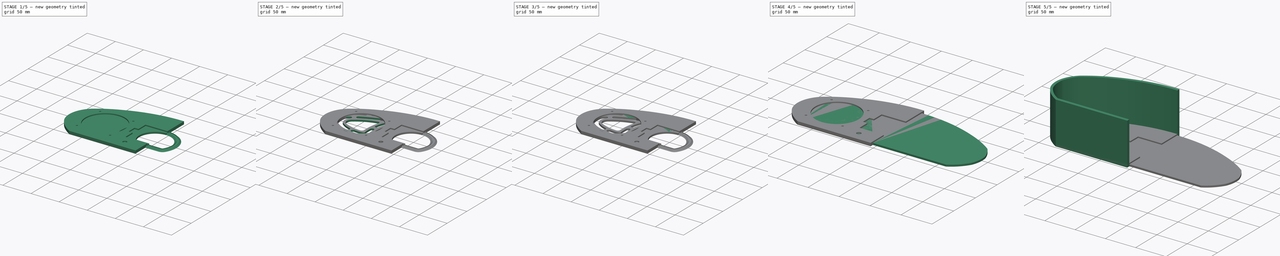
[diagram: build sequence overview — one tinted view per stage of 5, left to right]
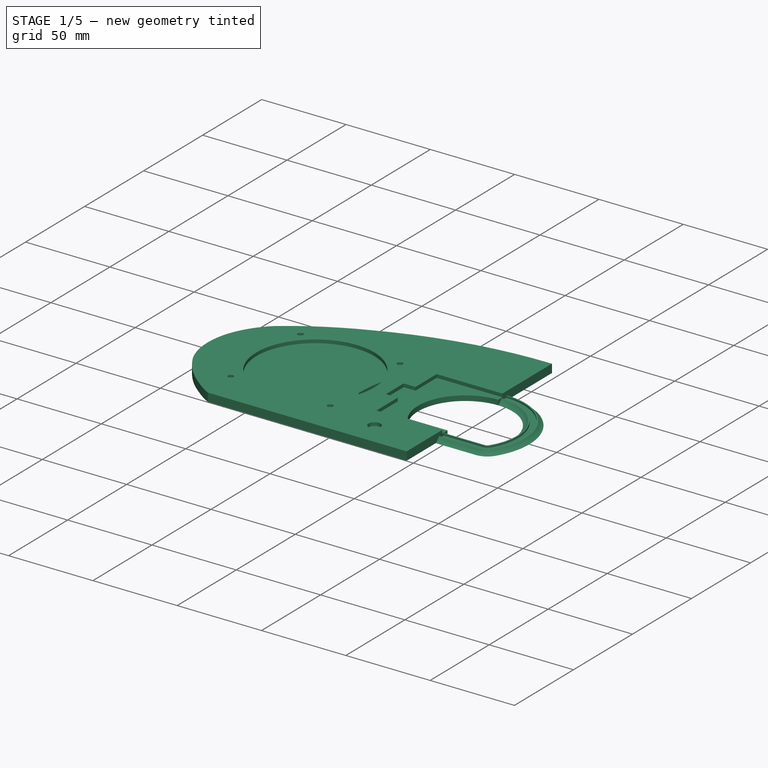
[diagram: stage 1 of 5 — iso view after this stage's code; geometry added in this stage tinted green]
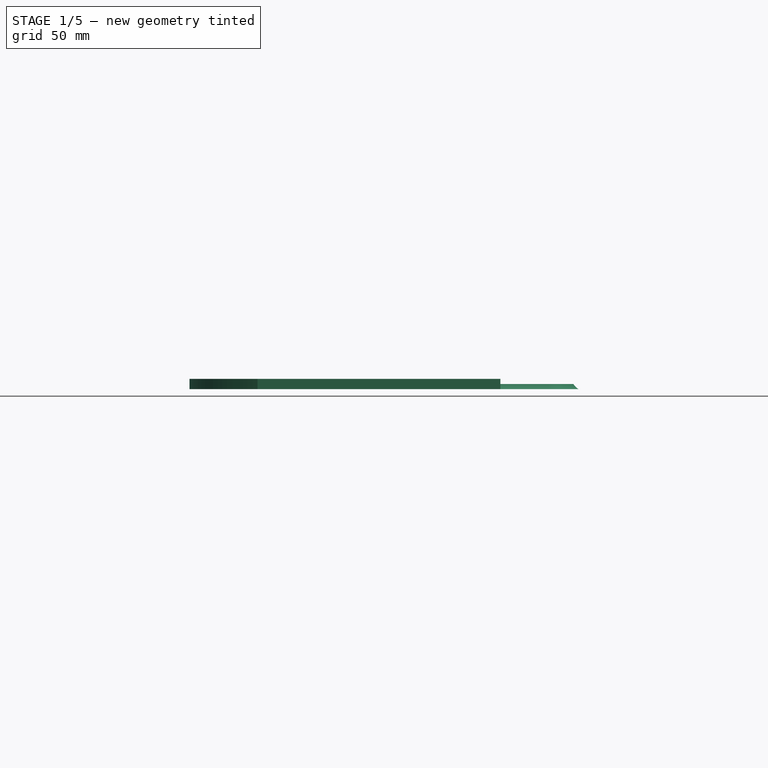
[diagram: stage 1 of 5 — front view after this stage's code; geometry added in this stage tinted green]
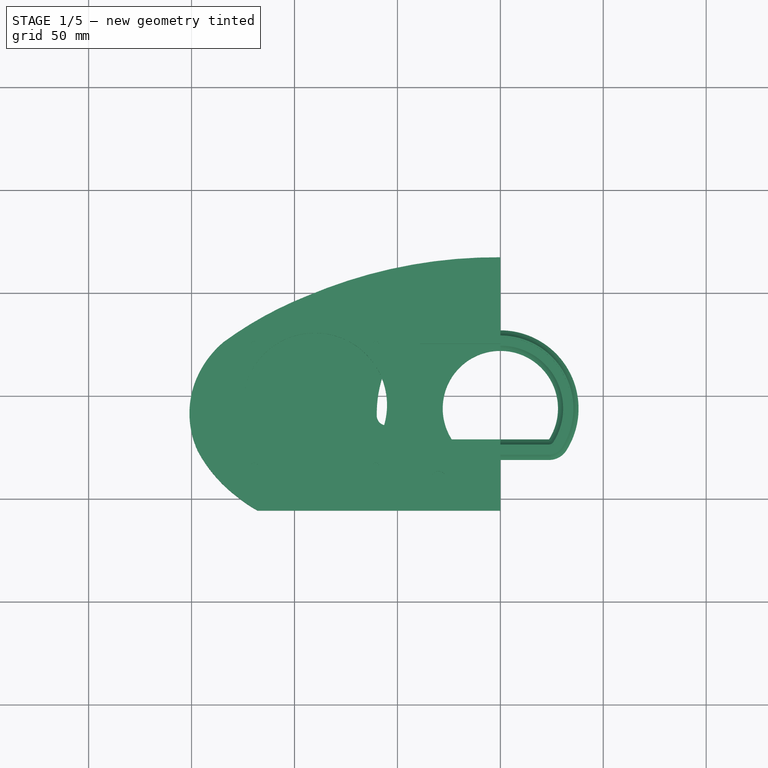
[diagram: stage 1 of 5 — top view after this stage's code; geometry added in this stage tinted green]
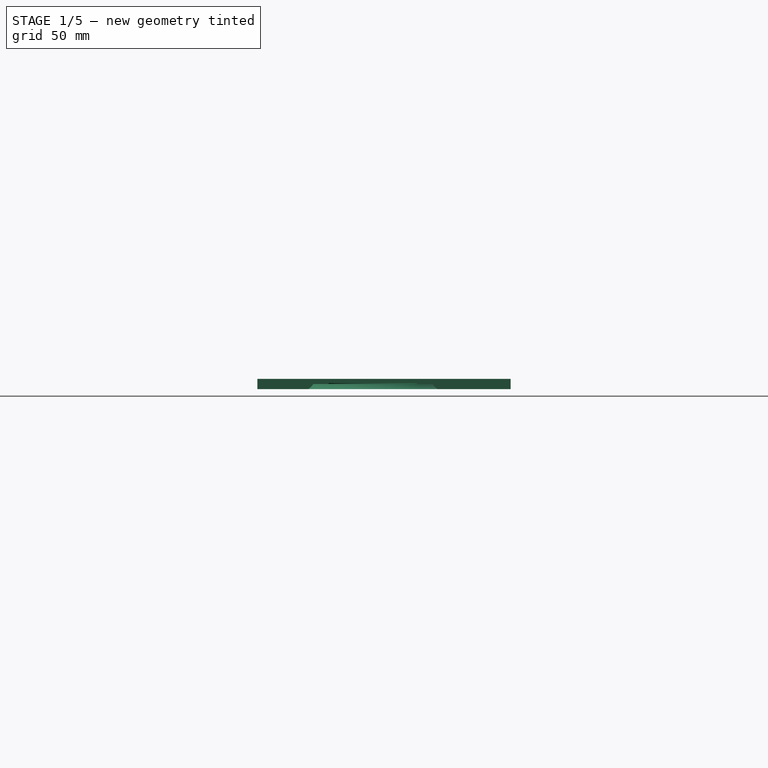
[diagram: stage 1 of 5 — right view after this stage's code; geometry added in this stage tinted green]
FCSTD DOCUMENT  (FreeCAD 0.17R13541 (Git))
Label: rubis_korpus
License: All rights reserved
LicenseURL: http://en.wikipedia.org/wiki/All_rights_reserved
objects: Sketcher::SketchObject×64, PartDesign::Pocket×31, PartDesign::Body×11, PartDesign::Pad×10, App::Part×6, Part::Feature×2, Image::ImagePlane×1, PartDesign::AdditivePipe×1
note: 161 computed .brp shape members not serialized (recipe doc carries the construction recipe); baked Part::Feature solids carry a one-line shape summary decoded from their .brp

FEATURE [Part::Feature] Pocket001  label="Rahmen"
  shape: bbox 151 x 123.1 x 70 mm, 18 faces (baked)
FEATURE [PartDesign::Body] PocketBody  label="Korpus_links"
  Group = -> [Sketch,Pad,Sketch005,Pocket]
  Origin = -> Origin001
  Tip = -> Pocket
FEATURE [Sketcher::SketchObject] Sketch008  label="Umriss001"
  MapMode = 5
  Support = -> [XY_Plane003]
  sketch-geometry (8):
    g0: LineSegment StartX=0 StartY=67.42 StartZ=0 EndX=0 EndY=-55.65 EndZ=0
    g1: LineSegment StartX=0 StartY=-55.65 StartZ=0 EndX=-117.94 EndY=-55.65 EndZ=0
    g2: ArcOfCircle CenterX=-1.71052 CenterY=-168.144 CenterZ=0 NormalX=0 NormalY=0 NormalZ=1 AngleXU=0 Radius=235.57 StartAngle=1.56354 EndAngle=1.97395
    g3: ArcOfCircle CenterX=-26.6546 CenterY=-121.039 CenterZ=0 NormalX=0 NormalY=0 NormalZ=1 AngleXU=0 Radius=182.51 StartAngle=1.94949 EndAngle=2.20297
    g4: ArcOfCircle CenterX=-103.63 CenterY=-10.3082 CenterZ=0 NormalX=0 NormalY=0 NormalZ=1 AngleXU=0 Radius=47.81 StartAngle=2.27271 EndAngle=2.7915
    g5: ArcOfCircle CenterX=-107.652 CenterY=-8.39999 CenterZ=0 NormalX=0 NormalY=0 NormalZ=1 AngleXU=0 Radius=43.38 StartAngle=2.80102 EndAngle=3.57886
    g6: ArcOfCircle CenterX=-87.015 CenterY=5.5205 CenterZ=0 NormalX=0 NormalY=0 NormalZ=1 AngleXU=0 Radius=68.08 StartAngle=3.63576 EndAngle=4.07298
    g7: ArcOfCircle CenterX=-88.8574 CenterY=-2.05184 CenterZ=0 NormalX=0 NormalY=0 NormalZ=1 AngleXU=0 Radius=60.98 StartAngle=4.0231 EndAngle=4.21524
  constraints (30):
    c: PointOnObject(g0,g-2)
    c: PointOnObject(g0,g-2)
    c: DistanceY(g0,g0) = 123.07
    c: DistanceY(g-1,g0) = 67.42
    c: Coincident(g1,g0)
    c: Horizontal(g1)
    c: DistanceX(g1,g1) = 117.94
    c: Coincident(g2,g0)
    c: Coincident(g4,g3)
    c: Coincident(g6,g5)
    c: Coincident(g7,g6)
    c: Coincident(g7,g1)
    c: Radius(g2) = 235.57
    c: Radius(g3) = 182.51
    c: Radius(g4) = 47.81
    c: Radius(g5) = 43.38
    c: Radius(g6) = 68.08
    c: Radius(g7) = 60.98
    c: DistanceX(g2,g-1) = 94.13
    c: DistanceX(g3,g-1) = 134.5
    c: DistanceX(g4,g-1) = 148.54
    c: DistanceX(g5,g-1) = 146.95
    c: DistanceX(g6) = -127.64
    c: DistanceY(g6,g-1) = 49.11
    c: DistanceY(g5,g-1) = 26.77
    c: DistanceY(g-1,g5) = 6.09
    c: DistanceY(g-1,g3) = 26.2
    c: DistanceY(g-1,g2) = 48.54
    c: Coincident(g3,g2)
    c: Coincident(g4,g5)
FEATURE [PartDesign::Pad] Pad001
  Length = 5
  Length2 = 100
  Profile = -> Sketch008
  Type = 0
FEATURE [Sketcher::SketchObject] Sketch009
  MapMode = 5
  Placement = pos=(0,0,5) rot=(0,0,1;0rad)
  Support = -> [Pad001]
  sketch-geometry (7):
    g0: Circle CenterX=-90.05 CenterY=-4.36 CenterZ=0 NormalX=0 NormalY=0 NormalZ=1 AngleXU=0 Radius=35
    g1: LineSegment [constr] StartX=-119.572 StartY=-33.8817 StartZ=0 EndX=-60.5283 EndY=25.1617 EndZ=0
    g2: LineSegment [constr] StartX=-119.572 StartY=25.1617 StartZ=0 EndX=-60.5283 EndY=-33.8817 EndZ=0
    g3: Circle CenterX=-119.572 CenterY=25.1617 CenterZ=0 NormalX=0 NormalY=0 NormalZ=1 AngleXU=0 Radius=1.6
    g4: Circle CenterX=-119.572 CenterY=-33.8817 CenterZ=0 NormalX=0 NormalY=0 NormalZ=1 AngleXU=0 Radius=1.6
    g5: Circle CenterX=-60.5283 CenterY=-33.8817 CenterZ=0 NormalX=0 NormalY=0 NormalZ=1 AngleXU=0 Radius=1.6
    g6: Circle CenterX=-60.5283 CenterY=25.1617 CenterZ=0 NormalX=0 NormalY=0 NormalZ=1 AngleXU=0 Radius=1.6
  constraints (19):
    c: Radius(g0) = 35
    c: DistanceY(g0) = -4.36
    c: DistanceX(g0) = -90.05
    c: PointOnObject(g0,g1)
    c: Distance(g1) = 83.5
    c: Distance(g1,g0) = 41.75
    c: PointOnObject(g0,g2)
    c: Distance(g2) = 83.5
    c: Distance(g2,g0) = 41.75
    c: Angle(g2,g1) = 1.5708
    c: Angle(g1,g-1) = 2.35619
    c: Coincident(g3,g2)
    c: Coincident(g4,g1)
    c: Coincident(g5,g2)
    c: Coincident(g6,g1)
    c: Equal(g3,g4)
    c: Equal(g4,g5)
    c: Equal(g5,g6)
    c: Radius(g3) = 1.6
FEATURE [PartDesign::Pocket] Pocket002
  BaseFeature = -> Pad001
  Length = 5
  Length2 = 100
  Profile = -> Sketch009
  Type = 1
FEATURE [Sketcher::SketchObject] Sketch010
  MapMode = 5
  Placement = pos=(0,0,5) rot=(0,0,1;0rad)
  Support = -> [Pocket002]
  sketch-geometry (11):
    g0: LineSegment StartX=0 StartY=25.5 StartZ=0 EndX=-30.35 EndY=25.5 EndZ=0
    g1: LineSegment StartX=-30.35 StartY=25.5 StartZ=0 EndX=-30.35 EndY=18.5 EndZ=0
    g2: LineSegment StartX=-30.35 StartY=18.5 StartZ=0 EndX=-38.25 EndY=18.5 EndZ=0
    g3: LineSegment StartX=-38.25 StartY=18.5 StartZ=0 EndX=-38.25 EndY=-18.5 EndZ=0
    g4: LineSegment StartX=-38.25 StartY=-18.5 StartZ=0 EndX=-30.35 EndY=-18.5 EndZ=0
    g5: LineSegment StartX=-30.35 StartY=-18.5 StartZ=0 EndX=-30.35 EndY=-25.5 EndZ=0
    g6: LineSegment StartX=-30.35 StartY=-25.5 StartZ=0 EndX=0 EndY=-25.5 EndZ=0
    g7: LineSegment StartX=0 StartY=25.5 StartZ=0 EndX=0 EndY=-25.5 EndZ=0
    g8: Circle CenterX=-30 CenterY=-40 CenterZ=0 NormalX=0 NormalY=0 NormalZ=1 AngleXU=0 Radius=3.5
    g9: Circle CenterX=-35.05 CenterY=21.8 CenterZ=0 NormalX=0 NormalY=0 NormalZ=1 AngleXU=0 Radius=1.7
    g10: Circle CenterX=-35.05 CenterY=-21.8 CenterZ=0 NormalX=0 NormalY=0 NormalZ=1 AngleXU=0 Radius=1.7
  constraints (34):
    c: PointOnObject(g0,g-2)
    c: Horizontal(g0)
    c: Coincident(g0,g1)
    c: Vertical(g1)
    c: Coincident(g1,g2)
    c: Horizontal(g2)
    c: Coincident(g2,g3)
    c: Vertical(g3)
    c: Coincident(g3,g4)
    c: Horizontal(g4)
    c: Coincident(g4,g5)
    c: Vertical(g5)
    c: Coincident(g5,g6)
    c: PointOnObject(g6,g-2)
    c: Horizontal(g6)
    c: Equal(g0,g6)
    c: Equal(g1,g5)
    c: Equal(g2,g4)
    c: Symmetric(g2,g3,g-1)
    c: DistanceY(g1,g1) = 7
    c: DistanceY(g3,g3) = 37
    c: DistanceX(g6,g6) = 30.35
    c: DistanceX(g4,g4) = 7.9
    c: PointOnObject(g7,g-2)
    c: Coincident(g7,g6)
    c: Coincident(g7,g0)
    c: DistanceY(g8) = -40
    c: DistanceX(g8) = -30
    c: Radius(g8) = 3.5
    c: Symmetric(g10,g9,g-1)
    c: DistanceY(g10,g9) = 43.6
    c: Equal(g9,g10)
    c: Radius(g9) = 1.7
    c: DistanceX(g10,g-1) = 35.05
FEATURE [PartDesign::Pocket] Pocket003
  BaseFeature = -> Pocket002
  Length = 5
  Length2 = 100
  Profile = -> Sketch010
  Type = 1
FEATURE [Sketcher::SketchObject] Sketch023
  MapMode = 5
  Support = -> [XY_Plane004]
  sketch-geometry (1):
    g0: Circle CenterX=-30 CenterY=-40 CenterZ=0 NormalX=0 NormalY=0 NormalZ=1 AngleXU=0 Radius=3.5
  constraints (3):
    c: Radius(g0) = 3.5
    c: DistanceY(g0) = -40
    c: DistanceX(g0) = -30
FEATURE [Sketcher::SketchObject] CopySketch023  label="CopySketch024"
  Placement = pos=(0,0,3) rot=(0,0,1;0rad)
  sketch-geometry (1):
    g0: Circle CenterX=-30 CenterY=-40 CenterZ=0 NormalX=0 NormalY=0 NormalZ=1 AngleXU=0 Radius=3.5
  constraints (3):
    c: Radius(g0) = 3.5
    c: DistanceY(g0) = -40
    c: DistanceX(g0) = -30
FEATURE [Sketcher::SketchObject] CopySketch021002
  Placement = pos=(0,0,3) rot=(0,0,1;0rad)
  sketch-geometry (7):
    g0: ArcOfCircle CenterX=0 CenterY=-6 CenterZ=0 NormalX=0 NormalY=0 NormalZ=1 AngleXU=0 Radius=28 StartAngle=1.5708 EndAngle=3.70695
    g1: LineSegment StartX=-23.6432 StartY=-21 StartZ=0 EndX=0 EndY=-21 EndZ=0
    g2: LineSegment StartX=0 StartY=-21 StartZ=0 EndX=0 EndY=22 EndZ=0
    g3: ArcOfCircle CenterX=-49.55 CenterY=15.44 CenterZ=0 NormalX=0 NormalY=0 NormalZ=1 AngleXU=0 Radius=4.8 StartAngle=5.86712 EndAngle=8.92032
    g4: ArcOfCircle CenterX=-55.25 CenterY=-9.46 CenterZ=0 NormalX=0 NormalY=0 NormalZ=1 AngleXU=0 Radius=4.8 StartAngle=3.25643 EndAngle=6.20811
    g5: ArcOfCircle CenterX=-2.8775 CenterY=-8.38 CenterZ=0 NormalX=0 NormalY=0 NormalZ=1 AngleXU=0 Radius=47.6078 StartAngle=2.66406 EndAngle=3.17184
    g6: ArcOfCircle CenterX=-2.39812 CenterY=-8.42 CenterZ=0 NormalX=0 NormalY=0 NormalZ=1 AngleXU=0 Radius=57.6422 StartAngle=2.67014 EndAngle=3.16918
  constraints (26):
    c: PointOnObject(g0,g-2)
    c: PointOnObject(g0,g-2)
    c: Radius(g0) = 28
    c: DistanceY(g0,g-1) = 6
    c: Coincident(g1,g0)
    c: PointOnObject(g1,g-2)
    c: Horizontal(g1)
    c: Coincident(g2,g1)
    c: Coincident(g2,g0)
    c: DistanceY(g0,g-1) = 21
    c: Coincident(g5,g4)
    c: Coincident(g5,g3)
    c: Coincident(g6,g4)
    c: Radius(g4) = 4.8
    c: Equal(g4,g3)
    c: Coincident(g6,g3)
    c: DistanceX(g4,g-1) = 55.25
    c: DistanceX(g3,g-1) = 49.55
    c: DistanceY(g-1,g3) = 15.44
    c: DistanceY(g4,g-1) = 9.46
    c: DistanceY(g4,g-1) = 9.82
    c: DistanceY(g4,g-1) = 10.01
    c: DistanceY(g-1,g3) = 13.5
    c: DistanceY(g-1,g3) = 17.76
    c: DistanceY(g5,g-1) = 8.38
    c: DistanceY(g6,g-1) = 8.42
FEATURE [Sketcher::SketchObject] CopySketch021003
  Placement = pos=(0,0,3) rot=(0,0,1;0rad)
  sketch-geometry (10):
    g0: ArcOfCircle CenterX=-53.7319 CenterY=-24.0351 CenterZ=0 NormalX=0 NormalY=0 NormalZ=1 AngleXU=0 Radius=4.54509 StartAngle=0.338057 EndAngle=3.34373
    g1: ArcOfCircle CenterX=-99.3617 CenterY=-39.3022 CenterZ=0 NormalX=0 NormalY=0 NormalZ=1 AngleXU=0 Radius=4.54284 StartAngle=1.24728 EndAngle=4.6508
    g2: ArcOfCircle CenterX=-53.1018 CenterY=-33.9581 CenterZ=0 NormalX=0 NormalY=0 NormalZ=1 AngleXU=0 Radius=7.72564 StartAngle=5.30446 EndAngle=6.35591
    g3: ArcOfCircle CenterX=-60.3202 CenterY=-31.6979 CenterZ=0 NormalX=0 NormalY=0 NormalZ=1 AngleXU=0 Radius=3.75897 StartAngle=4.76422 EndAngle=6.7949
    g4: ArcOfCircle CenterX=-66.9139 CenterY=-12.7775 CenterZ=0 NormalX=0 NormalY=0 NormalZ=1 AngleXU=0 Radius=33.0112 StartAngle=4.79044 EndAngle=5.29357
    g5: ArcOfCircle CenterX=-73.7118 CenterY=113.059 CenterZ=0 NormalX=0 NormalY=0 NormalZ=1 AngleXU=0 Radius=159.024 StartAngle=4.5486 EndAngle=4.77136
    g6: LineSegment StartX=-57.0427 StartY=-29.8572 StartZ=0 EndX=-58.1844 EndY=-24.9476 EndZ=0
    g7: LineSegment StartX=-49.4441 StartY=-22.5277 StartZ=0 EndX=-45.3966 EndY=-33.3967 EndZ=0
    g8: ArcOfCircle CenterX=-74.7228 CenterY=24.5867 CenterZ=0 NormalX=0 NormalY=0 NormalZ=1 AngleXU=0 Radius=61.7876 StartAngle=4.61958 EndAngle=4.9509
    g9: LineSegment StartX=-97.9175 StartY=-34.995 StartZ=0 EndX=-80.4488 EndY=-36.935 EndZ=0
  constraints (37):
    c: Coincident(g4,g2)
    c: Coincident(g5,g1)
    c: Coincident(g5,g4)
    c: Coincident(g6,g3)
    c: Coincident(g6,g0)
    c: Coincident(g7,g0)
    c: Coincident(g7,g2)
    c: Coincident(g8,g3)
    c: Coincident(g9,g1)
    c: Coincident(g9,g8)
    c: Radius(g0) = 4.54509
    c: Radius(g1) = 4.54284
    c: Radius(g2) = 7.72564
    c: Radius(g3) = 3.75897
    c: Radius(g4) = 33.0112
    c: Radius(g5) = 159.024
    c: Radius(g8) = 61.7876
    c: DistanceY(g0,g-1) = 24.0351
    c: DistanceX(g0,g-1) = 53.7319
    c: DistanceY(g0,g-1) = 22.5277
    c: DistanceY(g0,g-1) = 24.9476
    c: DistanceY(g3,g-1) = 29.8572
    c: DistanceX(g3,g-1) = 57.0427
    c: DistanceY(g2,g-1) = 33.3967
    c: DistanceX(g2,g-1) = 45.3966
    c: DistanceY(g2) = -40.3687
    c: DistanceX(g2) = -48.7903
    c: DistanceY(g3) = -35.4518
    c: DistanceX(g3) = -60.1254
    c: DistanceX(g4) = -64.34
    c: DistanceY(g4) = -45.6882
    c: DistanceY(g1) = -34.995
    c: DistanceX(g1) = -97.9175
    c: DistanceY(g1) = -43.8364
    c: DistanceX(g1) = -99.6413
    c: DistanceY(g8) = -36.935
    c: DistanceX(g8) = -80.4488
FEATURE [Sketcher::SketchObject] CopySketch021004  label="CopySketch021010"
  Placement = pos=(0,0,3) rot=(0,0,1;0rad)
  sketch-geometry (8):
    g0: ArcOfCircle CenterX=-52.28 CenterY=33.51 CenterZ=0 NormalX=0 NormalY=0 NormalZ=1 AngleXU=0 Radius=2.83 StartAngle=5.49536 EndAngle=7.82271
    g1: ArcOfCircle CenterX=-107.47 CenterY=13.9 CenterZ=0 NormalX=0 NormalY=0 NormalZ=1 AngleXU=0 Radius=3.2 StartAngle=2.12748 EndAngle=5.14289
    g2: ArcOfCircle CenterX=-67.12 CenterY=3 CenterZ=0 NormalX=0 NormalY=0 NormalZ=1 AngleXU=0 Radius=2.89 StartAngle=2.84914 EndAngle=6.14599
    g3: ArcOfCircle CenterX=-63.7744 CenterY=25.47 CenterZ=0 NormalX=0 NormalY=0 NormalZ=1 AngleXU=0 Radius=1.27 StartAngle=5.61181 EndAngle=8.37132
    g4: ArcOfCircle CenterX=-6.55 CenterY=-7.47 CenterZ=0 NormalX=0 NormalY=0 NormalZ=1 AngleXU=0 Radius=58.58 StartAngle=2.41368 EndAngle=2.96875
    g5: ArcOfCircle CenterX=-5.95 CenterY=-6.33 CenterZ=0 NormalX=0 NormalY=0 NormalZ=1 AngleXU=0 Radius=64.74 StartAngle=2.64209 EndAngle=2.98396
    g6: ArcOfCircle CenterX=-13.62 CenterY=-173.11 CenterZ=0 NormalX=0 NormalY=0 NormalZ=1 AngleXU=0 Radius=206.04 StartAngle=1.81983 EndAngle=2.03646
    g7: ArcOfCircle CenterX=-6.49 CenterY=-187.82 CenterZ=0 NormalX=0 NormalY=0 NormalZ=1 AngleXU=0 Radius=228.77 StartAngle=1.77192 EndAngle=2.03621
  constraints (32):
    c: Coincident(g4,g0)
    c: Coincident(g4,g2)
    c: Coincident(g5,g3)
    c: Coincident(g5,g2)
    c: Coincident(g6,g3)
    c: Coincident(g6,g1)
    c: Coincident(g7,g1)
    c: Coincident(g7,g0)
    c: Radius(g0) = 2.83
    c: Radius(g7) = 228.77
    c: Radius(g4) = 58.58
    c: Radius(g2) = 2.89
    c: Radius(g5) = 64.74
    c: Radius(g3) = 1.27
    c: Radius(g6) = 206.04
    c: Radius(g1) = 3.2
    c: DistanceY(g0) = 33.51
    c: DistanceX(g0) = -52.28
    c: DistanceY(g5) = -6.33
    c: DistanceX(g5) = -5.95
    c: DistanceY(g4) = -7.47
    c: DistanceX(g4) = -6.55
    c: DistanceX(g2) = -67.12
    c: DistanceY(g2) = 3
    c: DistanceY(g3) = 25.47
    c: DistanceY(g1) = 13.9
    c: DistanceX(g1) = -107.47
    c: DistanceY(g6) = -173.11
    c: DistanceX(g6) = -13.62
    c: DistanceY(g7) = -187.82
    c: DistanceX(g7) = -6.49
    c: DistanceX(g3) = -62.78
FEATURE [Sketcher::SketchObject] Sketch024  label="Umriss005"
  MapMode = 5
  Support = -> [XY_Plane011]
  sketch-geometry (8):
    g0: LineSegment StartX=0 StartY=67.42 StartZ=0 EndX=0 EndY=-55.65 EndZ=0
    g1: LineSegment StartX=0 StartY=-55.65 StartZ=0 EndX=-117.94 EndY=-55.65 EndZ=0
    g2: ArcOfCircle CenterX=-1.71052 CenterY=-168.144 CenterZ=0 NormalX=0 NormalY=0 NormalZ=1 AngleXU=0 Radius=235.57 StartAngle=1.56354 EndAngle=1.97395
    g3: ArcOfCircle CenterX=-26.6546 CenterY=-121.039 CenterZ=0 NormalX=0 NormalY=0 NormalZ=1 AngleXU=0 Radius=182.51 StartAngle=1.94949 EndAngle=2.20297
    g4: ArcOfCircle CenterX=-103.63 CenterY=-10.3082 CenterZ=0 NormalX=0 NormalY=0 NormalZ=1 AngleXU=0 Radius=47.81 StartAngle=2.27271 EndAngle=2.7915
    g5: ArcOfCircle CenterX=-107.652 CenterY=-8.39999 CenterZ=0 NormalX=0 NormalY=0 NormalZ=1 AngleXU=0 Radius=43.38 StartAngle=2.80102 EndAngle=3.57886
    g6: ArcOfCircle CenterX=-87.015 CenterY=5.5205 CenterZ=0 NormalX=0 NormalY=0 NormalZ=1 AngleXU=0 Radius=68.08 StartAngle=3.63576 EndAngle=4.07298
    g7: ArcOfCircle CenterX=-88.8574 CenterY=-2.05184 CenterZ=0 NormalX=0 NormalY=0 NormalZ=1 AngleXU=0 Radius=60.98 StartAngle=4.0231 EndAngle=4.21524
  constraints (30):
    c: PointOnObject(g0,g-2)
    c: PointOnObject(g0,g-2)
    c: DistanceY(g0,g0) = 123.07
    c: DistanceY(g-1,g0) = 67.42
    c: Coincident(g1,g0)
    c: Horizontal(g1)
    c: DistanceX(g1,g1) = 117.94
    c: Coincident(g2,g0)
    c: Coincident(g4,g3)
    c: Coincident(g6,g5)
    c: Coincident(g7,g6)
    c: Coincident(g7,g1)
    c: Radius(g2) = 235.57
    c: Radius(g3) = 182.51
    c: Radius(g4) = 47.81
    c: Radius(g5) = 43.38
    c: Radius(g6) = 68.08
    c: Radius(g7) = 60.98
    c: DistanceX(g2,g-1) = 94.13
    c: DistanceX(g3,g-1) = 134.5
    c: DistanceX(g4,g-1) = 148.54
    c: DistanceX(g5,g-1) = 146.95
    c: DistanceX(g6) = -127.64
    c: DistanceY(g6,g-1) = 49.11
    c: DistanceY(g5,g-1) = 26.77
    c: DistanceY(g-1,g5) = 6.09
    c: DistanceY(g-1,g3) = 26.2
    c: DistanceY(g-1,g2) = 48.54
    c: Coincident(g3,g2)
    c: Coincident(g4,g5)
FEATURE [PartDesign::Pad] Pad005
  Length = 3
  Length2 = 100
  Profile = -> Sketch024
  Type = 0
FEATURE [PartDesign::Pocket] Pocket017
  BaseFeature = -> Pad005
  Length = 5
  Length2 = 100
  Profile = -> CopySketch021002
  Type = 1
FEATURE [PartDesign::Body] Body002  label="Front_rechts"
  Group = -> [Pad002,Sketch015,Pocket005,Sketch013,Pocket004,Sketch025,Pocket027]
  Origin = -> Origin005
  Placement = pos=(0,0,2) rot=(0,1,0;3.14159rad)
  Tip = -> Pocket027
FEATURE [Sketcher::SketchObject] Sketch026
  MapMode = 5
  Support = -> [XY_Plane003]
  sketch-geometry (4):
    g0: LineSegment StartX=0 StartY=25.5 StartZ=0 EndX=-39 EndY=25.5 EndZ=0
    g1: LineSegment StartX=-39 StartY=25.5 StartZ=0 EndX=-39 EndY=-25.5 EndZ=0
    g2: LineSegment StartX=-39 StartY=-25.5 StartZ=0 EndX=0 EndY=-25.5 EndZ=0
    g3: LineSegment StartX=0 StartY=-25.5 StartZ=0 EndX=0 EndY=25.5 EndZ=0
  constraints (12):
    c: Coincident(g0,g1)
    c: Coincident(g1,g2)
    c: Coincident(g2,g3)
    c: Coincident(g3,g0)
    c: Horizontal(g0)
    c: Horizontal(g2)
    c: Vertical(g1)
    c: Vertical(g3)
    c: PointOnObject(g0,g-2)
    c: Symmetric(g2,g0,g-1)
    c: DistanceY(g3,g3) = 51
    c: DistanceX(g2,g2) = 39
FEATURE [Sketcher::SketchObject] CopySketch026
  Placement = pos=(0,0,10) rot=(0,0,1;0rad)
  sketch-geometry (4):
    g0: LineSegment StartX=0 StartY=25.5 StartZ=0 EndX=-39 EndY=25.5 EndZ=0
    g1: LineSegment StartX=-39 StartY=25.5 StartZ=0 EndX=-39 EndY=-25.5 EndZ=0
    g2: LineSegment StartX=-39 StartY=-25.5 StartZ=0 EndX=0 EndY=-25.5 EndZ=0
    g3: LineSegment StartX=0 StartY=-25.5 StartZ=0 EndX=0 EndY=25.5 EndZ=0
  constraints (12):
    c: Coincident(g0,g1)
    c: Coincident(g1,g2)
    c: Coincident(g2,g3)
    c: Coincident(g3,g0)
    c: Horizontal(g0)
    c: Horizontal(g2)
    c: Vertical(g1)
    c: Vertical(g3)
    c: PointOnObject(g0,g-2)
    c: Symmetric(g2,g0,g-1)
    c: DistanceY(g3,g3) = 51
    c: DistanceX(g2,g2) = 39
FEATURE [PartDesign::Pocket] Pocket029
  BaseFeature = -> Pocket003
  Length = 7.5
  Length2 = 100
  Profile = -> CopySketch026
  Type = 0
FEATURE [PartDesign::Body] Body004  label="Blende_rechts"
  Group = -> [Pad005,Pocket017,Pocket018,Pocket020,Pocket024,Pocket022,Pocket023,Pocket019,Pocket025,Pocket021,Pocket034]
  Origin = -> Origin008
  Placement = pos=(0,0,86) rot=(0,1,0;3.14159rad)
  Tip = -> Pocket034
FEATURE [App::Part] Part002  label="Frontblende"
  Group = -> [Sketch001,Sketch002,Sketch003,Body003,Sketch012,CopySketch001,CopySketch002,CopySketch003,Sketch018,Sketch019,Sketch020,CopySketch018,CopySketch019,CopySketch020,Sketch021,CopySketch021,Sketch022,CopySketch021001,CopySketch022,Sketch023,CopySketch023,Body004,CopyCopySketch023,CopyCopyCopySketch023]
  License = CC BY 3.0
  LicenseURL = http://creativecommons.org/licenses/by/3.0/
  Origin = -> Origin003
  Placement = pos=(0,0,-5) rot=(0,0,1;0rad)
FEATURE [Sketcher::SketchObject] Sketch034
  MapMode = 5
  Placement = pos=(0,0,5) rot=(0,0,1;0rad)
  Support = -> [Pocket029]
  sketch-geometry (4):
    g0: LineSegment StartX=-38 StartY=7.5 StartZ=0 EndX=-46 EndY=7.5 EndZ=0
    g1: LineSegment StartX=-46 StartY=7.5 StartZ=0 EndX=-46 EndY=-7.5 EndZ=0
    g2: LineSegment StartX=-46 StartY=-7.5 StartZ=0 EndX=-38 EndY=-7.5 EndZ=0
    g3: LineSegment StartX=-38 StartY=-7.5 StartZ=0 EndX=-38 EndY=7.5 EndZ=0
  constraints (12):
    c: Coincident(g0,g1)
    c: Coincident(g1,g2)
    c: Coincident(g2,g3)
    c: Coincident(g3,g0)
    c: Horizontal(g0)
    c: Horizontal(g2)
    c: Vertical(g1)
    c: Vertical(g3)
    c: Symmetric(g0,g2,g-1)
    c: DistanceX(g0,g0) = 8
    c: DistanceX(g2,g-1) = 38
    c: DistanceY(g1,g1) = 15
FEATURE [PartDesign::Pocket] Pocket035
  BaseFeature = -> Pocket029
  Length = 5
  Length2 = 100
  Profile = -> Sketch034
  Type = 1
FEATURE [PartDesign::Body] Body001  label="Front_links"
  Group = -> [Pad001,Sketch009,Pocket002,Sketch010,Pocket003,Pocket029,CopySketch033,CopySketch033001,Sketch034,Pocket035]
  Origin = -> Origin004
  Placement = pos=(0,0,-3) rot=(0,0,1;0rad)
  Tip = -> Pocket035
FEATURE [App::Part] Part001  label="Frontplatte"
  Group = -> [Body001,Sketch008,Body002,Sketch026,CopySketch026,CopySketch033002,CopySketch033003,CopySketch033004,CopySketch033005,CopySketch033006,CopySketch033007]
  License = CC BY 3.0
  LicenseURL = http://creativecommons.org/licenses/by/3.0/
  Origin = -> Origin002
  Placement = pos=(0,0,73) rot=(0,0,1;0rad)
FEATURE [Sketcher::SketchObject] Sketch035  label="Pfad"
  MapMode = 5
  Support = -> [XY_Plane022]
  sketch-geometry (2):
    g0: ArcOfCircle CenterX=0 CenterY=-6 CenterZ=0 NormalX=0 NormalY=0 NormalZ=1 AngleXU=0 Radius=28 StartAngle=5.71783 EndAngle=9.99013
    g1: LineSegment StartX=-23.6432 StartY=-21 StartZ=0 EndX=23.6432 EndY=-21 EndZ=0
  constraints (7):
    c: Coincident(g1,g0)
    c: Coincident(g1,g0)
    c: Horizontal(g1)
    c: Radius(g0) = 28
    c: DistanceY(g0,g-1) = 21
    c: PointOnObject(g0,g-2)
    c: DistanceY(g0) = -6
FEATURE [Sketcher::SketchObject] Sketch036  label="Profil"
  MapMode = 5
  Placement = pos=(0,0,0) rot=(0.57735,0.57735,0.57735;2.0944rad)
  Support = -> [YZ_Plane019]
  sketch-geometry (10):
    g0: ArcOfCircle CenterX=36.267 CenterY=6.76702 CenterZ=0 NormalX=0 NormalY=0 NormalZ=1 AngleXU=0 Radius=8 StartAngle=3.70418 EndAngle=4.1498
    g1: ArcOfCircle CenterX=17.733 CenterY=6.76702 CenterZ=0 NormalX=0 NormalY=0 NormalZ=1 AngleXU=0 Radius=8 StartAngle=5.27498 EndAngle=5.7206
    g2: LineSegment StartX=24.5 StartY=2.5 StartZ=0 EndX=25.25 EndY=2.5 EndZ=0
    g3: LineSegment StartX=29.5 StartY=2.5 StartZ=0 EndX=28.75 EndY=2.5 EndZ=0
    g4: LineSegment StartX=28.75 StartY=2.5 StartZ=0 EndX=28.75 EndY=1.5 EndZ=0
    g5: LineSegment StartX=28.75 StartY=1.5 StartZ=0 EndX=25.25 EndY=1.5 EndZ=0
    g6: LineSegment StartX=25.25 StartY=1.5 StartZ=0 EndX=25.25 EndY=2.5 EndZ=0
    g7: LineSegment StartX=22 StartY=0 StartZ=0 EndX=32 EndY=0 EndZ=0
    g8: LineSegment [constr] StartX=22 StartY=0 StartZ=0 EndX=24.5 EndY=2.5 EndZ=0
    g9: LineSegment [constr] StartX=29.5 StartY=2.5 StartZ=0 EndX=32 EndY=0 EndZ=0
  constraints (30):
    c: PointOnObject(g0,g-1)
    c: Radius(g0) = 8
    c: DistanceY(g0) = 2.5
    c: PointOnObject(g1,g-1)
    c: DistanceY(g1) = 2.5
    c: DistanceX(g1,g0) = 10
    c: DistanceX(g1,g0) = 5
    c: Coincident(g2,g1)
    c: Horizontal(g2)
    c: Coincident(g3,g0)
    c: Horizontal(g3)
    c: Coincident(g4,g3)
    c: Vertical(g4)
    c: Coincident(g5,g4)
    c: Horizontal(g5)
    c: Coincident(g6,g5)
    c: Coincident(g6,g2)
    c: Vertical(g6)
    c: Equal(g2,g3)
    c: DistanceX(g5,g5) = 3.5
    c: DistanceY(g6,g6) = 1
    c: Equal(g1,g0)
    c: Coincident(g7,g1)
    c: Coincident(g7,g0)
    c: Coincident(g8,g1)
    c: Coincident(g8,g1)
    c: Coincident(g9,g0)
    c: Coincident(g9,g0)
    c: Equal(g8,g9)
    c: DistanceX(g-1,g1) = 22
FEATURE [PartDesign::AdditivePipe] AdditivePipe
  AuxilleryCurvelinear = true
  AuxillerySpineTangent = false
  Binormal = (0,0,0)
  Mode = 0
  Placement = pos=(0,0,0) rot=(0.57735,0.57735,0.57735;2.0944rad)
  Profile = -> Sketch036
  Spine = -> Sketch035 [Edge1,Edge2]
  SpineTangent = false
  Transformation = 0
  Transition = 2
FEATURE [PartDesign::Body] Body007
  Group = -> [Sketch035,Sketch036,AdditivePipe]
  Origin = -> Origin018
  Placement = pos=(0,0,86) rot=(0,0,1;0rad)
  Tip = -> AdditivePipe
FEATURE [App::Part] Part005  label="Displayrahmen"
  Group = -> [Body007]
  License = CC BY 3.0
  LicenseURL = http://creativecommons.org/licenses/by/3.0/
  Origin = -> Origin017
  Placement = pos=(0,0,-5) rot=(0,0,1;0rad)
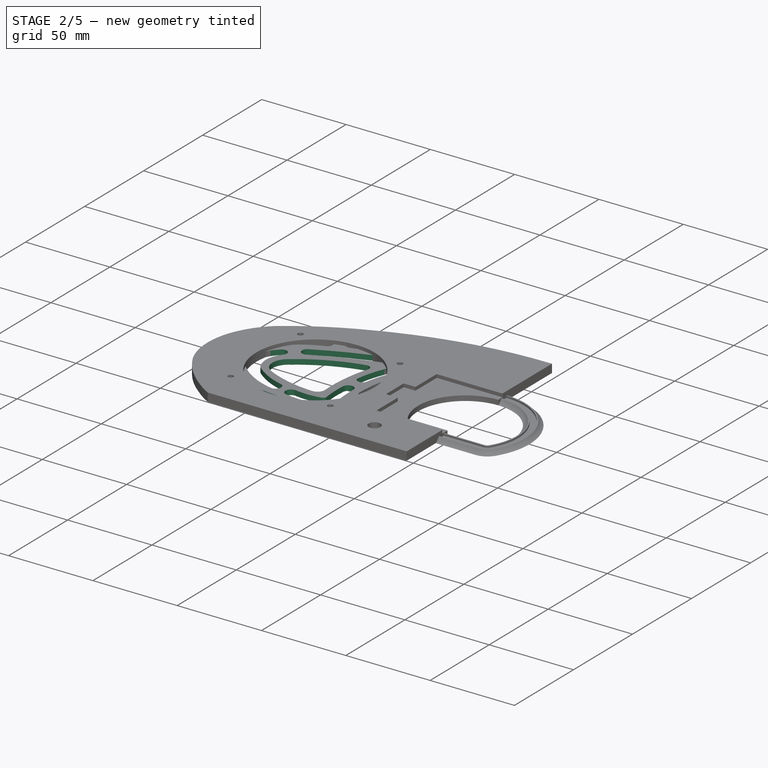
[diagram: stage 2 of 5 — iso view after this stage's code; geometry added in this stage tinted green]
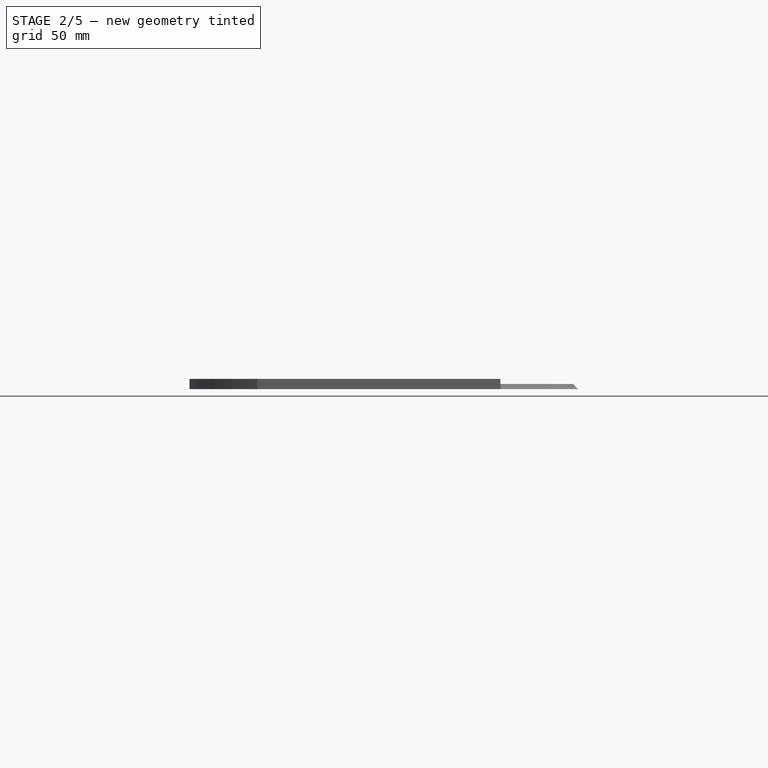
[diagram: stage 2 of 5 — front view after this stage's code; geometry added in this stage tinted green]
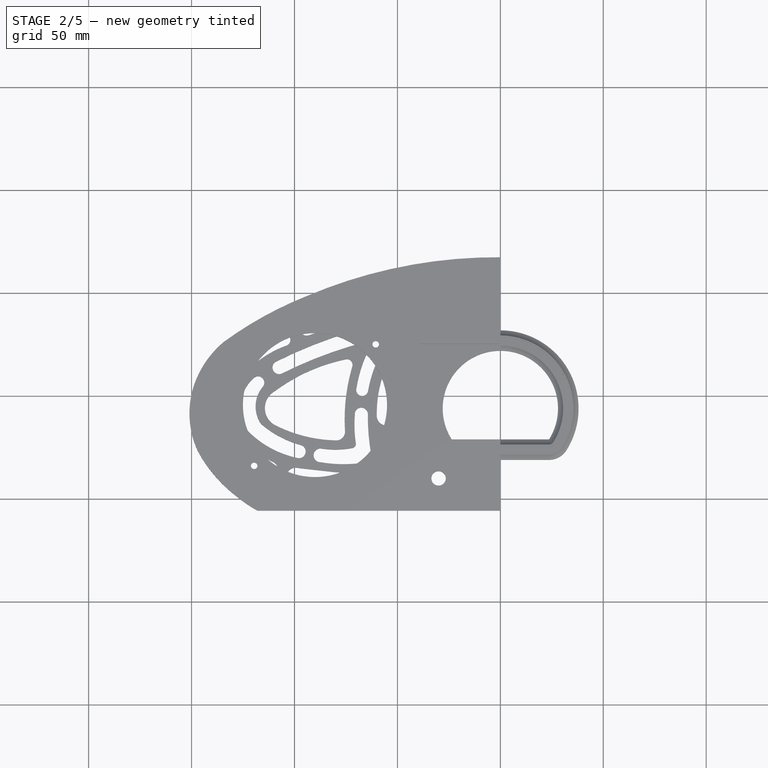
[diagram: stage 2 of 5 — top view after this stage's code; geometry added in this stage tinted green]
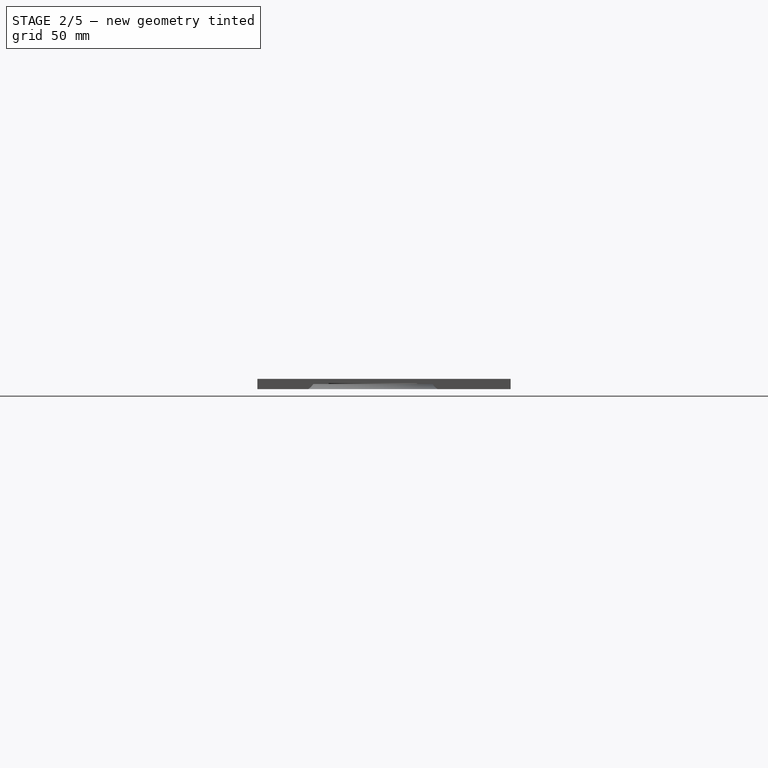
[diagram: stage 2 of 5 — right view after this stage's code; geometry added in this stage tinted green]
FEATURE [PartDesign::Pocket] Pocket018
  BaseFeature = -> Pocket017
  Length = 5
  Length2 = 100
  Profile = -> CopySketch021003
  Type = 1
FEATURE [Sketcher::SketchObject] CopySketch021005
  Placement = pos=(0,0,3) rot=(0,0,1;0rad)
  sketch-geometry (8):
    g0: ArcOfCircle CenterX=-67.5234 CenterY=-8.79407 CenterZ=0 NormalX=0 NormalY=0 NormalZ=1 AngleXU=0 Radius=3.16238 StartAngle=0.0526049 EndAngle=3.22772
    g1: ArcOfCircle CenterX=-87.3659 CenterY=-28.7831 CenterZ=0 NormalX=0 NormalY=0 NormalZ=1 AngleXU=0 Radius=3.31992 StartAngle=1.50483 EndAngle=4.6985
    g2: ArcOfCircle CenterX=-66.3836 CenterY=-28.6657 CenterZ=0 NormalX=0 NormalY=0 NormalZ=1 AngleXU=0 Radius=3.65164 StartAngle=4.88259 EndAngle=6.5062
    g3: ArcOfCircle CenterX=38.8612 CenterY=-10.0222 CenterZ=0 NormalX=0 NormalY=0 NormalZ=1 AngleXU=0 Radius=103.236 StartAngle=3.12809 EndAngle=3.31523
    g4: ArcOfCircle CenterX=-76.0952 CenterY=33.7732 CenterZ=0 NormalX=0 NormalY=0 NormalZ=1 AngleXU=0 Radius=66.8409 StartAngle=4.54226 EndAngle=4.86756
    g5: ArcOfCircle CenterX=-72.447 CenterY=-23.1477 CenterZ=0 NormalX=0 NormalY=0 NormalZ=1 AngleXU=0 Radius=2.26638 StartAngle=5.18657 EndAngle=6.47537
    g6: ArcOfCircle CenterX=-10.5176 CenterY=-13.9068 CenterZ=0 NormalX=0 NormalY=0 NormalZ=1 AngleXU=0 Radius=60.3509 StartAngle=3.0613 EndAngle=3.28806
    g7: ArcOfCircle CenterX=-80.0891 CenterY=16.2526 CenterZ=0 NormalX=0 NormalY=0 NormalZ=1 AngleXU=0 Radius=42.3158 StartAngle=4.54481 EndAngle=4.91891
  constraints (32):
    c: Coincident(g3,g0)
    c: Coincident(g3,g2)
    c: Coincident(g4,g1)
    c: Coincident(g4,g2)
    c: Coincident(g6,g5)
    c: Coincident(g6,g0)
    c: Radius(g0) = 3.16238
    c: Radius(g1) = 3.31992
    c: Radius(g2) = 3.65164
    c: Radius(g5) = 2.26638
    c: Radius(g6) = 60.3509
    c: Radius(g3) = 103.236
    c: DistanceY(g0) = -8.79407
    c: DistanceX(g0) = -67.5234
    c: DistanceY(g0) = -8.62779
    c: DistanceY(g5) = -22.7148
    c: DistanceY(g2) = -27.8581
    c: DistanceY(g2) = -32.2646
    c: DistanceY(g5) = -25.164
    c: DistanceX(g2) = -65.7651
    c: DistanceX(g5) = -71.4121
    c: DistanceY(g0) = -9.0661
    c: DistanceY(g1) = -25.4704
    c: DistanceY(g1) = -32.1027
    c: DistanceY(g1) = -28.7831
    c: DistanceX(g1) = -87.3659
    c: DistanceX(g2) = -62.8224
    c: DistanceX(g5) = -70.2223
    c: Coincident(g7,g1)
    c: Coincident(g7,g5)
    c: Radius(g7) = 42.3158
    c: Radius(g4) = 66.8409
FEATURE [PartDesign::Pocket] Pocket020
  BaseFeature = -> Pocket018
  Length = 5
  Length2 = 100
  Profile = -> CopySketch021005
  Type = 1
FEATURE [Sketcher::SketchObject] CopySketch021006
  Placement = pos=(0,0,3) rot=(0,0,1;0rad)
  sketch-geometry (6):
    g0: ArcOfCircle CenterX=-74.57 CenterY=15.15 CenterZ=0 NormalX=0 NormalY=0 NormalZ=1 AngleXU=0 Radius=2.76 StartAngle=5.89057 EndAngle=7.99942
    g1: ArcOfCircle CenterX=-104.99 CenterY=-5.85 CenterZ=0 NormalX=0 NormalY=0 NormalZ=1 AngleXU=0 Radius=9.38 StartAngle=2.11047 EndAngle=4.17147
    g2: ArcOfCircle CenterX=-57.0943 CenterY=-68.3661 CenterZ=0 NormalX=0 NormalY=0 NormalZ=1 AngleXU=0 Radius=88.08 StartAngle=1.77516 EndAngle=2.21242
    g3: ArcOfCircle CenterX=-79.73 CenterY=-17.24 CenterZ=0 NormalX=0 NormalY=0 NormalZ=1 AngleXU=0 Radius=4.28 StartAngle=4.64926 EndAngle=6.43619
    g4: ArcOfCircle CenterX=15.2284 CenterY=-11.3401 CenterZ=0 NormalX=0 NormalY=0 NormalZ=1 AngleXU=0 Radius=90.88 StartAngle=2.85794 EndAngle=3.19937
    g5: ArcOfCircle CenterX=-78.401 CenterY=46.8998 CenterZ=0 NormalX=0 NormalY=0 NormalZ=1 AngleXU=0 Radius=68.43 StartAngle=4.23536 EndAngle=4.68902
  constraints (24):
    c: Coincident(g2,g1)
    c: Coincident(g2,g0)
    c: Coincident(g4,g3)
    c: Coincident(g4,g0)
    c: Coincident(g5,g1)
    c: Coincident(g5,g3)
    c: Radius(g0) = 2.76
    c: Radius(g3) = 4.28
    c: Radius(g1) = 9.38
    c: Radius(g2) = 88.08
    c: Radius(g5) = 68.43
    c: Radius(g4) = 90.88
    c: DistanceY(g0) = 15.15
    c: DistanceX(g0) = -74.57
    c: DistanceY(g3) = -17.24
    c: DistanceX(g3) = -79.73
    c: DistanceY(g1) = -5.85
    c: DistanceX(g1) = -104.99
    c: DistanceX(g0) = -74.97
    c: DistanceX(g0) = -72.02
    c: DistanceX(g3) = -75.5
    c: DistanceX(g3) = -80
    c: DistanceX(g1) = -109.82
    c: DistanceX(g1) = -109.81
FEATURE [PartDesign::Pocket] Pocket024
  BaseFeature = -> Pocket020
  Length = 5
  Length2 = 100
  Profile = -> CopySketch021006
  Type = 1
FEATURE [Sketcher::SketchObject] CopySketch021007
  Placement = pos=(0,0,3) rot=(0,0,1;0rad)
  sketch-geometry (6):
    g0: ArcOfCircle CenterX=-97.84 CenterY=-26.9 CenterZ=0 NormalX=0 NormalY=0 NormalZ=1 AngleXU=0 Radius=3.25 StartAngle=4.4124 EndAngle=7.55625
    g1: ArcOfCircle CenterX=-117.7 CenterY=6.53108 CenterZ=0 NormalX=0 NormalY=0 NormalZ=1 AngleXU=0 Radius=3.04 StartAngle=5.6285 EndAngle=8.71613
    g2: ArcOfCircle CenterX=-103.96 CenterY=-5.06 CenterZ=0 NormalX=0 NormalY=0 NormalZ=1 AngleXU=0 Radius=14.94 StartAngle=2.43145 EndAngle=3.74544
    g3: ArcOfCircle CenterX=-84.62 CenterY=22.82 CenterZ=0 NormalX=0 NormalY=0 NormalZ=1 AngleXU=0 Radius=48.2 StartAngle=3.99637 EndAngle=4.45506
    g4: ArcOfCircle CenterX=-107.19 CenterY=-5.61 CenterZ=0 NormalX=0 NormalY=0 NormalZ=1 AngleXU=0 Radius=19.07 StartAngle=2.30792 EndAngle=3.80431
    g5: ArcOfCircle CenterX=-88.73 CenterY=16.62 CenterZ=0 NormalX=0 NormalY=0 NormalZ=1 AngleXU=0 Radius=47.7 StartAngle=3.93395 EndAngle=4.49967
  constraints (24):
    c: Coincident(g2,g1)
    c: Coincident(g3,g2)
    c: Coincident(g3,g0)
    c: Coincident(g5,g4)
    c: Coincident(g5,g0)
    c: Coincident(g4,g1)
    c: Radius(g1) = 3.04
    c: Radius(g0) = 3.25
    c: Radius(g2) = 14.94
    c: Radius(g3) = 48.2
    c: Radius(g4) = 19.07
    c: Radius(g5) = 47.7
    c: DistanceX(g0) = -97.84
    c: DistanceY(g0) = -26.9
    c: DistanceX(g3) = -84.62
    c: DistanceY(g3) = 22.82
    c: DistanceX(g5) = -88.73
    c: DistanceY(g5) = 16.62
    c: DistanceX(g2) = -103.96
    c: DistanceY(g2) = -5.06
    c: DistanceX(g4) = -107.19
    c: DistanceY(g4) = -5.61
    c: DistanceX(g1) = -117.7
    c: DistanceY(g1) = 4.68
FEATURE [PartDesign::Pocket] Pocket022
  BaseFeature = -> Pocket024
  Length = 5
  Length2 = 100
  Profile = -> CopySketch021007
  Type = 1
FEATURE [Sketcher::SketchObject] CopySketch021008
  Placement = pos=(0,0,3) rot=(0,0,1;0rad)
  sketch-geometry (8):
    g0: ArcOfCircle CenterX=-104.99 CenterY=27.32 CenterZ=0 NormalX=0 NormalY=0 NormalZ=1 AngleXU=0 Radius=2.98 StartAngle=5.19709 EndAngle=8.15467
    g1: ArcOfCircle CenterX=-111.86 CenterY=-35.42 CenterZ=0 NormalX=0 NormalY=0 NormalZ=1 AngleXU=0 Radius=3.69 StartAngle=4.3472 EndAngle=7.31567
    g2: ArcOfCircle CenterX=-109.63 CenterY=-5.85 CenterZ=0 NormalX=0 NormalY=0 NormalZ=1 AngleXU=0 Radius=22.04 StartAngle=2.45133 EndAngle=3.82688
    g3: ArcOfCircle CenterX=-111.22 CenterY=-7.69 CenterZ=0 NormalX=0 NormalY=0 NormalZ=1 AngleXU=0 Radius=28.51 StartAngle=2.39118 EndAngle=3.89659
    g4: ArcOfCircle CenterX=-85.49 CenterY=-26.68 CenterZ=0 NormalX=0 NormalY=0 NormalZ=1 AngleXU=0 Radius=60.39 StartAngle=1.91507 EndAngle=2.45177
    g5: ArcOfCircle CenterX=-86.81 CenterY=-23.06 CenterZ=0 NormalX=0 NormalY=0 NormalZ=1 AngleXU=0 Radius=50.61 StartAngle=1.90899 EndAngle=2.47623
    g6: ArcOfCircle CenterX=-88.39 CenterY=14.19 CenterZ=0 NormalX=0 NormalY=0 NormalZ=1 AngleXU=0 Radius=51.21 StartAngle=3.86737 EndAngle=4.27744
    g7: ArcOfCircle CenterX=-96.81 CenterY=8.59 CenterZ=0 NormalX=0 NormalY=0 NormalZ=1 AngleXU=0 Radius=50.2 StartAngle=3.93607 EndAngle=4.38026
  constraints (32):
    c: Coincident(g4,g0)
    c: Coincident(g4,g3)
    c: Coincident(g5,g0)
    c: Coincident(g5,g2)
    c: Coincident(g6,g2)
    c: Coincident(g6,g1)
    c: Coincident(g7,g3)
    c: Coincident(g7,g1)
    c: Radius(g0) = 2.98
    c: Radius(g4) = 60.39
    c: Radius(g5) = 50.61
    c: Radius(g3) = 28.51
    c: Radius(g2) = 22.04
    c: Radius(g6) = 51.21
    c: Radius(g7) = 50.2
    c: Radius(g1) = 3.69
    c: DistanceX(g0) = -104.99
    c: DistanceY(g0) = 27.32
    c: DistanceY(g1) = -35.42
    c: DistanceX(g1) = -111.86
    c: DistanceX(g6) = -88.39
    c: DistanceY(g6) = 14.19
    c: DistanceX(g7) = -96.81
    c: DistanceY(g7) = 8.59
    c: DistanceY(g4) = -26.68
    c: DistanceX(g4) = -85.49
    c: DistanceY(g5) = -23.06
    c: DistanceX(g5) = -86.81
    c: DistanceX(g2) = -109.63
    c: DistanceY(g2) = -5.85
    c: DistanceX(g3) = -111.22
    c: DistanceY(g3) = -7.69
FEATURE [PartDesign::Pocket] Pocket023
  BaseFeature = -> Pocket022
  Length = 5
  Length2 = 100
  Profile = -> CopySketch021008
  Type = 1
FEATURE [Sketcher::SketchObject] CopySketch021009
  Placement = pos=(0,0,3) rot=(0,0,1;0rad)
  sketch-geometry (8):
    g0: ArcOfCircle CenterX=-52.28 CenterY=33.51 CenterZ=0 NormalX=0 NormalY=0 NormalZ=1 AngleXU=0 Radius=2.83 StartAngle=5.49536 EndAngle=7.82271
    g1: ArcOfCircle CenterX=-107.47 CenterY=13.9 CenterZ=0 NormalX=0 NormalY=0 NormalZ=1 AngleXU=0 Radius=3.2 StartAngle=2.12748 EndAngle=5.14289
    g2: ArcOfCircle CenterX=-67.12 CenterY=3 CenterZ=0 NormalX=0 NormalY=0 NormalZ=1 AngleXU=0 Radius=2.89 StartAngle=2.84914 EndAngle=6.14599
    g3: ArcOfCircle CenterX=-63.7744 CenterY=25.47 CenterZ=0 NormalX=0 NormalY=0 NormalZ=1 AngleXU=0 Radius=1.27 StartAngle=5.61181 EndAngle=8.37132
    g4: ArcOfCircle CenterX=-6.55 CenterY=-7.47 CenterZ=0 NormalX=0 NormalY=0 NormalZ=1 AngleXU=0 Radius=58.58 StartAngle=2.41368 EndAngle=2.96875
    g5: ArcOfCircle CenterX=-5.95 CenterY=-6.33 CenterZ=0 NormalX=0 NormalY=0 NormalZ=1 AngleXU=0 Radius=64.74 StartAngle=2.64209 EndAngle=2.98396
    g6: ArcOfCircle CenterX=-13.62 CenterY=-173.11 CenterZ=0 NormalX=0 NormalY=0 NormalZ=1 AngleXU=0 Radius=206.04 StartAngle=1.81983 EndAngle=2.03646
    g7: ArcOfCircle CenterX=-6.49 CenterY=-187.82 CenterZ=0 NormalX=0 NormalY=0 NormalZ=1 AngleXU=0 Radius=228.77 StartAngle=1.77192 EndAngle=2.03621
  constraints (32):
    c: Coincident(g4,g0)
    c: Coincident(g4,g2)
    c: Coincident(g5,g3)
    c: Coincident(g5,g2)
    c: Coincident(g6,g3)
    c: Coincident(g6,g1)
    c: Coincident(g7,g1)
    c: Coincident(g7,g0)
    c: Radius(g0) = 2.83
    c: Radius(g7) = 228.77
    c: Radius(g4) = 58.58
    c: Radius(g2) = 2.89
    c: Radius(g5) = 64.74
    c: Radius(g3) = 1.27
    c: Radius(g6) = 206.04
    c: Radius(g1) = 3.2
    c: DistanceY(g0) = 33.51
    c: DistanceX(g0) = -52.28
    c: DistanceY(g5) = -6.33
    c: DistanceX(g5) = -5.95
    c: DistanceY(g4) = -7.47
    c: DistanceX(g4) = -6.55
    c: DistanceX(g2) = -67.12
    c: DistanceY(g2) = 3
    c: DistanceY(g3) = 25.47
    c: DistanceY(g1) = 13.9
    c: DistanceX(g1) = -107.47
    c: DistanceY(g6) = -173.11
    c: DistanceX(g6) = -13.62
    c: DistanceY(g7) = -187.82
    c: DistanceX(g7) = -6.49
    c: DistanceX(g3) = -62.78
FEATURE [PartDesign::Pocket] Pocket019
  BaseFeature = -> Pocket023
  Length = 5
  Length2 = 100
  Profile = -> CopySketch021009
  Type = 1
FEATURE [PartDesign::Pocket] Pocket025
  BaseFeature = -> Pocket019
  Length = 5
  Length2 = 100
  Profile = -> CopySketch021004
  Type = 1
FEATURE [Sketcher::SketchObject] CopySketch021010  label="CopySketch021011"
  Placement = pos=(0,0,3) rot=(0,0,1;0rad)
  sketch-geometry (9):
    g0: ArcOfCircle CenterX=-94.04 CenterY=33.1 CenterZ=0 NormalX=0 NormalY=0 NormalZ=1 AngleXU=0 Radius=3.68 StartAngle=1.96185 EndAngle=5.04375
    g1: ArcOfCircle CenterX=-12.35 CenterY=49.29 CenterZ=0 NormalX=0 NormalY=0 NormalZ=1 AngleXU=0 Radius=6.44 StartAngle=5.18372 EndAngle=7.90448
    g2: ArcOfCircle CenterX=-33.38 CenterY=35.2 CenterZ=0 NormalX=0 NormalY=0 NormalZ=1 AngleXU=0 Radius=4.08 StartAngle=2.29315 EndAngle=5.45552
    g3: ArcOfCircle CenterX=-31.66 CenterY=43.42 CenterZ=0 NormalX=0 NormalY=0 NormalZ=1 AngleXU=0 Radius=1.11 StartAngle=5.04352 EndAngle=7.70334
    g4: ArcOfCircle CenterX=-9.98 CenterY=-143.71 CenterZ=0 NormalX=0 NormalY=0 NormalZ=1 AngleXU=0 Radius=199.45 StartAngle=1.58431 EndAngle=2.01362
    g5: ArcOfCircle CenterX=4.43 CenterY=-7.76 CenterZ=0 NormalX=0 NormalY=0 NormalZ=1 AngleXU=0 Radius=53.15 StartAngle=1.83454 EndAngle=2.29088
    g6: ArcOfCircle CenterX=-22.65 CenterY=27.48 CenterZ=0 NormalX=0 NormalY=0 NormalZ=1 AngleXU=0 Radius=17.22 StartAngle=2.09702 EndAngle=2.46508
    g7: ArcOfCircle CenterX=-30.99 CenterY=-4.77 CenterZ=0 NormalX=0 NormalY=0 NormalZ=1 AngleXU=0 Radius=49.29 StartAngle=1.58101 EndAngle=1.78497
    g8: ArcOfCircle CenterX=7.46 CenterY=-241.81 CenterZ=0 NormalX=0 NormalY=0 NormalZ=1 AngleXU=0 Radius=289.37 StartAngle=1.74069 EndAngle=1.92477
  constraints (36):
    c: Coincident(g4,g0)
    c: Coincident(g4,g1)
    c: Coincident(g5,g1)
    c: Coincident(g5,g2)
    c: Coincident(g6,g3)
    c: Coincident(g6,g2)
    c: Coincident(g8,g7)
    c: Coincident(g8,g0)
    c: Coincident(g7,g3)
    c: Radius(g1) = 6.44
    c: Radius(g4) = 199.45
    c: Radius(g5) = 53.15
    c: Radius(g2) = 4.08
    c: Radius(g6) = 17.22
    c: Radius(g3) = 1.11
    c: Radius(g7) = 49.29
    c: Radius(g8) = 289.37
    c: Radius(g0) = 3.68
    c: DistanceY(g1) = 49.29
    c: DistanceX(g1) = -12.35
    c: DistanceY(g2) = 35.2
    c: DistanceX(g2) = -33.38
    c: DistanceY(g0) = 33.1
    c: DistanceX(g0) = -94.04
    c: DistanceY(g3) = 43.42
    c: DistanceX(g3) = -31.66
    c: DistanceY(g5) = -7.76
    c: DistanceX(g5) = 4.43
    c: DistanceY(g4) = -143.71
    c: DistanceX(g4) = -9.98
    c: DistanceY(g8) = -241.81
    c: DistanceX(g8) = 7.46
    c: DistanceY(g7) = -4.77
    c: DistanceX(g7) = -30.99
    c: DistanceY(g6) = 27.48
    c: DistanceX(g6) = -22.65
FEATURE [PartDesign::Pocket] Pocket021
  BaseFeature = -> Pocket025
  Length = 5
  Length2 = 100
  Profile = -> CopySketch021010
  Type = 1
FEATURE [PartDesign::Body] Body003  label="Blende_links"
  Group = -> [Pad004,Pocket007,Pocket008,Pocket009,Pocket010,Pocket011,Pocket012,Pocket013,Pocket014,Pocket015,Pocket033]
  Origin = -> Origin007
  Placement = pos=(0,0,83) rot=(0,0,1;0rad)
  Tip = -> Pocket033
FEATURE [Sketcher::SketchObject] CopyCopyCopySketch023
  Placement = pos=(0,0,3) rot=(0,0,1;0rad)
  sketch-geometry (1):
    g0: Circle CenterX=-30 CenterY=-40 CenterZ=0 NormalX=0 NormalY=0 NormalZ=1 AngleXU=0 Radius=3.5
  constraints (3):
    c: Radius(g0) = 3.5
    c: DistanceY(g0) = -40
    c: DistanceX(g0) = -30
FEATURE [PartDesign::Pocket] Pocket034
  BaseFeature = -> Pocket021
  Length = 5
  Length2 = 100
  Profile = -> CopyCopyCopySketch023
  Type = 0
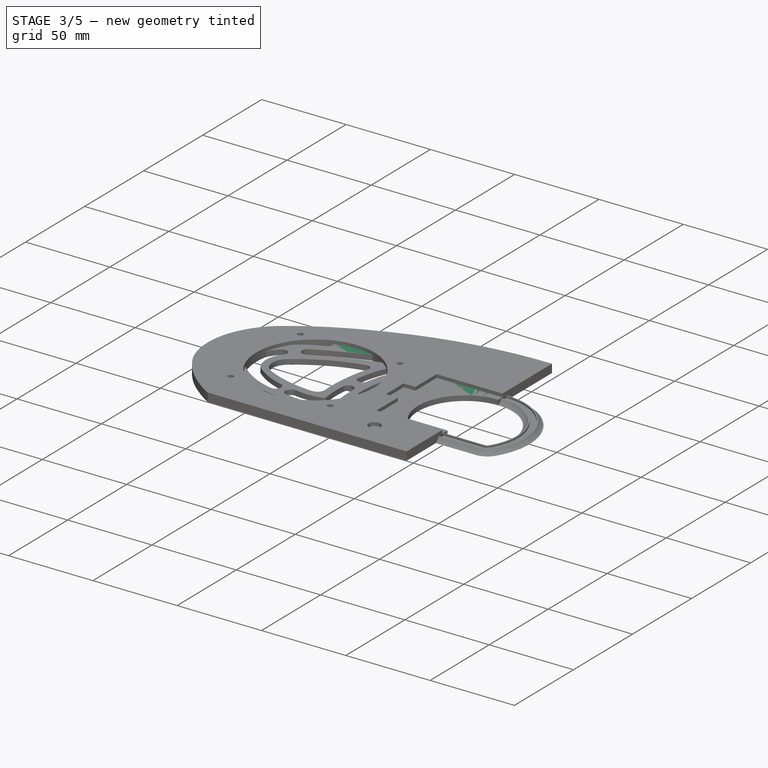
[diagram: stage 3 of 5 — iso view after this stage's code; geometry added in this stage tinted green]
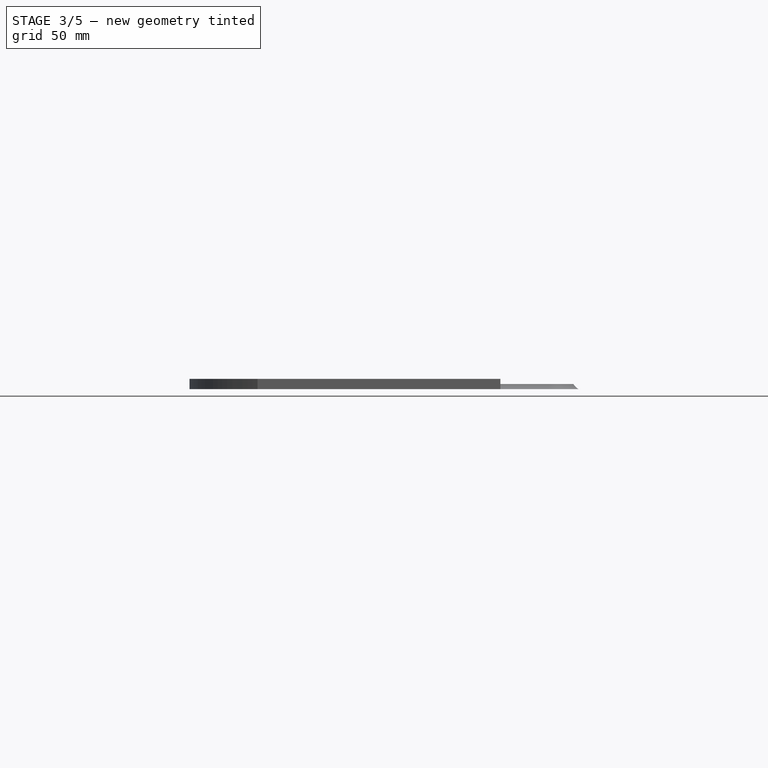
[diagram: stage 3 of 5 — front view after this stage's code; geometry added in this stage tinted green]
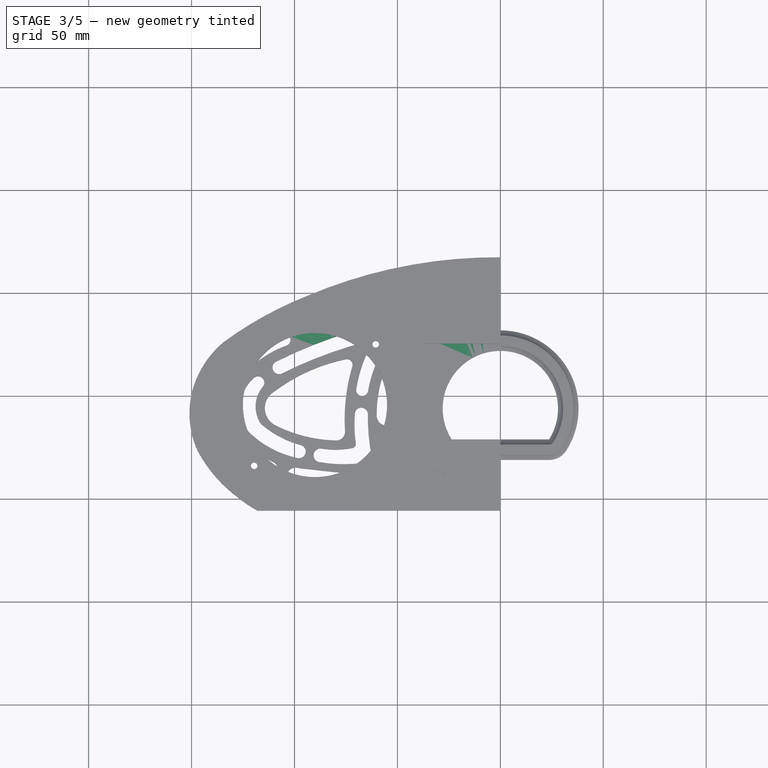
[diagram: stage 3 of 5 — top view after this stage's code; geometry added in this stage tinted green]
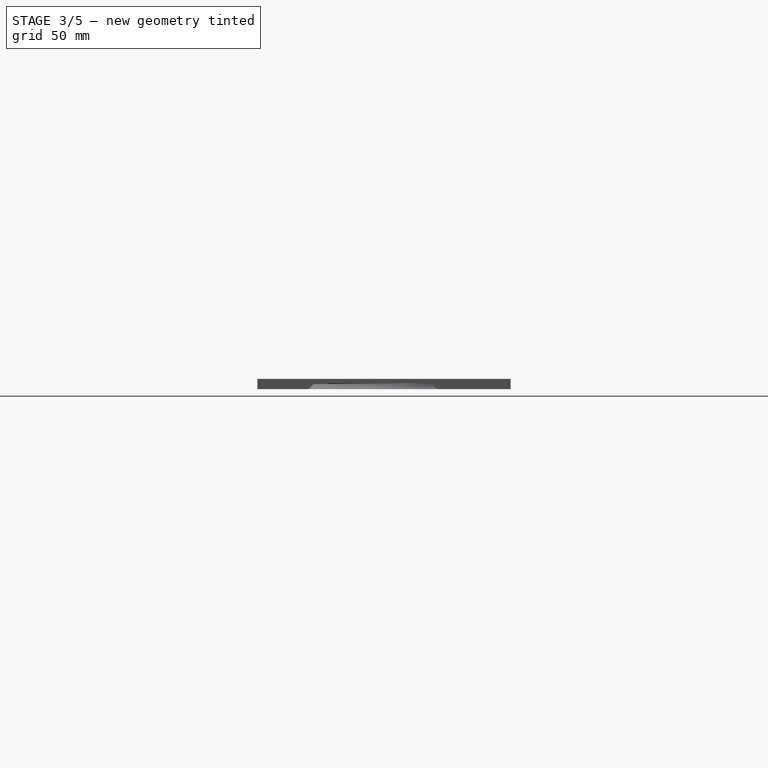
[diagram: stage 3 of 5 — right view after this stage's code; geometry added in this stage tinted green]
FEATURE [PartDesign::Body] PocketBody001  label="Korpus_rechts"
  Group = -> [Sketch016,Pad003,Sketch017,Pocket006]
  Origin = -> Origin006
  Placement = pos=(0,0,70) rot=(0,1,0;3.14159rad)
  Tip = -> Pocket006
FEATURE [App::Part] Part  label="Korpus"
  Group = -> [PocketBody,Pocket001,PocketBody001]
  License = CC BY 3.0
  LicenseURL = http://creativecommons.org/licenses/by/3.0/
  Origin = -> Origin
FEATURE [PartDesign::Pad] Pad004
  Length = 3
  Length2 = 100
  Profile = -> Sketch012
  Type = 0
FEATURE [Sketcher::SketchObject] Sketch001  label="Ausschnitte_1"
  MapMode = 5
  Placement = pos=(0,0,3) rot=(0,0,1;0rad)
  Support = -> [Pad004]
  sketch-geometry (7):
    g0: ArcOfCircle CenterX=0 CenterY=-8 CenterZ=0 NormalX=0 NormalY=0 NormalZ=1 AngleXU=0 Radius=28 StartAngle=1.5708 EndAngle=3.70695
    g1: LineSegment StartX=-23.6432 StartY=-23 StartZ=0 EndX=0 EndY=-23 EndZ=0
    g2: LineSegment StartX=0 StartY=-23 StartZ=0 EndX=0 EndY=20 EndZ=0
    g3: ArcOfCircle CenterX=-49.55 CenterY=15.44 CenterZ=0 NormalX=0 NormalY=0 NormalZ=1 AngleXU=0 Radius=4.8 StartAngle=5.86712 EndAngle=8.92032
    g4: ArcOfCircle CenterX=-55.25 CenterY=-9.46 CenterZ=0 NormalX=0 NormalY=0 NormalZ=1 AngleXU=0 Radius=4.8 StartAngle=3.25643 EndAngle=6.20811
    g5: ArcOfCircle CenterX=-2.8775 CenterY=-8.38 CenterZ=0 NormalX=0 NormalY=0 NormalZ=1 AngleXU=0 Radius=47.6078 StartAngle=2.66406 EndAngle=3.17184
    g6: ArcOfCircle CenterX=-2.39812 CenterY=-8.42 CenterZ=0 NormalX=0 NormalY=0 NormalZ=1 AngleXU=0 Radius=57.6422 StartAngle=2.67014 EndAngle=3.16918
  constraints (26):
    c: PointOnObject(g0,g-2)
    c: PointOnObject(g0,g-2)
    c: Radius(g0) = 28
    c: DistanceY(g0,g-1) = 8
    c: Coincident(g1,g0)
    c: PointOnObject(g1,g-2)
    c: Horizontal(g1)
    c: Coincident(g2,g1)
    c: Coincident(g2,g0)
    c: DistanceY(g0,g-1) = 23
    c: Coincident(g5,g4)
    c: Coincident(g5,g3)
    c: Coincident(g6,g4)
    c: Radius(g4) = 4.8
    c: Equal(g4,g3)
    c: Coincident(g6,g3)
    c: DistanceX(g4,g-1) = 55.25
    c: DistanceX(g3,g-1) = 49.55
    c: DistanceY(g-1,g3) = 15.44
    c: DistanceY(g4,g-1) = 9.46
    c: DistanceY(g4,g-1) = 9.82
    c: DistanceY(g4,g-1) = 10.01
    c: DistanceY(g-1,g3) = 13.5
    c: DistanceY(g-1,g3) = 17.76
    c: DistanceY(g5,g-1) = 8.38
    c: DistanceY(g6,g-1) = 8.42
FEATURE [Sketcher::SketchObject] Sketch002  label="Ausschnitte_2"
  MapMode = 5
  Placement = pos=(0,0,3) rot=(0,0,1;0rad)
  Support = -> [Pad004]
  sketch-geometry (10):
    g0: ArcOfCircle CenterX=-53.7319 CenterY=-24.0351 CenterZ=0 NormalX=0 NormalY=0 NormalZ=1 AngleXU=0 Radius=4.54509 StartAngle=0.338057 EndAngle=3.34373
    g1: ArcOfCircle CenterX=-99.3617 CenterY=-39.3022 CenterZ=0 NormalX=0 NormalY=0 NormalZ=1 AngleXU=0 Radius=4.54284 StartAngle=1.24728 EndAngle=4.6508
    g2: ArcOfCircle CenterX=-53.1018 CenterY=-33.9581 CenterZ=0 NormalX=0 NormalY=0 NormalZ=1 AngleXU=0 Radius=7.72564 StartAngle=5.30446 EndAngle=6.35591
    g3: ArcOfCircle CenterX=-60.3202 CenterY=-31.6979 CenterZ=0 NormalX=0 NormalY=0 NormalZ=1 AngleXU=0 Radius=3.75897 StartAngle=4.76422 EndAngle=6.7949
    g4: ArcOfCircle CenterX=-66.9139 CenterY=-12.7775 CenterZ=0 NormalX=0 NormalY=0 NormalZ=1 AngleXU=0 Radius=33.0112 StartAngle=4.79044 EndAngle=5.29357
    g5: ArcOfCircle CenterX=-73.7118 CenterY=113.059 CenterZ=0 NormalX=0 NormalY=0 NormalZ=1 AngleXU=0 Radius=159.024 StartAngle=4.5486 EndAngle=4.77136
    g6: LineSegment StartX=-57.0427 StartY=-29.8572 StartZ=0 EndX=-58.1844 EndY=-24.9476 EndZ=0
    g7: LineSegment StartX=-49.4441 StartY=-22.5277 StartZ=0 EndX=-45.3966 EndY=-33.3967 EndZ=0
    g8: ArcOfCircle CenterX=-74.7228 CenterY=24.5867 CenterZ=0 NormalX=0 NormalY=0 NormalZ=1 AngleXU=0 Radius=61.7876 StartAngle=4.61958 EndAngle=4.9509
    g9: LineSegment StartX=-97.9175 StartY=-34.995 StartZ=0 EndX=-80.4488 EndY=-36.935 EndZ=0
  constraints (37):
    c: Coincident(g4,g2)
    c: Coincident(g5,g1)
    c: Coincident(g5,g4)
    c: Coincident(g6,g3)
    c: Coincident(g6,g0)
    c: Coincident(g7,g0)
    c: Coincident(g7,g2)
    c: Coincident(g8,g3)
    c: Coincident(g9,g1)
    c: Coincident(g9,g8)
    c: Radius(g0) = 4.54509
    c: Radius(g1) = 4.54284
    c: Radius(g2) = 7.72564
    c: Radius(g3) = 3.75897
    c: Radius(g4) = 33.0112
    c: Radius(g5) = 159.024
    c: Radius(g8) = 61.7876
    c: DistanceY(g0,g-1) = 24.0351
    c: DistanceX(g0,g-1) = 53.7319
    c: DistanceY(g0,g-1) = 22.5277
    c: DistanceY(g0,g-1) = 24.9476
    c: DistanceY(g3,g-1) = 29.8572
    c: DistanceX(g3,g-1) = 57.0427
    c: DistanceY(g2,g-1) = 33.3967
    c: DistanceX(g2,g-1) = 45.3966
    c: DistanceY(g2) = -40.3687
    c: DistanceX(g2) = -48.7903
    c: DistanceY(g3) = -35.4518
    c: DistanceX(g3) = -60.1254
    c: DistanceX(g4) = -64.34
    c: DistanceY(g4) = -45.6882
    c: DistanceY(g1) = -34.995
    c: DistanceX(g1) = -97.9175
    c: DistanceY(g1) = -43.8364
    c: DistanceX(g1) = -99.6413
    c: DistanceY(g8) = -36.935
    c: DistanceX(g8) = -80.4488
FEATURE [Sketcher::SketchObject] CopySketch001
  Placement = pos=(0,0,3) rot=(0,0,1;0rad)
  sketch-geometry (7):
    g0: ArcOfCircle CenterX=0 CenterY=-6 CenterZ=0 NormalX=0 NormalY=0 NormalZ=1 AngleXU=0 Radius=28 StartAngle=1.5708 EndAngle=3.70695
    g1: LineSegment StartX=-23.6432 StartY=-21 StartZ=0 EndX=0 EndY=-21 EndZ=0
    g2: LineSegment StartX=0 StartY=-21 StartZ=0 EndX=0 EndY=22 EndZ=0
    g3: ArcOfCircle CenterX=-49.55 CenterY=15.44 CenterZ=0 NormalX=0 NormalY=0 NormalZ=1 AngleXU=0 Radius=4.8 StartAngle=5.86712 EndAngle=8.92032
    g4: ArcOfCircle CenterX=-55.25 CenterY=-9.46 CenterZ=0 NormalX=0 NormalY=0 NormalZ=1 AngleXU=0 Radius=4.8 StartAngle=3.25643 EndAngle=6.20811
    g5: ArcOfCircle CenterX=-2.8775 CenterY=-8.38 CenterZ=0 NormalX=0 NormalY=0 NormalZ=1 AngleXU=0 Radius=47.6078 StartAngle=2.66406 EndAngle=3.17184
    g6: ArcOfCircle CenterX=-2.39812 CenterY=-8.42 CenterZ=0 NormalX=0 NormalY=0 NormalZ=1 AngleXU=0 Radius=57.6422 StartAngle=2.67014 EndAngle=3.16918
  constraints (26):
    c: PointOnObject(g0,g-2)
    c: PointOnObject(g0,g-2)
    c: Radius(g0) = 28
    c: DistanceY(g0,g-1) = 6
    c: Coincident(g1,g0)
    c: PointOnObject(g1,g-2)
    c: Horizontal(g1)
    c: Coincident(g2,g1)
    c: Coincident(g2,g0)
    c: DistanceY(g0,g-1) = 21
    c: Coincident(g5,g4)
    c: Coincident(g5,g3)
    c: Coincident(g6,g4)
    c: Radius(g4) = 4.8
    c: Equal(g4,g3)
    c: Coincident(g6,g3)
    c: DistanceX(g4,g-1) = 55.25
    c: DistanceX(g3,g-1) = 49.55
    c: DistanceY(g-1,g3) = 15.44
    c: DistanceY(g4,g-1) = 9.46
    c: DistanceY(g4,g-1) = 9.82
    c: DistanceY(g4,g-1) = 10.01
    c: DistanceY(g-1,g3) = 13.5
    c: DistanceY(g-1,g3) = 17.76
    c: DistanceY(g5,g-1) = 8.38
    c: DistanceY(g6,g-1) = 8.42
FEATURE [PartDesign::Pocket] Pocket007
  BaseFeature = -> Pad004
  Length = 5
  Length2 = 100
  Profile = -> CopySketch001
  Type = 1
FEATURE [Sketcher::SketchObject] CopySketch002
  Placement = pos=(0,0,3) rot=(0,0,1;0rad)
  sketch-geometry (10):
    g0: ArcOfCircle CenterX=-53.7319 CenterY=-24.0351 CenterZ=0 NormalX=0 NormalY=0 NormalZ=1 AngleXU=0 Radius=4.54509 StartAngle=0.338057 EndAngle=3.34373
    g1: ArcOfCircle CenterX=-99.3617 CenterY=-39.3022 CenterZ=0 NormalX=0 NormalY=0 NormalZ=1 AngleXU=0 Radius=4.54284 StartAngle=1.24728 EndAngle=4.6508
    g2: ArcOfCircle CenterX=-53.1018 CenterY=-33.9581 CenterZ=0 NormalX=0 NormalY=0 NormalZ=1 AngleXU=0 Radius=7.72564 StartAngle=5.30446 EndAngle=6.35591
    g3: ArcOfCircle CenterX=-60.3202 CenterY=-31.6979 CenterZ=0 NormalX=0 NormalY=0 NormalZ=1 AngleXU=0 Radius=3.75897 StartAngle=4.76422 EndAngle=6.7949
    g4: ArcOfCircle CenterX=-66.9139 CenterY=-12.7775 CenterZ=0 NormalX=0 NormalY=0 NormalZ=1 AngleXU=0 Radius=33.0112 StartAngle=4.79044 EndAngle=5.29357
    g5: ArcOfCircle CenterX=-73.7118 CenterY=113.059 CenterZ=0 NormalX=0 NormalY=0 NormalZ=1 AngleXU=0 Radius=159.024 StartAngle=4.5486 EndAngle=4.77136
    g6: LineSegment StartX=-57.0427 StartY=-29.8572 StartZ=0 EndX=-58.1844 EndY=-24.9476 EndZ=0
    g7: LineSegment StartX=-49.4441 StartY=-22.5277 StartZ=0 EndX=-45.3966 EndY=-33.3967 EndZ=0
    g8: ArcOfCircle CenterX=-74.7228 CenterY=24.5867 CenterZ=0 NormalX=0 NormalY=0 NormalZ=1 AngleXU=0 Radius=61.7876 StartAngle=4.61958 EndAngle=4.9509
    g9: LineSegment StartX=-97.9175 StartY=-34.995 StartZ=0 EndX=-80.4488 EndY=-36.935 EndZ=0
  constraints (37):
    c: Coincident(g4,g2)
    c: Coincident(g5,g1)
    c: Coincident(g5,g4)
    c: Coincident(g6,g3)
    c: Coincident(g6,g0)
    c: Coincident(g7,g0)
    c: Coincident(g7,g2)
    c: Coincident(g8,g3)
    c: Coincident(g9,g1)
    c: Coincident(g9,g8)
    c: Radius(g0) = 4.54509
    c: Radius(g1) = 4.54284
    c: Radius(g2) = 7.72564
    c: Radius(g3) = 3.75897
    c: Radius(g4) = 33.0112
    c: Radius(g5) = 159.024
    c: Radius(g8) = 61.7876
    c: DistanceY(g0,g-1) = 24.0351
    c: DistanceX(g0,g-1) = 53.7319
    c: DistanceY(g0,g-1) = 22.5277
    c: DistanceY(g0,g-1) = 24.9476
    c: DistanceY(g3,g-1) = 29.8572
    c: DistanceX(g3,g-1) = 57.0427
    c: DistanceY(g2,g-1) = 33.3967
    c: DistanceX(g2,g-1) = 45.3966
    c: DistanceY(g2) = -40.3687
    c: DistanceX(g2) = -48.7903
    c: DistanceY(g3) = -35.4518
    c: DistanceX(g3) = -60.1254
    c: DistanceX(g4) = -64.34
    c: DistanceY(g4) = -45.6882
    c: DistanceY(g1) = -34.995
    c: DistanceX(g1) = -97.9175
    c: DistanceY(g1) = -43.8364
    c: DistanceX(g1) = -99.6413
    c: DistanceY(g8) = -36.935
    c: DistanceX(g8) = -80.4488
FEATURE [PartDesign::Pocket] Pocket008
  BaseFeature = -> Pocket007
  Length = 5
  Length2 = 100
  Profile = -> CopySketch002
  Type = 1
FEATURE [Sketcher::SketchObject] CopySketch003
  Placement = pos=(0,0,3) rot=(0,0,1;0rad)
  sketch-geometry (8):
    g0: ArcOfCircle CenterX=-67.5234 CenterY=-8.79407 CenterZ=0 NormalX=0 NormalY=0 NormalZ=1 AngleXU=0 Radius=3.16238 StartAngle=0.0526049 EndAngle=3.22772
    g1: ArcOfCircle CenterX=-87.3659 CenterY=-28.7831 CenterZ=0 NormalX=0 NormalY=0 NormalZ=1 AngleXU=0 Radius=3.31992 StartAngle=1.50483 EndAngle=4.6985
    g2: ArcOfCircle CenterX=-66.3836 CenterY=-28.6657 CenterZ=0 NormalX=0 NormalY=0 NormalZ=1 AngleXU=0 Radius=3.65164 StartAngle=4.88259 EndAngle=6.5062
    g3: ArcOfCircle CenterX=38.8612 CenterY=-10.0222 CenterZ=0 NormalX=0 NormalY=0 NormalZ=1 AngleXU=0 Radius=103.236 StartAngle=3.12809 EndAngle=3.31523
    g4: ArcOfCircle CenterX=-76.0952 CenterY=33.7732 CenterZ=0 NormalX=0 NormalY=0 NormalZ=1 AngleXU=0 Radius=66.8409 StartAngle=4.54226 EndAngle=4.86756
    g5: ArcOfCircle CenterX=-72.447 CenterY=-23.1477 CenterZ=0 NormalX=0 NormalY=0 NormalZ=1 AngleXU=0 Radius=2.26638 StartAngle=5.18657 EndAngle=6.47537
    g6: ArcOfCircle CenterX=-10.5176 CenterY=-13.9068 CenterZ=0 NormalX=0 NormalY=0 NormalZ=1 AngleXU=0 Radius=60.3509 StartAngle=3.0613 EndAngle=3.28806
    g7: ArcOfCircle CenterX=-80.0891 CenterY=16.2526 CenterZ=0 NormalX=0 NormalY=0 NormalZ=1 AngleXU=0 Radius=42.3158 StartAngle=4.54481 EndAngle=4.91891
  constraints (32):
    c: Coincident(g3,g0)
    c: Coincident(g3,g2)
    c: Coincident(g4,g1)
    c: Coincident(g4,g2)
    c: Coincident(g6,g5)
    c: Coincident(g6,g0)
    c: Radius(g0) = 3.16238
    c: Radius(g1) = 3.31992
    c: Radius(g2) = 3.65164
    c: Radius(g5) = 2.26638
    c: Radius(g6) = 60.3509
    c: Radius(g3) = 103.236
    c: DistanceY(g0) = -8.79407
    c: DistanceX(g0) = -67.5234
    c: DistanceY(g0) = -8.62779
    c: DistanceY(g5) = -22.7148
    c: DistanceY(g2) = -27.8581
    c: DistanceY(g2) = -32.2646
    c: DistanceY(g5) = -25.164
    c: DistanceX(g2) = -65.7651
    c: DistanceX(g5) = -71.4121
    c: DistanceY(g0) = -9.0661
    c: DistanceY(g1) = -25.4704
    c: DistanceY(g1) = -32.1027
    c: DistanceY(g1) = -28.7831
    c: DistanceX(g1) = -87.3659
    c: DistanceX(g2) = -62.8224
    c: DistanceX(g5) = -70.2223
    c: Coincident(g7,g1)
    c: Coincident(g7,g5)
    c: Radius(g7) = 42.3158
    c: Radius(g4) = 66.8409
FEATURE [PartDesign::Pocket] Pocket009
  BaseFeature = -> Pocket008
  Length = 5
  Length2 = 100
  Profile = -> CopySketch003
  Type = 1
FEATURE [Sketcher::SketchObject] Sketch018  label="Ausschnitte_4"
  MapMode = 5
  Support = -> [XY_Plane004]
  sketch-geometry (6):
    g0: ArcOfCircle CenterX=-74.57 CenterY=15.15 CenterZ=0 NormalX=0 NormalY=0 NormalZ=1 AngleXU=0 Radius=2.76 StartAngle=5.89057 EndAngle=7.99942
    g1: ArcOfCircle CenterX=-104.99 CenterY=-5.85 CenterZ=0 NormalX=0 NormalY=0 NormalZ=1 AngleXU=0 Radius=9.38 StartAngle=2.11047 EndAngle=4.17147
    g2: ArcOfCircle CenterX=-57.0943 CenterY=-68.3661 CenterZ=0 NormalX=0 NormalY=0 NormalZ=1 AngleXU=0 Radius=88.08 StartAngle=1.77516 EndAngle=2.21242
    g3: ArcOfCircle CenterX=-79.73 CenterY=-17.24 CenterZ=0 NormalX=0 NormalY=0 NormalZ=1 AngleXU=0 Radius=4.28 StartAngle=4.64926 EndAngle=6.43619
    g4: ArcOfCircle CenterX=15.2284 CenterY=-11.3401 CenterZ=0 NormalX=0 NormalY=0 NormalZ=1 AngleXU=0 Radius=90.88 StartAngle=2.85794 EndAngle=3.19937
    g5: ArcOfCircle CenterX=-78.401 CenterY=46.8998 CenterZ=0 NormalX=0 NormalY=0 NormalZ=1 AngleXU=0 Radius=68.43 StartAngle=4.23536 EndAngle=4.68902
  constraints (24):
    c: Coincident(g2,g1)
    c: Coincident(g2,g0)
    c: Coincident(g4,g3)
    c: Coincident(g4,g0)
    c: Coincident(g5,g1)
    c: Coincident(g5,g3)
    c: Radius(g0) = 2.76
    c: Radius(g3) = 4.28
    c: Radius(g1) = 9.38
    c: Radius(g2) = 88.08
    c: Radius(g5) = 68.43
    c: Radius(g4) = 90.88
    c: DistanceY(g0) = 15.15
    c: DistanceX(g0) = -74.57
    c: DistanceY(g3) = -17.24
    c: DistanceX(g3) = -79.73
    c: DistanceY(g1) = -5.85
    c: DistanceX(g1) = -104.99
    c: DistanceX(g0) = -74.97
    c: DistanceX(g0) = -72.02
    c: DistanceX(g3) = -75.5
    c: DistanceX(g3) = -80
    c: DistanceX(g1) = -109.82
    c: DistanceX(g1) = -109.81
FEATURE [Sketcher::SketchObject] Sketch019  label="Ausschnitte_5"
  MapMode = 5
  Support = -> [XY_Plane004]
  sketch-geometry (6):
    g0: ArcOfCircle CenterX=-97.84 CenterY=-26.9 CenterZ=0 NormalX=0 NormalY=0 NormalZ=1 AngleXU=0 Radius=3.25 StartAngle=4.4124 EndAngle=7.55625
    g1: ArcOfCircle CenterX=-117.7 CenterY=6.53108 CenterZ=0 NormalX=0 NormalY=0 NormalZ=1 AngleXU=0 Radius=3.04 StartAngle=5.6285 EndAngle=8.71613
    g2: ArcOfCircle CenterX=-103.96 CenterY=-5.06 CenterZ=0 NormalX=0 NormalY=0 NormalZ=1 AngleXU=0 Radius=14.94 StartAngle=2.43145 EndAngle=3.74544
    g3: ArcOfCircle CenterX=-84.62 CenterY=22.82 CenterZ=0 NormalX=0 NormalY=0 NormalZ=1 AngleXU=0 Radius=48.2 StartAngle=3.99637 EndAngle=4.45506
    g4: ArcOfCircle CenterX=-107.19 CenterY=-5.61 CenterZ=0 NormalX=0 NormalY=0 NormalZ=1 AngleXU=0 Radius=19.07 StartAngle=2.30792 EndAngle=3.80431
    g5: ArcOfCircle CenterX=-88.73 CenterY=16.62 CenterZ=0 NormalX=0 NormalY=0 NormalZ=1 AngleXU=0 Radius=47.7 StartAngle=3.93395 EndAngle=4.49967
  constraints (24):
    c: Coincident(g2,g1)
    c: Coincident(g3,g2)
    c: Coincident(g3,g0)
    c: Coincident(g5,g4)
    c: Coincident(g5,g0)
    c: Coincident(g4,g1)
    c: Radius(g1) = 3.04
    c: Radius(g0) = 3.25
    c: Radius(g2) = 14.94
    c: Radius(g3) = 48.2
    c: Radius(g4) = 19.07
    c: Radius(g5) = 47.7
    c: DistanceX(g0) = -97.84
    c: DistanceY(g0) = -26.9
    c: DistanceX(g3) = -84.62
    c: DistanceY(g3) = 22.82
    c: DistanceX(g5) = -88.73
    c: DistanceY(g5) = 16.62
    c: DistanceX(g2) = -103.96
    c: DistanceY(g2) = -5.06
    c: DistanceX(g4) = -107.19
    c: DistanceY(g4) = -5.61
    c: DistanceX(g1) = -117.7
    c: DistanceY(g1) = 4.68
FEATURE [Sketcher::SketchObject] Sketch020  label="Ausschnitte_6"
  MapMode = 5
  Support = -> [XY_Plane004]
  sketch-geometry (8):
    g0: ArcOfCircle CenterX=-104.99 CenterY=27.32 CenterZ=0 NormalX=0 NormalY=0 NormalZ=1 AngleXU=0 Radius=2.98 StartAngle=5.19709 EndAngle=8.15467
    g1: ArcOfCircle CenterX=-111.86 CenterY=-35.42 CenterZ=0 NormalX=0 NormalY=0 NormalZ=1 AngleXU=0 Radius=3.69 StartAngle=4.3472 EndAngle=7.31567
    g2: ArcOfCircle CenterX=-109.63 CenterY=-5.85 CenterZ=0 NormalX=0 NormalY=0 NormalZ=1 AngleXU=0 Radius=22.04 StartAngle=2.45133 EndAngle=3.82688
    g3: ArcOfCircle CenterX=-111.22 CenterY=-7.69 CenterZ=0 NormalX=0 NormalY=0 NormalZ=1 AngleXU=0 Radius=28.51 StartAngle=2.39118 EndAngle=3.89659
    g4: ArcOfCircle CenterX=-85.49 CenterY=-26.68 CenterZ=0 NormalX=0 NormalY=0 NormalZ=1 AngleXU=0 Radius=60.39 StartAngle=1.91507 EndAngle=2.45177
    g5: ArcOfCircle CenterX=-86.81 CenterY=-23.06 CenterZ=0 NormalX=0 NormalY=0 NormalZ=1 AngleXU=0 Radius=50.61 StartAngle=1.90899 EndAngle=2.47623
    g6: ArcOfCircle CenterX=-88.39 CenterY=14.19 CenterZ=0 NormalX=0 NormalY=0 NormalZ=1 AngleXU=0 Radius=51.21 StartAngle=3.86737 EndAngle=4.27744
    g7: ArcOfCircle CenterX=-96.81 CenterY=8.59 CenterZ=0 NormalX=0 NormalY=0 NormalZ=1 AngleXU=0 Radius=50.2 StartAngle=3.93607 EndAngle=4.38026
  constraints (32):
    c: Coincident(g4,g0)
    c: Coincident(g4,g3)
    c: Coincident(g5,g0)
    c: Coincident(g5,g2)
    c: Coincident(g6,g2)
    c: Coincident(g6,g1)
    c: Coincident(g7,g3)
    c: Coincident(g7,g1)
    c: Radius(g0) = 2.98
    c: Radius(g4) = 60.39
    c: Radius(g5) = 50.61
    c: Radius(g3) = 28.51
    c: Radius(g2) = 22.04
    c: Radius(g6) = 51.21
    c: Radius(g7) = 50.2
    c: Radius(g1) = 3.69
    c: DistanceX(g0) = -104.99
    c: DistanceY(g0) = 27.32
    c: DistanceY(g1) = -35.42
    c: DistanceX(g1) = -111.86
    c: DistanceX(g6) = -88.39
    c: DistanceY(g6) = 14.19
    c: DistanceX(g7) = -96.81
    c: DistanceY(g7) = 8.59
    c: DistanceY(g4) = -26.68
    c: DistanceX(g4) = -85.49
    c: DistanceY(g5) = -23.06
    c: DistanceX(g5) = -86.81
    c: DistanceX(g2) = -109.63
    c: DistanceY(g2) = -5.85
    c: DistanceX(g3) = -111.22
    c: DistanceY(g3) = -7.69
FEATURE [Sketcher::SketchObject] CopySketch018
  Placement = pos=(0,0,3) rot=(0,0,1;0rad)
  sketch-geometry (6):
    g0: ArcOfCircle CenterX=-74.57 CenterY=15.15 CenterZ=0 NormalX=0 NormalY=0 NormalZ=1 AngleXU=0 Radius=2.76 StartAngle=5.89057 EndAngle=7.99942
    g1: ArcOfCircle CenterX=-104.99 CenterY=-5.85 CenterZ=0 NormalX=0 NormalY=0 NormalZ=1 AngleXU=0 Radius=9.38 StartAngle=2.11047 EndAngle=4.17147
    g2: ArcOfCircle CenterX=-57.0943 CenterY=-68.3661 CenterZ=0 NormalX=0 NormalY=0 NormalZ=1 AngleXU=0 Radius=88.08 StartAngle=1.77516 EndAngle=2.21242
    g3: ArcOfCircle CenterX=-79.73 CenterY=-17.24 CenterZ=0 NormalX=0 NormalY=0 NormalZ=1 AngleXU=0 Radius=4.28 StartAngle=4.64926 EndAngle=6.43619
    g4: ArcOfCircle CenterX=15.2284 CenterY=-11.3401 CenterZ=0 NormalX=0 NormalY=0 NormalZ=1 AngleXU=0 Radius=90.88 StartAngle=2.85794 EndAngle=3.19937
    g5: ArcOfCircle CenterX=-78.401 CenterY=46.8998 CenterZ=0 NormalX=0 NormalY=0 NormalZ=1 AngleXU=0 Radius=68.43 StartAngle=4.23536 EndAngle=4.68902
  constraints (24):
    c: Coincident(g2,g1)
    c: Coincident(g2,g0)
    c: Coincident(g4,g3)
    c: Coincident(g4,g0)
    c: Coincident(g5,g1)
    c: Coincident(g5,g3)
    c: Radius(g0) = 2.76
    c: Radius(g3) = 4.28
    c: Radius(g1) = 9.38
    c: Radius(g2) = 88.08
    c: Radius(g5) = 68.43
    c: Radius(g4) = 90.88
    c: DistanceY(g0) = 15.15
    c: DistanceX(g0) = -74.57
    c: DistanceY(g3) = -17.24
    c: DistanceX(g3) = -79.73
    c: DistanceY(g1) = -5.85
    c: DistanceX(g1) = -104.99
    c: DistanceX(g0) = -74.97
    c: DistanceX(g0) = -72.02
    c: DistanceX(g3) = -75.5
    c: DistanceX(g3) = -80
    c: DistanceX(g1) = -109.82
    c: DistanceX(g1) = -109.81
FEATURE [PartDesign::Pocket] Pocket010
  BaseFeature = -> Pocket009
  Length = 5
  Length2 = 100
  Profile = -> CopySketch018
  Type = 1
FEATURE [Sketcher::SketchObject] CopySketch019
  Placement = pos=(0,0,3) rot=(0,0,1;0rad)
  sketch-geometry (6):
    g0: ArcOfCircle CenterX=-97.84 CenterY=-26.9 CenterZ=0 NormalX=0 NormalY=0 NormalZ=1 AngleXU=0 Radius=3.25 StartAngle=4.4124 EndAngle=7.55625
    g1: ArcOfCircle CenterX=-117.7 CenterY=6.53108 CenterZ=0 NormalX=0 NormalY=0 NormalZ=1 AngleXU=0 Radius=3.04 StartAngle=5.6285 EndAngle=8.71613
    g2: ArcOfCircle CenterX=-103.96 CenterY=-5.06 CenterZ=0 NormalX=0 NormalY=0 NormalZ=1 AngleXU=0 Radius=14.94 StartAngle=2.43145 EndAngle=3.74544
    g3: ArcOfCircle CenterX=-84.62 CenterY=22.82 CenterZ=0 NormalX=0 NormalY=0 NormalZ=1 AngleXU=0 Radius=48.2 StartAngle=3.99637 EndAngle=4.45506
    g4: ArcOfCircle CenterX=-107.19 CenterY=-5.61 CenterZ=0 NormalX=0 NormalY=0 NormalZ=1 AngleXU=0 Radius=19.07 StartAngle=2.30792 EndAngle=3.80431
    g5: ArcOfCircle CenterX=-88.73 CenterY=16.62 CenterZ=0 NormalX=0 NormalY=0 NormalZ=1 AngleXU=0 Radius=47.7 StartAngle=3.93395 EndAngle=4.49967
  constraints (24):
    c: Coincident(g2,g1)
    c: Coincident(g3,g2)
    c: Coincident(g3,g0)
    c: Coincident(g5,g4)
    c: Coincident(g5,g0)
    c: Coincident(g4,g1)
    c: Radius(g1) = 3.04
    c: Radius(g0) = 3.25
    c: Radius(g2) = 14.94
    c: Radius(g3) = 48.2
    c: Radius(g4) = 19.07
    c: Radius(g5) = 47.7
    c: DistanceX(g0) = -97.84
    c: DistanceY(g0) = -26.9
    c: DistanceX(g3) = -84.62
    c: DistanceY(g3) = 22.82
    c: DistanceX(g5) = -88.73
    c: DistanceY(g5) = 16.62
    c: DistanceX(g2) = -103.96
    c: DistanceY(g2) = -5.06
    c: DistanceX(g4) = -107.19
    c: DistanceY(g4) = -5.61
    c: DistanceX(g1) = -117.7
    c: DistanceY(g1) = 4.68
FEATURE [PartDesign::Pocket] Pocket011
  BaseFeature = -> Pocket010
  Length = 5
  Length2 = 100
  Profile = -> CopySketch019
  Type = 1
FEATURE [Sketcher::SketchObject] CopySketch020
  Placement = pos=(0,0,3) rot=(0,0,1;0rad)
  sketch-geometry (8):
    g0: ArcOfCircle CenterX=-104.99 CenterY=27.32 CenterZ=0 NormalX=0 NormalY=0 NormalZ=1 AngleXU=0 Radius=2.98 StartAngle=5.19709 EndAngle=8.15467
    g1: ArcOfCircle CenterX=-111.86 CenterY=-35.42 CenterZ=0 NormalX=0 NormalY=0 NormalZ=1 AngleXU=0 Radius=3.69 StartAngle=4.3472 EndAngle=7.31567
    g2: ArcOfCircle CenterX=-109.63 CenterY=-5.85 CenterZ=0 NormalX=0 NormalY=0 NormalZ=1 AngleXU=0 Radius=22.04 StartAngle=2.45133 EndAngle=3.82688
    g3: ArcOfCircle CenterX=-111.22 CenterY=-7.69 CenterZ=0 NormalX=0 NormalY=0 NormalZ=1 AngleXU=0 Radius=28.51 StartAngle=2.39118 EndAngle=3.89659
    g4: ArcOfCircle CenterX=-85.49 CenterY=-26.68 CenterZ=0 NormalX=0 NormalY=0 NormalZ=1 AngleXU=0 Radius=60.39 StartAngle=1.91507 EndAngle=2.45177
    g5: ArcOfCircle CenterX=-86.81 CenterY=-23.06 CenterZ=0 NormalX=0 NormalY=0 NormalZ=1 AngleXU=0 Radius=50.61 StartAngle=1.90899 EndAngle=2.47623
    g6: ArcOfCircle CenterX=-88.39 CenterY=14.19 CenterZ=0 NormalX=0 NormalY=0 NormalZ=1 AngleXU=0 Radius=51.21 StartAngle=3.86737 EndAngle=4.27744
    g7: ArcOfCircle CenterX=-96.81 CenterY=8.59 CenterZ=0 NormalX=0 NormalY=0 NormalZ=1 AngleXU=0 Radius=50.2 StartAngle=3.93607 EndAngle=4.38026
  constraints (32):
    c: Coincident(g4,g0)
    c: Coincident(g4,g3)
    c: Coincident(g5,g0)
    c: Coincident(g5,g2)
    c: Coincident(g6,g2)
    c: Coincident(g6,g1)
    c: Coincident(g7,g3)
    c: Coincident(g7,g1)
    c: Radius(g0) = 2.98
    c: Radius(g4) = 60.39
    c: Radius(g5) = 50.61
    c: Radius(g3) = 28.51
    c: Radius(g2) = 22.04
    c: Radius(g6) = 51.21
    c: Radius(g7) = 50.2
    c: Radius(g1) = 3.69
    c: DistanceX(g0) = -104.99
    c: DistanceY(g0) = 27.32
    c: DistanceY(g1) = -35.42
    c: DistanceX(g1) = -111.86
    c: DistanceX(g6) = -88.39
    c: DistanceY(g6) = 14.19
    c: DistanceX(g7) = -96.81
    c: DistanceY(g7) = 8.59
    c: DistanceY(g4) = -26.68
    c: DistanceX(g4) = -85.49
    c: DistanceY(g5) = -23.06
    c: DistanceX(g5) = -86.81
    c: DistanceX(g2) = -109.63
    c: DistanceY(g2) = -5.85
    c: DistanceX(g3) = -111.22
    c: DistanceY(g3) = -7.69
FEATURE [PartDesign::Pocket] Pocket012
  BaseFeature = -> Pocket011
  Length = 5
  Length2 = 100
  Profile = -> CopySketch020
  Type = 1
FEATURE [Sketcher::SketchObject] Sketch021  label="Ausschnitte_7"
  MapMode = 5
  Support = -> [XY_Plane004]
  sketch-geometry (8):
    g0: ArcOfCircle CenterX=-52.28 CenterY=33.51 CenterZ=0 NormalX=0 NormalY=0 NormalZ=1 AngleXU=0 Radius=2.83 StartAngle=5.49536 EndAngle=7.82271
    g1: ArcOfCircle CenterX=-107.47 CenterY=13.9 CenterZ=0 NormalX=0 NormalY=0 NormalZ=1 AngleXU=0 Radius=3.2 StartAngle=2.12748 EndAngle=5.14289
    g2: ArcOfCircle CenterX=-67.12 CenterY=3 CenterZ=0 NormalX=0 NormalY=0 NormalZ=1 AngleXU=0 Radius=2.89 StartAngle=2.84914 EndAngle=6.14599
    g3: ArcOfCircle CenterX=-63.7744 CenterY=25.47 CenterZ=0 NormalX=0 NormalY=0 NormalZ=1 AngleXU=0 Radius=1.27 StartAngle=5.61181 EndAngle=8.37132
    g4: ArcOfCircle CenterX=-6.55 CenterY=-7.47 CenterZ=0 NormalX=0 NormalY=0 NormalZ=1 AngleXU=0 Radius=58.58 StartAngle=2.41368 EndAngle=2.96875
    g5: ArcOfCircle CenterX=-5.95 CenterY=-6.33 CenterZ=0 NormalX=0 NormalY=0 NormalZ=1 AngleXU=0 Radius=64.74 StartAngle=2.64209 EndAngle=2.98396
    g6: ArcOfCircle CenterX=-13.62 CenterY=-173.11 CenterZ=0 NormalX=0 NormalY=0 NormalZ=1 AngleXU=0 Radius=206.04 StartAngle=1.81983 EndAngle=2.03646
    g7: ArcOfCircle CenterX=-6.49 CenterY=-187.82 CenterZ=0 NormalX=0 NormalY=0 NormalZ=1 AngleXU=0 Radius=228.77 StartAngle=1.77192 EndAngle=2.03621
  constraints (32):
    c: Coincident(g4,g0)
    c: Coincident(g4,g2)
    c: Coincident(g5,g3)
    c: Coincident(g5,g2)
    c: Coincident(g6,g3)
    c: Coincident(g6,g1)
    c: Coincident(g7,g1)
    c: Coincident(g7,g0)
    c: Radius(g0) = 2.83
    c: Radius(g7) = 228.77
    c: Radius(g4) = 58.58
    c: Radius(g2) = 2.89
    c: Radius(g5) = 64.74
    c: Radius(g3) = 1.27
    c: Radius(g6) = 206.04
    c: Radius(g1) = 3.2
    c: DistanceY(g0) = 33.51
    c: DistanceX(g0) = -52.28
    c: DistanceY(g5) = -6.33
    c: DistanceX(g5) = -5.95
    c: DistanceY(g4) = -7.47
    c: DistanceX(g4) = -6.55
    c: DistanceX(g2) = -67.12
    c: DistanceY(g2) = 3
    c: DistanceY(g3) = 25.47
    c: DistanceY(g1) = 13.9
    c: DistanceX(g1) = -107.47
    c: DistanceY(g6) = -173.11
    c: DistanceX(g6) = -13.62
    c: DistanceY(g7) = -187.82
    c: DistanceX(g7) = -6.49
    c: DistanceX(g3) = -62.78
FEATURE [Sketcher::SketchObject] CopySketch021
  Placement = pos=(0,0,3) rot=(0,0,1;0rad)
  sketch-geometry (8):
    g0: ArcOfCircle CenterX=-52.28 CenterY=33.51 CenterZ=0 NormalX=0 NormalY=0 NormalZ=1 AngleXU=0 Radius=2.83 StartAngle=5.49536 EndAngle=7.82271
    g1: ArcOfCircle CenterX=-107.47 CenterY=13.9 CenterZ=0 NormalX=0 NormalY=0 NormalZ=1 AngleXU=0 Radius=3.2 StartAngle=2.12748 EndAngle=5.14289
    g2: ArcOfCircle CenterX=-67.12 CenterY=3 CenterZ=0 NormalX=0 NormalY=0 NormalZ=1 AngleXU=0 Radius=2.89 StartAngle=2.84914 EndAngle=6.14599
    g3: ArcOfCircle CenterX=-63.7744 CenterY=25.47 CenterZ=0 NormalX=0 NormalY=0 NormalZ=1 AngleXU=0 Radius=1.27 StartAngle=5.61181 EndAngle=8.37132
    g4: ArcOfCircle CenterX=-6.55 CenterY=-7.47 CenterZ=0 NormalX=0 NormalY=0 NormalZ=1 AngleXU=0 Radius=58.58 StartAngle=2.41368 EndAngle=2.96875
    g5: ArcOfCircle CenterX=-5.95 CenterY=-6.33 CenterZ=0 NormalX=0 NormalY=0 NormalZ=1 AngleXU=0 Radius=64.74 StartAngle=2.64209 EndAngle=2.98396
    g6: ArcOfCircle CenterX=-13.62 CenterY=-173.11 CenterZ=0 NormalX=0 NormalY=0 NormalZ=1 AngleXU=0 Radius=206.04 StartAngle=1.81983 EndAngle=2.03646
    g7: ArcOfCircle CenterX=-6.49 CenterY=-187.82 CenterZ=0 NormalX=0 NormalY=0 NormalZ=1 AngleXU=0 Radius=228.77 StartAngle=1.77192 EndAngle=2.03621
  constraints (32):
    c: Coincident(g4,g0)
    c: Coincident(g4,g2)
    c: Coincident(g5,g3)
    c: Coincident(g5,g2)
    c: Coincident(g6,g3)
    c: Coincident(g6,g1)
    c: Coincident(g7,g1)
    c: Coincident(g7,g0)
    c: Radius(g0) = 2.83
    c: Radius(g7) = 228.77
    c: Radius(g4) = 58.58
    c: Radius(g2) = 2.89
    c: Radius(g5) = 64.74
    c: Radius(g3) = 1.27
    c: Radius(g6) = 206.04
    c: Radius(g1) = 3.2
    c: DistanceY(g0) = 33.51
    c: DistanceX(g0) = -52.28
    c: DistanceY(g5) = -6.33
    c: DistanceX(g5) = -5.95
    c: DistanceY(g4) = -7.47
    c: DistanceX(g4) = -6.55
    c: DistanceX(g2) = -67.12
    c: DistanceY(g2) = 3
    c: DistanceY(g3) = 25.47
    c: DistanceY(g1) = 13.9
    c: DistanceX(g1) = -107.47
    c: DistanceY(g6) = -173.11
    c: DistanceX(g6) = -13.62
    c: DistanceY(g7) = -187.82
    c: DistanceX(g7) = -6.49
    c: DistanceX(g3) = -62.78
FEATURE [PartDesign::Pocket] Pocket013
  BaseFeature = -> Pocket012
  Length = 5
  Length2 = 100
  Profile = -> CopySketch021
  Type = 1
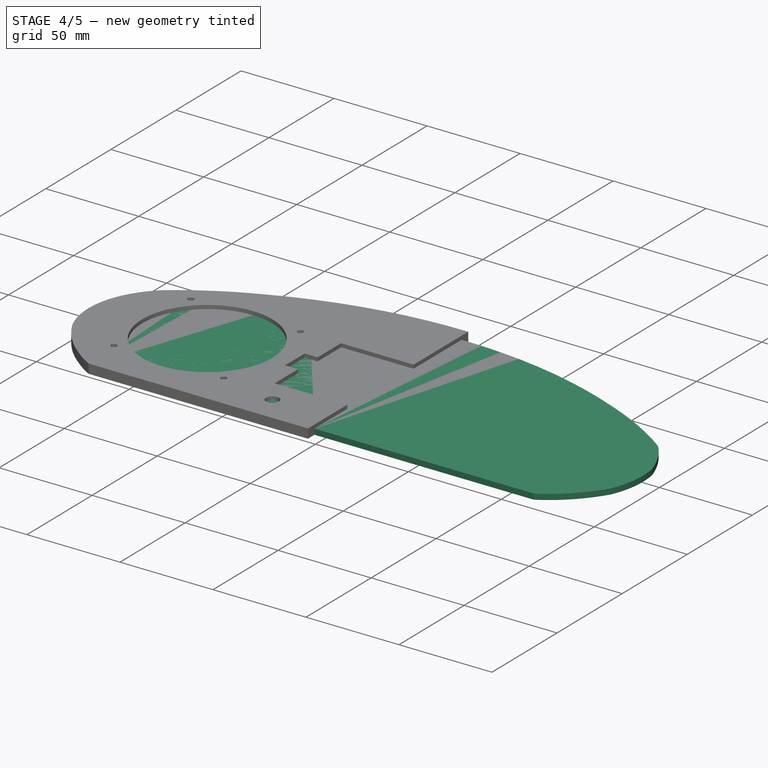
[diagram: stage 4 of 5 — iso view after this stage's code; geometry added in this stage tinted green]
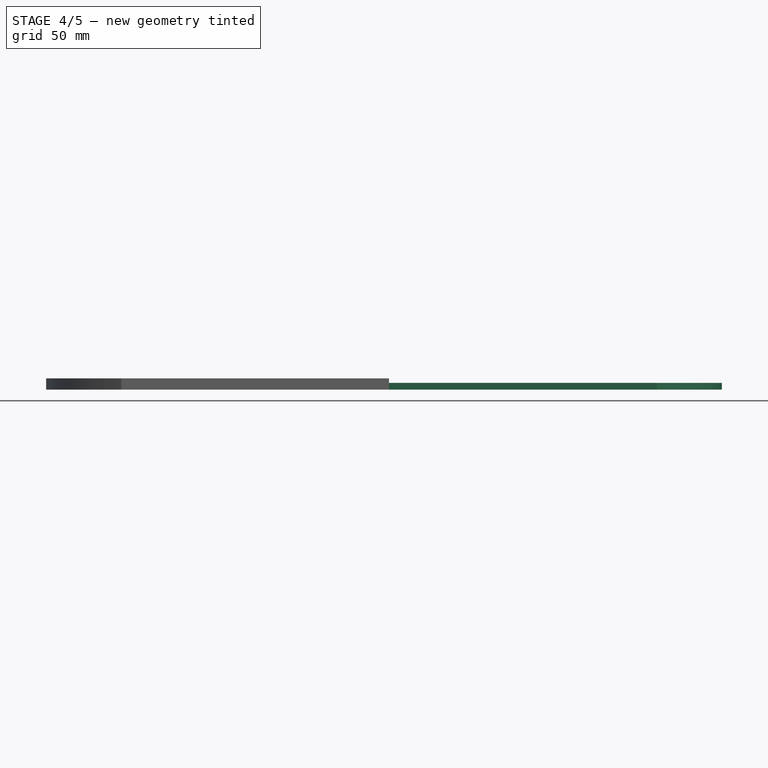
[diagram: stage 4 of 5 — front view after this stage's code; geometry added in this stage tinted green]
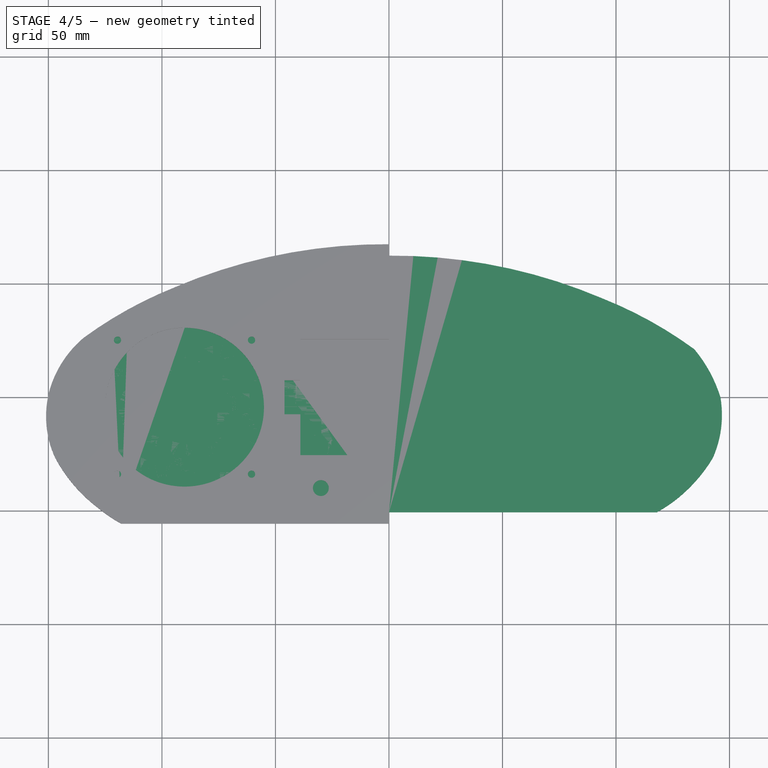
[diagram: stage 4 of 5 — top view after this stage's code; geometry added in this stage tinted green]
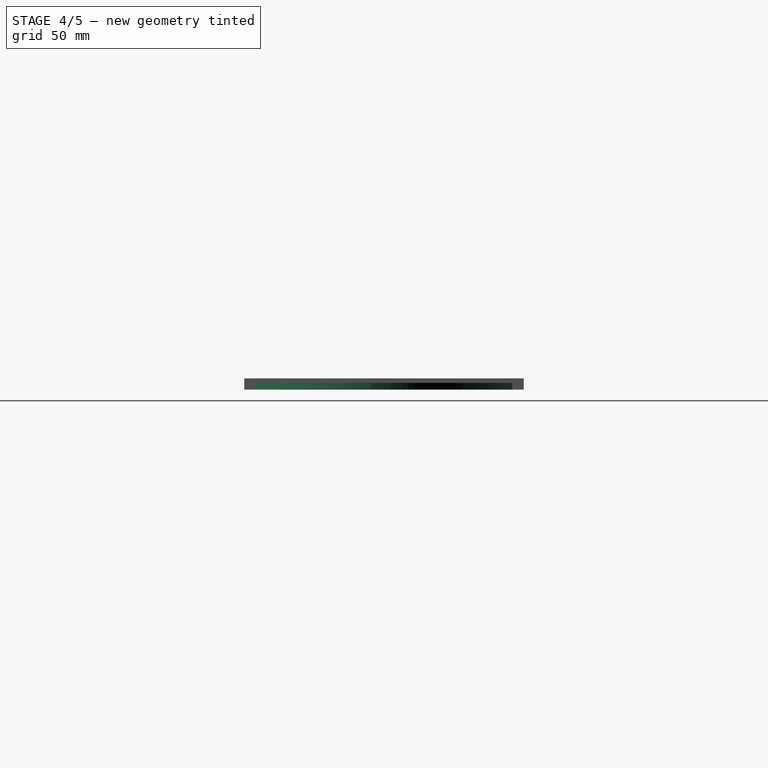
[diagram: stage 4 of 5 — right view after this stage's code; geometry added in this stage tinted green]
FEATURE [Sketcher::SketchObject] Sketch022  label="Ausschnitte_8"
  MapMode = 5
  Support = -> [XY_Plane004]
  sketch-geometry (9):
    g0: ArcOfCircle CenterX=-94.04 CenterY=33.1 CenterZ=0 NormalX=0 NormalY=0 NormalZ=1 AngleXU=0 Radius=3.68 StartAngle=1.96185 EndAngle=5.04375
    g1: ArcOfCircle CenterX=-12.35 CenterY=49.29 CenterZ=0 NormalX=0 NormalY=0 NormalZ=1 AngleXU=0 Radius=6.44 StartAngle=5.18372 EndAngle=7.90448
    g2: ArcOfCircle CenterX=-33.38 CenterY=35.2 CenterZ=0 NormalX=0 NormalY=0 NormalZ=1 AngleXU=0 Radius=4.08 StartAngle=2.29315 EndAngle=5.45552
    g3: ArcOfCircle CenterX=-31.66 CenterY=43.42 CenterZ=0 NormalX=0 NormalY=0 NormalZ=1 AngleXU=0 Radius=1.11 StartAngle=5.04352 EndAngle=7.70334
    g4: ArcOfCircle CenterX=-9.98 CenterY=-143.71 CenterZ=0 NormalX=0 NormalY=0 NormalZ=1 AngleXU=0 Radius=199.45 StartAngle=1.58431 EndAngle=2.01362
    g5: ArcOfCircle CenterX=4.43 CenterY=-7.76 CenterZ=0 NormalX=0 NormalY=0 NormalZ=1 AngleXU=0 Radius=53.15 StartAngle=1.83454 EndAngle=2.29088
    g6: ArcOfCircle CenterX=-22.65 CenterY=27.48 CenterZ=0 NormalX=0 NormalY=0 NormalZ=1 AngleXU=0 Radius=17.22 StartAngle=2.09702 EndAngle=2.46508
    g7: ArcOfCircle CenterX=-30.99 CenterY=-4.77 CenterZ=0 NormalX=0 NormalY=0 NormalZ=1 AngleXU=0 Radius=49.29 StartAngle=1.58101 EndAngle=1.78497
    g8: ArcOfCircle CenterX=7.46 CenterY=-241.81 CenterZ=0 NormalX=0 NormalY=0 NormalZ=1 AngleXU=0 Radius=289.37 StartAngle=1.74069 EndAngle=1.92477
  constraints (36):
    c: Coincident(g4,g0)
    c: Coincident(g4,g1)
    c: Coincident(g5,g1)
    c: Coincident(g5,g2)
    c: Coincident(g6,g3)
    c: Coincident(g6,g2)
    c: Coincident(g8,g7)
    c: Coincident(g8,g0)
    c: Coincident(g7,g3)
    c: Radius(g1) = 6.44
    c: Radius(g4) = 199.45
    c: Radius(g5) = 53.15
    c: Radius(g2) = 4.08
    c: Radius(g6) = 17.22
    c: Radius(g3) = 1.11
    c: Radius(g7) = 49.29
    c: Radius(g8) = 289.37
    c: Radius(g0) = 3.68
    c: DistanceY(g1) = 49.29
    c: DistanceX(g1) = -12.35
    c: DistanceY(g2) = 35.2
    c: DistanceX(g2) = -33.38
    c: DistanceY(g0) = 33.1
    c: DistanceX(g0) = -94.04
    c: DistanceY(g3) = 43.42
    c: DistanceX(g3) = -31.66
    c: DistanceY(g5) = -7.76
    c: DistanceX(g5) = 4.43
    c: DistanceY(g4) = -143.71
    c: DistanceX(g4) = -9.98
    c: DistanceY(g8) = -241.81
    c: DistanceX(g8) = 7.46
    c: DistanceY(g7) = -4.77
    c: DistanceX(g7) = -30.99
    c: DistanceY(g6) = 27.48
    c: DistanceX(g6) = -22.65
FEATURE [Sketcher::SketchObject] CopySketch021001  label="CopySketch022"
  Placement = pos=(0,0,3) rot=(0,0,1;0rad)
  sketch-geometry (8):
    g0: ArcOfCircle CenterX=-52.28 CenterY=33.51 CenterZ=0 NormalX=0 NormalY=0 NormalZ=1 AngleXU=0 Radius=2.83 StartAngle=5.49536 EndAngle=7.82271
    g1: ArcOfCircle CenterX=-107.47 CenterY=13.9 CenterZ=0 NormalX=0 NormalY=0 NormalZ=1 AngleXU=0 Radius=3.2 StartAngle=2.12748 EndAngle=5.14289
    g2: ArcOfCircle CenterX=-67.12 CenterY=3 CenterZ=0 NormalX=0 NormalY=0 NormalZ=1 AngleXU=0 Radius=2.89 StartAngle=2.84914 EndAngle=6.14599
    g3: ArcOfCircle CenterX=-63.7744 CenterY=25.47 CenterZ=0 NormalX=0 NormalY=0 NormalZ=1 AngleXU=0 Radius=1.27 StartAngle=5.61181 EndAngle=8.37132
    g4: ArcOfCircle CenterX=-6.55 CenterY=-7.47 CenterZ=0 NormalX=0 NormalY=0 NormalZ=1 AngleXU=0 Radius=58.58 StartAngle=2.41368 EndAngle=2.96875
    g5: ArcOfCircle CenterX=-5.95 CenterY=-6.33 CenterZ=0 NormalX=0 NormalY=0 NormalZ=1 AngleXU=0 Radius=64.74 StartAngle=2.64209 EndAngle=2.98396
    g6: ArcOfCircle CenterX=-13.62 CenterY=-173.11 CenterZ=0 NormalX=0 NormalY=0 NormalZ=1 AngleXU=0 Radius=206.04 StartAngle=1.81983 EndAngle=2.03646
    g7: ArcOfCircle CenterX=-6.49 CenterY=-187.82 CenterZ=0 NormalX=0 NormalY=0 NormalZ=1 AngleXU=0 Radius=228.77 StartAngle=1.77192 EndAngle=2.03621
  constraints (32):
    c: Coincident(g4,g0)
    c: Coincident(g4,g2)
    c: Coincident(g5,g3)
    c: Coincident(g5,g2)
    c: Coincident(g6,g3)
    c: Coincident(g6,g1)
    c: Coincident(g7,g1)
    c: Coincident(g7,g0)
    c: Radius(g0) = 2.83
    c: Radius(g7) = 228.77
    c: Radius(g4) = 58.58
    c: Radius(g2) = 2.89
    c: Radius(g5) = 64.74
    c: Radius(g3) = 1.27
    c: Radius(g6) = 206.04
    c: Radius(g1) = 3.2
    c: DistanceY(g0) = 33.51
    c: DistanceX(g0) = -52.28
    c: DistanceY(g5) = -6.33
    c: DistanceX(g5) = -5.95
    c: DistanceY(g4) = -7.47
    c: DistanceX(g4) = -6.55
    c: DistanceX(g2) = -67.12
    c: DistanceY(g2) = 3
    c: DistanceY(g3) = 25.47
    c: DistanceY(g1) = 13.9
    c: DistanceX(g1) = -107.47
    c: DistanceY(g6) = -173.11
    c: DistanceX(g6) = -13.62
    c: DistanceY(g7) = -187.82
    c: DistanceX(g7) = -6.49
    c: DistanceX(g3) = -62.78
FEATURE [PartDesign::Pocket] Pocket014
  BaseFeature = -> Pocket013
  Length = 5
  Length2 = 100
  Profile = -> CopySketch021001
  Type = 1
FEATURE [Sketcher::SketchObject] CopySketch022  label="CopySketch023"
  Placement = pos=(0,0,3) rot=(0,0,1;0rad)
  sketch-geometry (9):
    g0: ArcOfCircle CenterX=-94.04 CenterY=33.1 CenterZ=0 NormalX=0 NormalY=0 NormalZ=1 AngleXU=0 Radius=3.68 StartAngle=1.96185 EndAngle=5.04375
    g1: ArcOfCircle CenterX=-12.35 CenterY=49.29 CenterZ=0 NormalX=0 NormalY=0 NormalZ=1 AngleXU=0 Radius=6.44 StartAngle=5.18372 EndAngle=7.90448
    g2: ArcOfCircle CenterX=-33.38 CenterY=35.2 CenterZ=0 NormalX=0 NormalY=0 NormalZ=1 AngleXU=0 Radius=4.08 StartAngle=2.29315 EndAngle=5.45552
    g3: ArcOfCircle CenterX=-31.66 CenterY=43.42 CenterZ=0 NormalX=0 NormalY=0 NormalZ=1 AngleXU=0 Radius=1.11 StartAngle=5.04352 EndAngle=7.70334
    g4: ArcOfCircle CenterX=-9.98 CenterY=-143.71 CenterZ=0 NormalX=0 NormalY=0 NormalZ=1 AngleXU=0 Radius=199.45 StartAngle=1.58431 EndAngle=2.01362
    g5: ArcOfCircle CenterX=4.43 CenterY=-7.76 CenterZ=0 NormalX=0 NormalY=0 NormalZ=1 AngleXU=0 Radius=53.15 StartAngle=1.83454 EndAngle=2.29088
    g6: ArcOfCircle CenterX=-22.65 CenterY=27.48 CenterZ=0 NormalX=0 NormalY=0 NormalZ=1 AngleXU=0 Radius=17.22 StartAngle=2.09702 EndAngle=2.46508
    g7: ArcOfCircle CenterX=-30.99 CenterY=-4.77 CenterZ=0 NormalX=0 NormalY=0 NormalZ=1 AngleXU=0 Radius=49.29 StartAngle=1.58101 EndAngle=1.78497
    g8: ArcOfCircle CenterX=7.46 CenterY=-241.81 CenterZ=0 NormalX=0 NormalY=0 NormalZ=1 AngleXU=0 Radius=289.37 StartAngle=1.74069 EndAngle=1.92477
  constraints (36):
    c: Coincident(g4,g0)
    c: Coincident(g4,g1)
    c: Coincident(g5,g1)
    c: Coincident(g5,g2)
    c: Coincident(g6,g3)
    c: Coincident(g6,g2)
    c: Coincident(g8,g7)
    c: Coincident(g8,g0)
    c: Coincident(g7,g3)
    c: Radius(g1) = 6.44
    c: Radius(g4) = 199.45
    c: Radius(g5) = 53.15
    c: Radius(g2) = 4.08
    c: Radius(g6) = 17.22
    c: Radius(g3) = 1.11
    c: Radius(g7) = 49.29
    c: Radius(g8) = 289.37
    c: Radius(g0) = 3.68
    c: DistanceY(g1) = 49.29
    c: DistanceX(g1) = -12.35
    c: DistanceY(g2) = 35.2
    c: DistanceX(g2) = -33.38
    c: DistanceY(g0) = 33.1
    c: DistanceX(g0) = -94.04
    c: DistanceY(g3) = 43.42
    c: DistanceX(g3) = -31.66
    c: DistanceY(g5) = -7.76
    c: DistanceX(g5) = 4.43
    c: DistanceY(g4) = -143.71
    c: DistanceX(g4) = -9.98
    c: DistanceY(g8) = -241.81
    c: DistanceX(g8) = 7.46
    c: DistanceY(g7) = -4.77
    c: DistanceX(g7) = -30.99
    c: DistanceY(g6) = 27.48
    c: DistanceX(g6) = -22.65
FEATURE [PartDesign::Pocket] Pocket015
  BaseFeature = -> Pocket014
  Length = 5
  Length2 = 100
  Profile = -> CopySketch022
  Type = 1
FEATURE [Sketcher::SketchObject] Sketch027  label="Umriss006"
  MapMode = 5
  Support = -> [XY_Plane013]
  sketch-geometry (8):
    g0: LineSegment StartX=0 StartY=67.42 StartZ=0 EndX=0 EndY=-55.65 EndZ=0
    g1: LineSegment StartX=0 StartY=-55.65 StartZ=0 EndX=-117.94 EndY=-55.65 EndZ=0
    g2: ArcOfCircle CenterX=-1.71052 CenterY=-168.144 CenterZ=0 NormalX=0 NormalY=0 NormalZ=1 AngleXU=0 Radius=235.57 StartAngle=1.56354 EndAngle=1.97395
    g3: ArcOfCircle CenterX=-26.6546 CenterY=-121.039 CenterZ=0 NormalX=0 NormalY=0 NormalZ=1 AngleXU=0 Radius=182.51 StartAngle=1.94949 EndAngle=2.20297
    g4: ArcOfCircle CenterX=-103.63 CenterY=-10.3082 CenterZ=0 NormalX=0 NormalY=0 NormalZ=1 AngleXU=0 Radius=47.81 StartAngle=2.27271 EndAngle=2.7915
    g5: ArcOfCircle CenterX=-107.652 CenterY=-8.39999 CenterZ=0 NormalX=0 NormalY=0 NormalZ=1 AngleXU=0 Radius=43.38 StartAngle=2.80102 EndAngle=3.57886
    g6: ArcOfCircle CenterX=-87.015 CenterY=5.5205 CenterZ=0 NormalX=0 NormalY=0 NormalZ=1 AngleXU=0 Radius=68.08 StartAngle=3.63576 EndAngle=4.07298
    g7: ArcOfCircle CenterX=-88.8574 CenterY=-2.05184 CenterZ=0 NormalX=0 NormalY=0 NormalZ=1 AngleXU=0 Radius=60.98 StartAngle=4.0231 EndAngle=4.21524
  constraints (30):
    c: PointOnObject(g0,g-2)
    c: PointOnObject(g0,g-2)
    c: DistanceY(g0,g0) = 123.07
    c: DistanceY(g-1,g0) = 67.42
    c: Coincident(g1,g0)
    c: Horizontal(g1)
    c: DistanceX(g1,g1) = 117.94
    c: Coincident(g2,g0)
    c: Coincident(g4,g3)
    c: Coincident(g6,g5)
    c: Coincident(g7,g6)
    c: Coincident(g7,g1)
    c: Radius(g2) = 235.57
    c: Radius(g3) = 182.51
    c: Radius(g4) = 47.81
    c: Radius(g5) = 43.38
    c: Radius(g6) = 68.08
    c: Radius(g7) = 60.98
    c: DistanceX(g2,g-1) = 94.13
    c: DistanceX(g3,g-1) = 134.5
    c: DistanceX(g4,g-1) = 148.54
    c: DistanceX(g5,g-1) = 146.95
    c: DistanceX(g6) = -127.64
    c: DistanceY(g6,g-1) = 49.11
    c: DistanceY(g5,g-1) = 26.77
    c: DistanceY(g-1,g5) = 6.09
    c: DistanceY(g-1,g3) = 26.2
    c: DistanceY(g-1,g2) = 48.54
    c: Coincident(g3,g2)
    c: Coincident(g4,g5)
FEATURE [PartDesign::Pad] Pad006
  Length = 3
  Length2 = 100
  Profile = -> Sketch027
  Type = 0
FEATURE [Sketcher::SketchObject] Sketch028  label="Innenriss002"
  MapMode = 5
  Placement = pos=(0,0,3) rot=(0,0,1;0rad)
  Support = -> [Pad006]
  sketch-geometry (8):
    g0: LineSegment StartX=0 StartY=62.42 StartZ=0 EndX=0 EndY=-50.65 EndZ=0
    g1: LineSegment StartX=0 StartY=-50.65 StartZ=0 EndX=-117.94 EndY=-50.65 EndZ=0
    g2: ArcOfCircle CenterX=-1.71052 CenterY=-173.144 CenterZ=0 NormalX=0 NormalY=0 NormalZ=1 AngleXU=0 Radius=235.57 StartAngle=1.56354 EndAngle=1.97395
    g3: ArcOfCircle CenterX=-26.6546 CenterY=-126.039 CenterZ=0 NormalX=0 NormalY=0 NormalZ=1 AngleXU=0 Radius=182.51 StartAngle=1.94949 EndAngle=2.20297
    g4: ArcOfCircle CenterX=-87.5121 CenterY=-18.0464 CenterZ=0 NormalX=0 NormalY=0 NormalZ=1 AngleXU=0 Radius=61.2221 StartAngle=2.44573 EndAngle=2.84238
    g5: ArcOfCircle CenterX=-84.3231 CenterY=8.4117 CenterZ=0 NormalX=0 NormalY=0 NormalZ=1 AngleXU=0 Radius=68.08 StartAngle=3.68467 EndAngle=4.02274
    g6: ArcOfCircle CenterX=-88.8574 CenterY=2.94816 CenterZ=0 NormalX=0 NormalY=0 NormalZ=1 AngleXU=0 Radius=60.98 StartAngle=4.0231 EndAngle=4.21524
    g7: ArcOfCircle CenterX=-100.235 CenterY=-7.7771 CenterZ=0 NormalX=0 NormalY=0 NormalZ=1 AngleXU=0 Radius=46.4351 StartAngle=2.97332 EndAngle=3.56297
  constraints (30):
    c: PointOnObject(g0,g-2)
    c: PointOnObject(g0,g-2)
    c: DistanceY(g0,g0) = 113.07
    c: DistanceY(g-1,g0) = 62.42
    c: Coincident(g1,g0)
    c: Horizontal(g1)
    c: DistanceX(g1,g1) = 117.94
    c: Coincident(g2,g0)
    c: Coincident(g4,g3)
    c: Coincident(g6,g5)
    c: Coincident(g6,g1)
    c: Radius(g2) = 235.57
    c: Radius(g3) = 182.51
    c: Radius(g5) = 68.08
    c: Radius(g6) = 60.98
    c: DistanceX(g2,g-1) = 94.13
    c: DistanceX(g3,g-1) = 134.5
    c: DistanceX(g5) = -127.64
    c: DistanceY(g5,g-1) = 44.11
    c: DistanceY(g5,g-1) = 26.77
    c: DistanceY(g-1,g3) = 21.2
    c: DistanceY(g-1,g2) = 43.54
    c: Coincident(g3,g2)
    c: Radius(g4) = 61.2221
    c: PointOnObject(g4,g-1)
    c: Coincident(g7,g4)
    c: Coincident(g7,g5)
    c: Radius(g7) = 46.4351
    c: DistanceX(g4) = -146.014
    c: DistanceX(g5) = -142.608
FEATURE [PartDesign::Pocket] Pocket030
  BaseFeature = -> Pad006
  Length = 70
  Length2 = 100
  Profile = -> Sketch028
  Type = 0
FEATURE [Part::Feature] Pocket031  label="Rahmen001"
  shape: bbox 151 x 123.1 x 70 mm, 18 faces (baked)
FEATURE [PartDesign::Body] PocketBody002  label="Korpus_links001"
  Group = -> [Sketch027,Pad006,Sketch028,Pocket030]
  Origin = -> Origin010
  Placement = pos=(0,0,80) rot=(0,0,1;0rad)
  Tip = -> Pocket030
FEATURE [Sketcher::SketchObject] Sketch029  label="Umriss007"
  MapMode = 5
  Support = -> [XY_Plane014]
  sketch-geometry (8):
    g0: LineSegment StartX=0 StartY=67.42 StartZ=0 EndX=0 EndY=-55.65 EndZ=0
    g1: LineSegment StartX=0 StartY=-55.65 StartZ=0 EndX=-117.94 EndY=-55.65 EndZ=0
    g2: ArcOfCircle CenterX=-1.71052 CenterY=-168.144 CenterZ=0 NormalX=0 NormalY=0 NormalZ=1 AngleXU=0 Radius=235.57 StartAngle=1.56354 EndAngle=1.97395
    g3: ArcOfCircle CenterX=-26.6546 CenterY=-121.039 CenterZ=0 NormalX=0 NormalY=0 NormalZ=1 AngleXU=0 Radius=182.51 StartAngle=1.94949 EndAngle=2.20297
    g4: ArcOfCircle CenterX=-103.63 CenterY=-10.3082 CenterZ=0 NormalX=0 NormalY=0 NormalZ=1 AngleXU=0 Radius=47.81 StartAngle=2.27271 EndAngle=2.7915
    g5: ArcOfCircle CenterX=-107.652 CenterY=-8.39999 CenterZ=0 NormalX=0 NormalY=0 NormalZ=1 AngleXU=0 Radius=43.38 StartAngle=2.80102 EndAngle=3.57886
    g6: ArcOfCircle CenterX=-87.015 CenterY=5.5205 CenterZ=0 NormalX=0 NormalY=0 NormalZ=1 AngleXU=0 Radius=68.08 StartAngle=3.63576 EndAngle=4.07298
    g7: ArcOfCircle CenterX=-88.8574 CenterY=-2.05184 CenterZ=0 NormalX=0 NormalY=0 NormalZ=1 AngleXU=0 Radius=60.98 StartAngle=4.0231 EndAngle=4.21524
  constraints (30):
    c: PointOnObject(g0,g-2)
    c: PointOnObject(g0,g-2)
    c: DistanceY(g0,g0) = 123.07
    c: DistanceY(g-1,g0) = 67.42
    c: Coincident(g1,g0)
    c: Horizontal(g1)
    c: DistanceX(g1,g1) = 117.94
    c: Coincident(g2,g0)
    c: Coincident(g4,g3)
    c: Coincident(g6,g5)
    c: Coincident(g7,g6)
    c: Coincident(g7,g1)
    c: Radius(g2) = 235.57
    c: Radius(g3) = 182.51
    c: Radius(g4) = 47.81
    c: Radius(g5) = 43.38
    c: Radius(g6) = 68.08
    c: Radius(g7) = 60.98
    c: DistanceX(g2,g-1) = 94.13
    c: DistanceX(g3,g-1) = 134.5
    c: DistanceX(g4,g-1) = 148.54
    c: DistanceX(g5,g-1) = 146.95
    c: DistanceX(g6) = -127.64
    c: DistanceY(g6,g-1) = 49.11
    c: DistanceY(g5,g-1) = 26.77
    c: DistanceY(g-1,g5) = 6.09
    c: DistanceY(g-1,g3) = 26.2
    c: DistanceY(g-1,g2) = 48.54
    c: Coincident(g3,g2)
    c: Coincident(g4,g5)
FEATURE [PartDesign::Pad] Pad007
  Length = 3
  Length2 = 100
  Profile = -> Sketch029
  Type = 0
FEATURE [Sketcher::SketchObject] Sketch030  label="Innenriss003"
  MapMode = 5
  Placement = pos=(0,0,3) rot=(0,0,1;0rad)
  Support = -> [Pad007]
  sketch-geometry (8):
    g0: LineSegment StartX=0 StartY=62.42 StartZ=0 EndX=0 EndY=-50.65 EndZ=0
    g1: LineSegment StartX=0 StartY=-50.65 StartZ=0 EndX=-117.94 EndY=-50.65 EndZ=0
    g2: ArcOfCircle CenterX=-1.71052 CenterY=-173.144 CenterZ=0 NormalX=0 NormalY=0 NormalZ=1 AngleXU=0 Radius=235.57 StartAngle=1.56354 EndAngle=1.97395
    g3: ArcOfCircle CenterX=-26.6546 CenterY=-126.039 CenterZ=0 NormalX=0 NormalY=0 NormalZ=1 AngleXU=0 Radius=182.51 StartAngle=1.94949 EndAngle=2.20297
    g4: ArcOfCircle CenterX=-87.5121 CenterY=-18.0464 CenterZ=0 NormalX=0 NormalY=0 NormalZ=1 AngleXU=0 Radius=61.2221 StartAngle=2.44573 EndAngle=2.84238
    g5: ArcOfCircle CenterX=-84.3231 CenterY=8.4117 CenterZ=0 NormalX=0 NormalY=0 NormalZ=1 AngleXU=0 Radius=68.08 StartAngle=3.68467 EndAngle=4.02274
    g6: ArcOfCircle CenterX=-88.8574 CenterY=2.94816 CenterZ=0 NormalX=0 NormalY=0 NormalZ=1 AngleXU=0 Radius=60.98 StartAngle=4.0231 EndAngle=4.21524
    g7: ArcOfCircle CenterX=-100.235 CenterY=-7.7771 CenterZ=0 NormalX=0 NormalY=0 NormalZ=1 AngleXU=0 Radius=46.4351 StartAngle=2.97332 EndAngle=3.56297
  constraints (30):
    c: PointOnObject(g0,g-2)
    c: PointOnObject(g0,g-2)
    c: DistanceY(g0,g0) = 113.07
    c: DistanceY(g-1,g0) = 62.42
    c: Coincident(g1,g0)
    c: Horizontal(g1)
    c: DistanceX(g1,g1) = 117.94
    c: Coincident(g2,g0)
    c: Coincident(g4,g3)
    c: Coincident(g6,g5)
    c: Coincident(g6,g1)
    c: Radius(g2) = 235.57
    c: Radius(g3) = 182.51
    c: Radius(g5) = 68.08
    c: Radius(g6) = 60.98
    c: DistanceX(g2,g-1) = 94.13
    c: DistanceX(g3,g-1) = 134.5
    c: DistanceX(g5) = -127.64
    c: DistanceY(g5,g-1) = 44.11
    c: DistanceY(g5,g-1) = 26.77
    c: DistanceY(g-1,g3) = 21.2
    c: DistanceY(g-1,g2) = 43.54
    c: Coincident(g3,g2)
    c: Radius(g4) = 61.2221
    c: PointOnObject(g4,g-1)
    c: Coincident(g7,g4)
    c: Coincident(g7,g5)
    c: Radius(g7) = 46.4351
    c: DistanceX(g4) = -146.014
    c: DistanceX(g5) = -142.608
FEATURE [PartDesign::Pocket] Pocket032
  BaseFeature = -> Pad007
  Length = 70
  Length2 = 100
  Profile = -> Sketch030
  Type = 0
FEATURE [PartDesign::Body] PocketBody003  label="Korpus_rechts001"
  Group = -> [Sketch029,Pad007,Sketch030,Pocket032]
  Origin = -> Origin011
  Placement = pos=(0,0,83) rot=(0,1,0;3.14159rad)
  Tip = -> Pocket032
FEATURE [App::Part] Part003  label="Montagering"
  Group = -> [PocketBody002,Pocket031,PocketBody003]
  License = CC BY 3.0
  LicenseURL = http://creativecommons.org/licenses/by/3.0/
  Origin = -> Origin009
  Placement = pos=(0,0,-5) rot=(0,0,1;0rad)
FEATURE [Sketcher::SketchObject] Sketch031  label="Innenriss004"
  MapMode = 5
  Placement = pos=(0,0,0) rot=(0,1,0;3.14159rad)
  sketch-geometry (8):
    g0: LineSegment StartX=0 StartY=62.42 StartZ=0 EndX=0 EndY=-50.65 EndZ=0
    g1: LineSegment StartX=0 StartY=-50.65 StartZ=0 EndX=-117.94 EndY=-50.65 EndZ=0
    g2: ArcOfCircle CenterX=-1.71052 CenterY=-173.144 CenterZ=0 NormalX=0 NormalY=0 NormalZ=1 AngleXU=0 Radius=235.57 StartAngle=1.56354 EndAngle=1.97395
    g3: ArcOfCircle CenterX=-26.6546 CenterY=-126.039 CenterZ=0 NormalX=0 NormalY=0 NormalZ=1 AngleXU=0 Radius=182.51 StartAngle=1.94949 EndAngle=2.20297
    g4: ArcOfCircle CenterX=-87.5121 CenterY=-18.0464 CenterZ=0 NormalX=0 NormalY=0 NormalZ=1 AngleXU=0 Radius=61.2221 StartAngle=2.44573 EndAngle=2.84238
    g5: ArcOfCircle CenterX=-84.3231 CenterY=8.4117 CenterZ=0 NormalX=0 NormalY=0 NormalZ=1 AngleXU=0 Radius=68.08 StartAngle=3.68467 EndAngle=4.02274
    g6: ArcOfCircle CenterX=-88.8574 CenterY=2.94816 CenterZ=0 NormalX=0 NormalY=0 NormalZ=1 AngleXU=0 Radius=60.98 StartAngle=4.0231 EndAngle=4.21524
    g7: ArcOfCircle CenterX=-100.235 CenterY=-7.7771 CenterZ=0 NormalX=0 NormalY=0 NormalZ=1 AngleXU=0 Radius=46.4351 StartAngle=2.97332 EndAngle=3.56297
  constraints (30):
    c: PointOnObject(g0,g-2)
    c: PointOnObject(g0,g-2)
    c: DistanceY(g0,g0) = 113.07
    c: DistanceY(g-1,g0) = 62.42
    c: Coincident(g1,g0)
    c: Horizontal(g1)
    c: DistanceX(g1,g1) = 117.94
    c: Coincident(g2,g0)
    c: Coincident(g4,g3)
    c: Coincident(g6,g5)
    c: Coincident(g6,g1)
    c: Radius(g2) = 235.57
    c: Radius(g3) = 182.51
    c: Radius(g5) = 68.08
    c: Radius(g6) = 60.98
    c: DistanceX(g2,g-1) = 94.13
    c: DistanceX(g3,g-1) = 134.5
    c: DistanceX(g5) = -127.64
    c: DistanceY(g5,g-1) = 44.11
    c: DistanceY(g5,g-1) = 26.77
    c: DistanceY(g-1,g3) = 21.2
    c: DistanceY(g-1,g2) = 43.54
    c: Coincident(g3,g2)
    c: Radius(g4) = 61.2221
    c: PointOnObject(g4,g-1)
    c: Coincident(g7,g4)
    c: Coincident(g7,g5)
    c: Radius(g7) = 46.4351
    c: DistanceX(g4) = -146.014
    c: DistanceX(g5) = -142.608
FEATURE [Sketcher::SketchObject] Sketch033  label="Innenriss005"
  MapMode = 5
  sketch-geometry (8):
    g0: LineSegment StartX=0 StartY=62.42 StartZ=0 EndX=0 EndY=-50.65 EndZ=0
    g1: LineSegment StartX=0 StartY=-50.65 StartZ=0 EndX=-117.94 EndY=-50.65 EndZ=0
    g2: ArcOfCircle CenterX=-1.71052 CenterY=-173.144 CenterZ=0 NormalX=0 NormalY=0 NormalZ=1 AngleXU=0 Radius=235.57 StartAngle=1.56354 EndAngle=1.97395
    g3: ArcOfCircle CenterX=-26.6546 CenterY=-126.039 CenterZ=0 NormalX=0 NormalY=0 NormalZ=1 AngleXU=0 Radius=182.51 StartAngle=1.94949 EndAngle=2.20297
    g4: ArcOfCircle CenterX=-87.5121 CenterY=-18.0464 CenterZ=0 NormalX=0 NormalY=0 NormalZ=1 AngleXU=0 Radius=61.2221 StartAngle=2.44573 EndAngle=2.84238
    g5: ArcOfCircle CenterX=-84.3231 CenterY=8.4117 CenterZ=0 NormalX=0 NormalY=0 NormalZ=1 AngleXU=0 Radius=68.08 StartAngle=3.68467 EndAngle=4.02274
    g6: ArcOfCircle CenterX=-88.8574 CenterY=2.94816 CenterZ=0 NormalX=0 NormalY=0 NormalZ=1 AngleXU=0 Radius=60.98 StartAngle=4.0231 EndAngle=4.21524
    g7: ArcOfCircle CenterX=-100.235 CenterY=-7.7771 CenterZ=0 NormalX=0 NormalY=0 NormalZ=1 AngleXU=0 Radius=46.4351 StartAngle=2.97332 EndAngle=3.56297
  constraints (30):
    c: PointOnObject(g0,g-2)
    c: PointOnObject(g0,g-2)
    c: DistanceY(g0,g0) = 113.07
    c: DistanceY(g-1,g0) = 62.42
    c: Coincident(g1,g0)
    c: Horizontal(g1)
    c: DistanceX(g1,g1) = 117.94
    c: Coincident(g2,g0)
    c: Coincident(g4,g3)
    c: Coincident(g6,g5)
    c: Coincident(g6,g1)
    c: Radius(g2) = 235.57
    c: Radius(g3) = 182.51
    c: Radius(g5) = 68.08
    c: Radius(g6) = 60.98
    c: DistanceX(g2,g-1) = 94.13
    c: DistanceX(g3,g-1) = 134.5
    c: DistanceX(g5) = -127.64
    c: DistanceY(g5,g-1) = 44.11
    c: DistanceY(g5,g-1) = 26.77
    c: DistanceY(g-1,g3) = 21.2
    c: DistanceY(g-1,g2) = 43.54
    c: Coincident(g3,g2)
    c: Radius(g4) = 61.2221
    c: PointOnObject(g4,g-1)
    c: Coincident(g7,g4)
    c: Coincident(g7,g5)
    c: Radius(g7) = 46.4351
    c: DistanceX(g4) = -146.014
    c: DistanceX(g5) = -142.608
FEATURE [Sketcher::SketchObject] CopySketch033
  Placement = pos=(0,0,3) rot=(0,0,1;0rad)
  sketch-geometry (8):
    g0: LineSegment StartX=0 StartY=62.42 StartZ=0 EndX=0 EndY=-50.65 EndZ=0
    g1: LineSegment StartX=0 StartY=-50.65 StartZ=0 EndX=-117.94 EndY=-50.65 EndZ=0
    g2: ArcOfCircle CenterX=-1.71052 CenterY=-173.144 CenterZ=0 NormalX=0 NormalY=0 NormalZ=1 AngleXU=0 Radius=235.57 StartAngle=1.56354 EndAngle=1.97395
    g3: ArcOfCircle CenterX=-26.6546 CenterY=-126.039 CenterZ=0 NormalX=0 NormalY=0 NormalZ=1 AngleXU=0 Radius=182.51 StartAngle=1.94949 EndAngle=2.20297
    g4: ArcOfCircle CenterX=-87.5121 CenterY=-18.0464 CenterZ=0 NormalX=0 NormalY=0 NormalZ=1 AngleXU=0 Radius=61.2221 StartAngle=2.44573 EndAngle=2.84238
    g5: ArcOfCircle CenterX=-84.3231 CenterY=8.4117 CenterZ=0 NormalX=0 NormalY=0 NormalZ=1 AngleXU=0 Radius=68.08 StartAngle=3.68467 EndAngle=4.02274
    g6: ArcOfCircle CenterX=-88.8574 CenterY=2.94816 CenterZ=0 NormalX=0 NormalY=0 NormalZ=1 AngleXU=0 Radius=60.98 StartAngle=4.0231 EndAngle=4.21524
    g7: ArcOfCircle CenterX=-100.235 CenterY=-7.7771 CenterZ=0 NormalX=0 NormalY=0 NormalZ=1 AngleXU=0 Radius=46.4351 StartAngle=2.97332 EndAngle=3.56297
  constraints (30):
    c: PointOnObject(g0,g-2)
    c: PointOnObject(g0,g-2)
    c: DistanceY(g0,g0) = 113.07
    c: DistanceY(g-1,g0) = 62.42
    c: Coincident(g1,g0)
    c: Horizontal(g1)
    c: DistanceX(g1,g1) = 117.94
    c: Coincident(g2,g0)
    c: Coincident(g4,g3)
    c: Coincident(g6,g5)
    c: Coincident(g6,g1)
    c: Radius(g2) = 235.57
    c: Radius(g3) = 182.51
    c: Radius(g5) = 68.08
    c: Radius(g6) = 60.98
    c: DistanceX(g2,g-1) = 94.13
    c: DistanceX(g3,g-1) = 134.5
    c: DistanceX(g5) = -127.64
    c: DistanceY(g5,g-1) = 44.11
    c: DistanceY(g5,g-1) = 26.77
    c: DistanceY(g-1,g3) = 21.2
    c: DistanceY(g-1,g2) = 43.54
    c: Coincident(g3,g2)
    c: Radius(g4) = 61.2221
    c: PointOnObject(g4,g-1)
    c: Coincident(g7,g4)
    c: Coincident(g7,g5)
    c: Radius(g7) = 46.4351
    c: DistanceX(g4) = -146.014
    c: DistanceX(g5) = -142.608
FEATURE [Sketcher::SketchObject] CopySketch033001  label="CopySketch021013"
  Placement = pos=(0,0,3) rot=(0,0,1;0rad)
  sketch-geometry (8):
    g0: LineSegment StartX=0 StartY=62.42 StartZ=0 EndX=0 EndY=-50.65 EndZ=0
    g1: LineSegment StartX=0 StartY=-50.65 StartZ=0 EndX=-117.94 EndY=-50.65 EndZ=0
    g2: ArcOfCircle CenterX=-1.71052 CenterY=-173.144 CenterZ=0 NormalX=0 NormalY=0 NormalZ=1 AngleXU=0 Radius=235.57 StartAngle=1.56354 EndAngle=1.97395
    g3: ArcOfCircle CenterX=-26.6546 CenterY=-126.039 CenterZ=0 NormalX=0 NormalY=0 NormalZ=1 AngleXU=0 Radius=182.51 StartAngle=1.94949 EndAngle=2.20297
    g4: ArcOfCircle CenterX=-87.5121 CenterY=-18.0464 CenterZ=0 NormalX=0 NormalY=0 NormalZ=1 AngleXU=0 Radius=61.2221 StartAngle=2.44573 EndAngle=2.84238
    g5: ArcOfCircle CenterX=-84.3231 CenterY=8.4117 CenterZ=0 NormalX=0 NormalY=0 NormalZ=1 AngleXU=0 Radius=68.08 StartAngle=3.68467 EndAngle=4.02274
    g6: ArcOfCircle CenterX=-88.8574 CenterY=2.94816 CenterZ=0 NormalX=0 NormalY=0 NormalZ=1 AngleXU=0 Radius=60.98 StartAngle=4.0231 EndAngle=4.21524
    g7: ArcOfCircle CenterX=-100.235 CenterY=-7.7771 CenterZ=0 NormalX=0 NormalY=0 NormalZ=1 AngleXU=0 Radius=46.4351 StartAngle=2.97332 EndAngle=3.56297
  constraints (30):
    c: PointOnObject(g0,g-2)
    c: PointOnObject(g0,g-2)
    c: DistanceY(g0,g0) = 113.07
    c: DistanceY(g-1,g0) = 62.42
    c: Coincident(g1,g0)
    c: Horizontal(g1)
    c: DistanceX(g1,g1) = 117.94
    c: Coincident(g2,g0)
    c: Coincident(g4,g3)
    c: Coincident(g6,g5)
    c: Coincident(g6,g1)
    c: Radius(g2) = 235.57
    c: Radius(g3) = 182.51
    c: Radius(g5) = 68.08
    c: Radius(g6) = 60.98
    c: DistanceX(g2,g-1) = 94.13
    c: DistanceX(g3,g-1) = 134.5
    c: DistanceX(g5) = -127.64
    c: DistanceY(g5,g-1) = 44.11
    c: DistanceY(g5,g-1) = 26.77
    c: DistanceY(g-1,g3) = 21.2
    c: DistanceY(g-1,g2) = 43.54
    c: Coincident(g3,g2)
    c: Radius(g4) = 61.2221
    c: PointOnObject(g4,g-1)
    c: Coincident(g7,g4)
    c: Coincident(g7,g5)
    c: Radius(g7) = 46.4351
    c: DistanceX(g4) = -146.014
    c: DistanceX(g5) = -142.608
FEATURE [Sketcher::SketchObject] CopySketch033002  label="CopySketch021014"
  Placement = pos=(0,0,3) rot=(0,0,1;0rad)
  sketch-geometry (8):
    g0: LineSegment StartX=0 StartY=62.42 StartZ=0 EndX=0 EndY=-50.65 EndZ=0
    g1: LineSegment StartX=0 StartY=-50.65 StartZ=0 EndX=-117.94 EndY=-50.65 EndZ=0
    g2: ArcOfCircle CenterX=-1.71052 CenterY=-173.144 CenterZ=0 NormalX=0 NormalY=0 NormalZ=1 AngleXU=0 Radius=235.57 StartAngle=1.56354 EndAngle=1.97395
    g3: ArcOfCircle CenterX=-26.6546 CenterY=-126.039 CenterZ=0 NormalX=0 NormalY=0 NormalZ=1 AngleXU=0 Radius=182.51 StartAngle=1.94949 EndAngle=2.20297
    g4: ArcOfCircle CenterX=-87.5121 CenterY=-18.0464 CenterZ=0 NormalX=0 NormalY=0 NormalZ=1 AngleXU=0 Radius=61.2221 StartAngle=2.44573 EndAngle=2.84238
    g5: ArcOfCircle CenterX=-84.3231 CenterY=8.4117 CenterZ=0 NormalX=0 NormalY=0 NormalZ=1 AngleXU=0 Radius=68.08 StartAngle=3.68467 EndAngle=4.02274
    g6: ArcOfCircle CenterX=-88.8574 CenterY=2.94816 CenterZ=0 NormalX=0 NormalY=0 NormalZ=1 AngleXU=0 Radius=60.98 StartAngle=4.0231 EndAngle=4.21524
    g7: ArcOfCircle CenterX=-100.235 CenterY=-7.7771 CenterZ=0 NormalX=0 NormalY=0 NormalZ=1 AngleXU=0 Radius=46.4351 StartAngle=2.97332 EndAngle=3.56297
  constraints (30):
    c: PointOnObject(g0,g-2)
    c: PointOnObject(g0,g-2)
    c: DistanceY(g0,g0) = 113.07
    c: DistanceY(g-1,g0) = 62.42
    c: Coincident(g1,g0)
    c: Horizontal(g1)
    c: DistanceX(g1,g1) = 117.94
    c: Coincident(g2,g0)
    c: Coincident(g4,g3)
    c: Coincident(g6,g5)
    c: Coincident(g6,g1)
    c: Radius(g2) = 235.57
    c: Radius(g3) = 182.51
    c: Radius(g5) = 68.08
    c: Radius(g6) = 60.98
    c: DistanceX(g2,g-1) = 94.13
    c: DistanceX(g3,g-1) = 134.5
    c: DistanceX(g5) = -127.64
    c: DistanceY(g5,g-1) = 44.11
    c: DistanceY(g5,g-1) = 26.77
    c: DistanceY(g-1,g3) = 21.2
    c: DistanceY(g-1,g2) = 43.54
    c: Coincident(g3,g2)
    c: Radius(g4) = 61.2221
    c: PointOnObject(g4,g-1)
    c: Coincident(g7,g4)
    c: Coincident(g7,g5)
    c: Radius(g7) = 46.4351
    c: DistanceX(g4) = -146.014
    c: DistanceX(g5) = -142.608
FEATURE [Sketcher::SketchObject] CopySketch033003  label="CopySketch021015"
  sketch-geometry (8):
    g0: LineSegment StartX=0 StartY=62.42 StartZ=0 EndX=0 EndY=-50.65 EndZ=0
    g1: LineSegment StartX=0 StartY=-50.65 StartZ=0 EndX=-117.94 EndY=-50.65 EndZ=0
    g2: ArcOfCircle CenterX=-1.71052 CenterY=-173.144 CenterZ=0 NormalX=0 NormalY=0 NormalZ=1 AngleXU=0 Radius=235.57 StartAngle=1.56354 EndAngle=1.97395
    g3: ArcOfCircle CenterX=-26.6546 CenterY=-126.039 CenterZ=0 NormalX=0 NormalY=0 NormalZ=1 AngleXU=0 Radius=182.51 StartAngle=1.94949 EndAngle=2.20297
    g4: ArcOfCircle CenterX=-87.5121 CenterY=-18.0464 CenterZ=0 NormalX=0 NormalY=0 NormalZ=1 AngleXU=0 Radius=61.2221 StartAngle=2.44573 EndAngle=2.84238
    g5: ArcOfCircle CenterX=-84.3231 CenterY=8.4117 CenterZ=0 NormalX=0 NormalY=0 NormalZ=1 AngleXU=0 Radius=68.08 StartAngle=3.68467 EndAngle=4.02274
    g6: ArcOfCircle CenterX=-88.8574 CenterY=2.94816 CenterZ=0 NormalX=0 NormalY=0 NormalZ=1 AngleXU=0 Radius=60.98 StartAngle=4.0231 EndAngle=4.21524
    g7: ArcOfCircle CenterX=-100.235 CenterY=-7.7771 CenterZ=0 NormalX=0 NormalY=0 NormalZ=1 AngleXU=0 Radius=46.4351 StartAngle=2.97332 EndAngle=3.56297
  constraints (30):
    c: PointOnObject(g0,g-2)
    c: PointOnObject(g0,g-2)
    c: DistanceY(g0,g0) = 113.07
    c: DistanceY(g-1,g0) = 62.42
    c: Coincident(g1,g0)
    c: Horizontal(g1)
    c: DistanceX(g1,g1) = 117.94
    c: Coincident(g2,g0)
    c: Coincident(g4,g3)
    c: Coincident(g6,g5)
    c: Coincident(g6,g1)
    c: Radius(g2) = 235.57
    c: Radius(g3) = 182.51
    c: Radius(g5) = 68.08
    c: Radius(g6) = 60.98
    c: DistanceX(g2,g-1) = 94.13
    c: DistanceX(g3,g-1) = 134.5
    c: DistanceX(g5) = -127.64
    c: DistanceY(g5,g-1) = 44.11
    c: DistanceY(g5,g-1) = 26.77
    c: DistanceY(g-1,g3) = 21.2
    c: DistanceY(g-1,g2) = 43.54
    c: Coincident(g3,g2)
    c: Radius(g4) = 61.2221
    c: PointOnObject(g4,g-1)
    c: Coincident(g7,g4)
    c: Coincident(g7,g5)
    c: Radius(g7) = 46.4351
    c: DistanceX(g4) = -146.014
    c: DistanceX(g5) = -142.608
FEATURE [Sketcher::SketchObject] CopySketch033004  label="CopySketch021016"
  sketch-geometry (8):
    g0: LineSegment StartX=0 StartY=62.42 StartZ=0 EndX=0 EndY=-50.65 EndZ=0
    g1: LineSegment StartX=0 StartY=-50.65 StartZ=0 EndX=-117.94 EndY=-50.65 EndZ=0
    g2: ArcOfCircle CenterX=-1.71052 CenterY=-173.144 CenterZ=0 NormalX=0 NormalY=0 NormalZ=1 AngleXU=0 Radius=235.57 StartAngle=1.56354 EndAngle=1.97395
    g3: ArcOfCircle CenterX=-26.6546 CenterY=-126.039 CenterZ=0 NormalX=0 NormalY=0 NormalZ=1 AngleXU=0 Radius=182.51 StartAngle=1.94949 EndAngle=2.20297
    g4: ArcOfCircle CenterX=-87.5121 CenterY=-18.0464 CenterZ=0 NormalX=0 NormalY=0 NormalZ=1 AngleXU=0 Radius=61.2221 StartAngle=2.44573 EndAngle=2.84238
    g5: ArcOfCircle CenterX=-84.3231 CenterY=8.4117 CenterZ=0 NormalX=0 NormalY=0 NormalZ=1 AngleXU=0 Radius=68.08 StartAngle=3.68467 EndAngle=4.02274
    g6: ArcOfCircle CenterX=-88.8574 CenterY=2.94816 CenterZ=0 NormalX=0 NormalY=0 NormalZ=1 AngleXU=0 Radius=60.98 StartAngle=4.0231 EndAngle=4.21524
    g7: ArcOfCircle CenterX=-100.235 CenterY=-7.7771 CenterZ=0 NormalX=0 NormalY=0 NormalZ=1 AngleXU=0 Radius=46.4351 StartAngle=2.97332 EndAngle=3.56297
  constraints (30):
    c: PointOnObject(g0,g-2)
    c: PointOnObject(g0,g-2)
    c: DistanceY(g0,g0) = 113.07
    c: DistanceY(g-1,g0) = 62.42
    c: Coincident(g1,g0)
    c: Horizontal(g1)
    c: DistanceX(g1,g1) = 117.94
    c: Coincident(g2,g0)
    c: Coincident(g4,g3)
    c: Coincident(g6,g5)
    c: Coincident(g6,g1)
    c: Radius(g2) = 235.57
    c: Radius(g3) = 182.51
    c: Radius(g5) = 68.08
    c: Radius(g6) = 60.98
    c: DistanceX(g2,g-1) = 94.13
    c: DistanceX(g3,g-1) = 134.5
    c: DistanceX(g5) = -127.64
    c: DistanceY(g5,g-1) = 44.11
    c: DistanceY(g5,g-1) = 26.77
    c: DistanceY(g-1,g3) = 21.2
    c: DistanceY(g-1,g2) = 43.54
    c: Coincident(g3,g2)
    c: Radius(g4) = 61.2221
    c: PointOnObject(g4,g-1)
    c: Coincident(g7,g4)
    c: Coincident(g7,g5)
    c: Radius(g7) = 46.4351
    c: DistanceX(g4) = -146.014
    c: DistanceX(g5) = -142.608
FEATURE [Sketcher::SketchObject] CopySketch033005  label="CopySketch021017"
  sketch-geometry (8):
    g0: LineSegment StartX=0 StartY=62.42 StartZ=0 EndX=0 EndY=-50.65 EndZ=0
    g1: LineSegment StartX=0 StartY=-50.65 StartZ=0 EndX=-117.94 EndY=-50.65 EndZ=0
    g2: ArcOfCircle CenterX=-1.71052 CenterY=-173.144 CenterZ=0 NormalX=0 NormalY=0 NormalZ=1 AngleXU=0 Radius=235.57 StartAngle=1.56354 EndAngle=1.97395
    g3: ArcOfCircle CenterX=-26.6546 CenterY=-126.039 CenterZ=0 NormalX=0 NormalY=0 NormalZ=1 AngleXU=0 Radius=182.51 StartAngle=1.94949 EndAngle=2.20297
    g4: ArcOfCircle CenterX=-87.5121 CenterY=-18.0464 CenterZ=0 NormalX=0 NormalY=0 NormalZ=1 AngleXU=0 Radius=61.2221 StartAngle=2.44573 EndAngle=2.84238
    g5: ArcOfCircle CenterX=-84.3231 CenterY=8.4117 CenterZ=0 NormalX=0 NormalY=0 NormalZ=1 AngleXU=0 Radius=68.08 StartAngle=3.68467 EndAngle=4.02274
    g6: ArcOfCircle CenterX=-88.8574 CenterY=2.94816 CenterZ=0 NormalX=0 NormalY=0 NormalZ=1 AngleXU=0 Radius=60.98 StartAngle=4.0231 EndAngle=4.21524
    g7: ArcOfCircle CenterX=-100.235 CenterY=-7.7771 CenterZ=0 NormalX=0 NormalY=0 NormalZ=1 AngleXU=0 Radius=46.4351 StartAngle=2.97332 EndAngle=3.56297
  constraints (30):
    c: PointOnObject(g0,g-2)
    c: PointOnObject(g0,g-2)
    c: DistanceY(g0,g0) = 113.07
    c: DistanceY(g-1,g0) = 62.42
    c: Coincident(g1,g0)
    c: Horizontal(g1)
    c: DistanceX(g1,g1) = 117.94
    c: Coincident(g2,g0)
    c: Coincident(g4,g3)
    c: Coincident(g6,g5)
    c: Coincident(g6,g1)
    c: Radius(g2) = 235.57
    c: Radius(g3) = 182.51
    c: Radius(g5) = 68.08
    c: Radius(g6) = 60.98
    c: DistanceX(g2,g-1) = 94.13
    c: DistanceX(g3,g-1) = 134.5
    c: DistanceX(g5) = -127.64
    c: DistanceY(g5,g-1) = 44.11
    c: DistanceY(g5,g-1) = 26.77
    c: DistanceY(g-1,g3) = 21.2
    c: DistanceY(g-1,g2) = 43.54
    c: Coincident(g3,g2)
    c: Radius(g4) = 61.2221
    c: PointOnObject(g4,g-1)
    c: Coincident(g7,g4)
    c: Coincident(g7,g5)
    c: Radius(g7) = 46.4351
    c: DistanceX(g4) = -146.014
    c: DistanceX(g5) = -142.608
FEATURE [Sketcher::SketchObject] CopySketch033006  label="CopySketch021018"
  sketch-geometry (8):
    g0: LineSegment StartX=0 StartY=62.42 StartZ=0 EndX=0 EndY=-50.65 EndZ=0
    g1: LineSegment StartX=0 StartY=-50.65 StartZ=0 EndX=-117.94 EndY=-50.65 EndZ=0
    g2: ArcOfCircle CenterX=-1.71052 CenterY=-173.144 CenterZ=0 NormalX=0 NormalY=0 NormalZ=1 AngleXU=0 Radius=235.57 StartAngle=1.56354 EndAngle=1.97395
    g3: ArcOfCircle CenterX=-26.6546 CenterY=-126.039 CenterZ=0 NormalX=0 NormalY=0 NormalZ=1 AngleXU=0 Radius=182.51 StartAngle=1.94949 EndAngle=2.20297
    g4: ArcOfCircle CenterX=-87.5121 CenterY=-18.0464 CenterZ=0 NormalX=0 NormalY=0 NormalZ=1 AngleXU=0 Radius=61.2221 StartAngle=2.44573 EndAngle=2.84238
    g5: ArcOfCircle CenterX=-84.3231 CenterY=8.4117 CenterZ=0 NormalX=0 NormalY=0 NormalZ=1 AngleXU=0 Radius=68.08 StartAngle=3.68467 EndAngle=4.02274
    g6: ArcOfCircle CenterX=-88.8574 CenterY=2.94816 CenterZ=0 NormalX=0 NormalY=0 NormalZ=1 AngleXU=0 Radius=60.98 StartAngle=4.0231 EndAngle=4.21524
    g7: ArcOfCircle CenterX=-100.235 CenterY=-7.7771 CenterZ=0 NormalX=0 NormalY=0 NormalZ=1 AngleXU=0 Radius=46.4351 StartAngle=2.97332 EndAngle=3.56297
  constraints (30):
    c: PointOnObject(g0,g-2)
    c: PointOnObject(g0,g-2)
    c: DistanceY(g0,g0) = 113.07
    c: DistanceY(g-1,g0) = 62.42
    c: Coincident(g1,g0)
    c: Horizontal(g1)
    c: DistanceX(g1,g1) = 117.94
    c: Coincident(g2,g0)
    c: Coincident(g4,g3)
    c: Coincident(g6,g5)
    c: Coincident(g6,g1)
    c: Radius(g2) = 235.57
    c: Radius(g3) = 182.51
    c: Radius(g5) = 68.08
    c: Radius(g6) = 60.98
    c: DistanceX(g2,g-1) = 94.13
    c: DistanceX(g3,g-1) = 134.5
    c: DistanceX(g5) = -127.64
    c: DistanceY(g5,g-1) = 44.11
    c: DistanceY(g5,g-1) = 26.77
    c: DistanceY(g-1,g3) = 21.2
    c: DistanceY(g-1,g2) = 43.54
    c: Coincident(g3,g2)
    c: Radius(g4) = 61.2221
    c: PointOnObject(g4,g-1)
    c: Coincident(g7,g4)
    c: Coincident(g7,g5)
    c: Radius(g7) = 46.4351
    c: DistanceX(g4) = -146.014
    c: DistanceX(g5) = -142.608
FEATURE [Sketcher::SketchObject] CopySketch033007  label="CopySketch021019"
  sketch-geometry (8):
    g0: LineSegment StartX=0 StartY=62.42 StartZ=0 EndX=0 EndY=-50.65 EndZ=0
    g1: LineSegment StartX=0 StartY=-50.65 StartZ=0 EndX=-117.94 EndY=-50.65 EndZ=0
    g2: ArcOfCircle CenterX=-1.71052 CenterY=-173.144 CenterZ=0 NormalX=0 NormalY=0 NormalZ=1 AngleXU=0 Radius=235.57 StartAngle=1.56354 EndAngle=1.97395
    g3: ArcOfCircle CenterX=-26.6546 CenterY=-126.039 CenterZ=0 NormalX=0 NormalY=0 NormalZ=1 AngleXU=0 Radius=182.51 StartAngle=1.94949 EndAngle=2.20297
    g4: ArcOfCircle CenterX=-87.5121 CenterY=-18.0464 CenterZ=0 NormalX=0 NormalY=0 NormalZ=1 AngleXU=0 Radius=61.2221 StartAngle=2.44573 EndAngle=2.84238
    g5: ArcOfCircle CenterX=-84.3231 CenterY=8.4117 CenterZ=0 NormalX=0 NormalY=0 NormalZ=1 AngleXU=0 Radius=68.08 StartAngle=3.68467 EndAngle=4.02274
    g6: ArcOfCircle CenterX=-88.8574 CenterY=2.94816 CenterZ=0 NormalX=0 NormalY=0 NormalZ=1 AngleXU=0 Radius=60.98 StartAngle=4.0231 EndAngle=4.21524
    g7: ArcOfCircle CenterX=-100.235 CenterY=-7.7771 CenterZ=0 NormalX=0 NormalY=0 NormalZ=1 AngleXU=0 Radius=46.4351 StartAngle=2.97332 EndAngle=3.56297
  constraints (30):
    c: PointOnObject(g0,g-2)
    c: PointOnObject(g0,g-2)
    c: DistanceY(g0,g0) = 113.07
    c: DistanceY(g-1,g0) = 62.42
    c: Coincident(g1,g0)
    c: Horizontal(g1)
    c: DistanceX(g1,g1) = 117.94
    c: Coincident(g2,g0)
    c: Coincident(g4,g3)
    c: Coincident(g6,g5)
    c: Coincident(g6,g1)
    c: Radius(g2) = 235.57
    c: Radius(g3) = 182.51
    c: Radius(g5) = 68.08
    c: Radius(g6) = 60.98
    c: DistanceX(g2,g-1) = 94.13
    c: DistanceX(g3,g-1) = 134.5
    c: DistanceX(g5) = -127.64
    c: DistanceY(g5,g-1) = 44.11
    c: DistanceY(g5,g-1) = 26.77
    c: DistanceY(g-1,g3) = 21.2
    c: DistanceY(g-1,g2) = 43.54
    c: Coincident(g3,g2)
    c: Radius(g4) = 61.2221
    c: PointOnObject(g4,g-1)
    c: Coincident(g7,g4)
    c: Coincident(g7,g5)
    c: Radius(g7) = 46.4351
    c: DistanceX(g4) = -146.014
    c: DistanceX(g5) = -142.608
FEATURE [Sketcher::SketchObject] CopySketch033008  label="CopySketch021020"
  sketch-geometry (8):
    g0: LineSegment StartX=0 StartY=62.42 StartZ=0 EndX=0 EndY=-50.65 EndZ=0
    g1: LineSegment StartX=0 StartY=-50.65 StartZ=0 EndX=-117.94 EndY=-50.65 EndZ=0
    g2: ArcOfCircle CenterX=-1.71052 CenterY=-173.144 CenterZ=0 NormalX=0 NormalY=0 NormalZ=1 AngleXU=0 Radius=235.57 StartAngle=1.56354 EndAngle=1.97395
    g3: ArcOfCircle CenterX=-26.6546 CenterY=-126.039 CenterZ=0 NormalX=0 NormalY=0 NormalZ=1 AngleXU=0 Radius=182.51 StartAngle=1.94949 EndAngle=2.20297
    g4: ArcOfCircle CenterX=-87.5121 CenterY=-18.0464 CenterZ=0 NormalX=0 NormalY=0 NormalZ=1 AngleXU=0 Radius=61.2221 StartAngle=2.44573 EndAngle=2.84238
    g5: ArcOfCircle CenterX=-84.3231 CenterY=8.4117 CenterZ=0 NormalX=0 NormalY=0 NormalZ=1 AngleXU=0 Radius=68.08 StartAngle=3.68467 EndAngle=4.02274
    g6: ArcOfCircle CenterX=-88.8574 CenterY=2.94816 CenterZ=0 NormalX=0 NormalY=0 NormalZ=1 AngleXU=0 Radius=60.98 StartAngle=4.0231 EndAngle=4.21524
    g7: ArcOfCircle CenterX=-100.235 CenterY=-7.7771 CenterZ=0 NormalX=0 NormalY=0 NormalZ=1 AngleXU=0 Radius=46.4351 StartAngle=2.97332 EndAngle=3.56297
  constraints (30):
    c: PointOnObject(g0,g-2)
    c: PointOnObject(g0,g-2)
    c: DistanceY(g0,g0) = 113.07
    c: DistanceY(g-1,g0) = 62.42
    c: Coincident(g1,g0)
    c: Horizontal(g1)
    c: DistanceX(g1,g1) = 117.94
    c: Coincident(g2,g0)
    c: Coincident(g4,g3)
    c: Coincident(g6,g5)
    c: Coincident(g6,g1)
    c: Radius(g2) = 235.57
    c: Radius(g3) = 182.51
    c: Radius(g5) = 68.08
    c: Radius(g6) = 60.98
    c: DistanceX(g2,g-1) = 94.13
    c: DistanceX(g3,g-1) = 134.5
    c: DistanceX(g5) = -127.64
    c: DistanceY(g5,g-1) = 44.11
    c: DistanceY(g5,g-1) = 26.77
    c: DistanceY(g-1,g3) = 21.2
    c: DistanceY(g-1,g2) = 43.54
    c: Coincident(g3,g2)
    c: Radius(g4) = 61.2221
    c: PointOnObject(g4,g-1)
    c: Coincident(g7,g4)
    c: Coincident(g7,g5)
    c: Radius(g7) = 46.4351
    c: DistanceX(g4) = -146.014
    c: DistanceX(g5) = -142.608
FEATURE [PartDesign::Pad] Pad015
  Length = 3
  Length2 = 100
  Profile = -> CopySketch033008
  Type = 0
FEATURE [PartDesign::Body] Body  label="Rückwand_links"
  Group = -> [Pad015]
  Origin = -> Origin015
  Tip = -> Pad015
FEATURE [Sketcher::SketchObject] CopySketch031
  Placement = pos=(0,0,0) rot=(0,1,0;3.14159rad)
  sketch-geometry (8):
    g0: LineSegment StartX=0 StartY=62.42 StartZ=0 EndX=0 EndY=-50.65 EndZ=0
    g1: LineSegment StartX=0 StartY=-50.65 StartZ=0 EndX=-117.94 EndY=-50.65 EndZ=0
    g2: ArcOfCircle CenterX=-1.71052 CenterY=-173.144 CenterZ=0 NormalX=0 NormalY=0 NormalZ=1 AngleXU=0 Radius=235.57 StartAngle=1.56354 EndAngle=1.97395
    g3: ArcOfCircle CenterX=-26.6546 CenterY=-126.039 CenterZ=0 NormalX=0 NormalY=0 NormalZ=1 AngleXU=0 Radius=182.51 StartAngle=1.94949 EndAngle=2.20297
    g4: ArcOfCircle CenterX=-87.5121 CenterY=-18.0464 CenterZ=0 NormalX=0 NormalY=0 NormalZ=1 AngleXU=0 Radius=61.2221 StartAngle=2.44573 EndAngle=2.84238
    g5: ArcOfCircle CenterX=-84.3231 CenterY=8.4117 CenterZ=0 NormalX=0 NormalY=0 NormalZ=1 AngleXU=0 Radius=68.08 StartAngle=3.68467 EndAngle=4.02274
    g6: ArcOfCircle CenterX=-88.8574 CenterY=2.94816 CenterZ=0 NormalX=0 NormalY=0 NormalZ=1 AngleXU=0 Radius=60.98 StartAngle=4.0231 EndAngle=4.21524
    g7: ArcOfCircle CenterX=-100.235 CenterY=-7.7771 CenterZ=0 NormalX=0 NormalY=0 NormalZ=1 AngleXU=0 Radius=46.4351 StartAngle=2.97332 EndAngle=3.56297
  constraints (30):
    c: PointOnObject(g0,g-2)
    c: PointOnObject(g0,g-2)
    c: DistanceY(g0,g0) = 113.07
    c: DistanceY(g-1,g0) = 62.42
    c: Coincident(g1,g0)
    c: Horizontal(g1)
    c: DistanceX(g1,g1) = 117.94
    c: Coincident(g2,g0)
    c: Coincident(g4,g3)
    c: Coincident(g6,g5)
    c: Coincident(g6,g1)
    c: Radius(g2) = 235.57
    c: Radius(g3) = 182.51
    c: Radius(g5) = 68.08
    c: Radius(g6) = 60.98
    c: DistanceX(g2,g-1) = 94.13
    c: DistanceX(g3,g-1) = 134.5
    c: DistanceX(g5) = -127.64
    c: DistanceY(g5,g-1) = 44.11
    c: DistanceY(g5,g-1) = 26.77
    c: DistanceY(g-1,g3) = 21.2
    c: DistanceY(g-1,g2) = 43.54
    c: Coincident(g3,g2)
    c: Radius(g4) = 61.2221
    c: PointOnObject(g4,g-1)
    c: Coincident(g7,g4)
    c: Coincident(g7,g5)
    c: Radius(g7) = 46.4351
    c: DistanceX(g4) = -146.014
    c: DistanceX(g5) = -142.608
FEATURE [PartDesign::Pad] Pad016
  Length = 3
  Length2 = 100
  Placement = pos=(0,0,0) rot=(0,1,0;3.14159rad)
  Profile = -> CopySketch031
  Reversed = true
  Type = 0
FEATURE [PartDesign::Body] Body006  label="Rückwand_rechts"
  Group = -> [Pad016]
  Origin = -> Origin016
  Tip = -> Pad016
FEATURE [App::Part] Part004  label="Rückwand"
  Group = -> [Sketch033,Sketch031,Body,CopySketch033008,Body006,CopySketch031]
  License = CC BY 3.0
  LicenseURL = http://creativecommons.org/licenses/by/3.0/
  Origin = -> Origin013
FEATURE [Sketcher::SketchObject] CopyCopySketch023
  Placement = pos=(0,0,3) rot=(0,0,1;0rad)
  sketch-geometry (1):
    g0: Circle CenterX=-30 CenterY=-40 CenterZ=0 NormalX=0 NormalY=0 NormalZ=1 AngleXU=0 Radius=3.5
  constraints (3):
    c: Radius(g0) = 3.5
    c: DistanceY(g0) = -40
    c: DistanceX(g0) = -30
FEATURE [PartDesign::Pocket] Pocket033
  BaseFeature = -> Pocket015
  Length = 5
  Length2 = 100
  Profile = -> CopyCopySketch023
  Type = 0
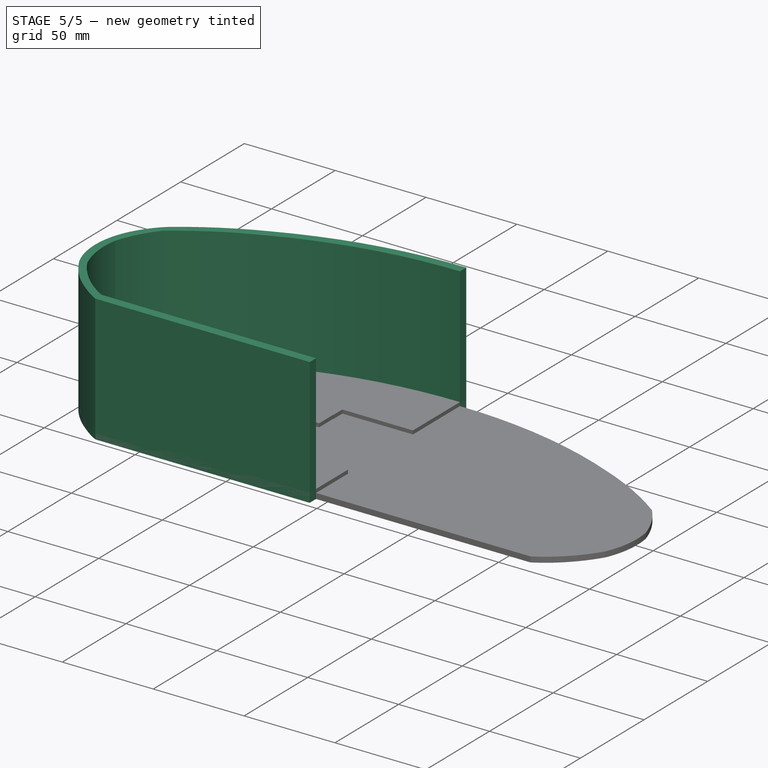
[diagram: stage 5 of 5 — iso view after this stage's code; geometry added in this stage tinted green]
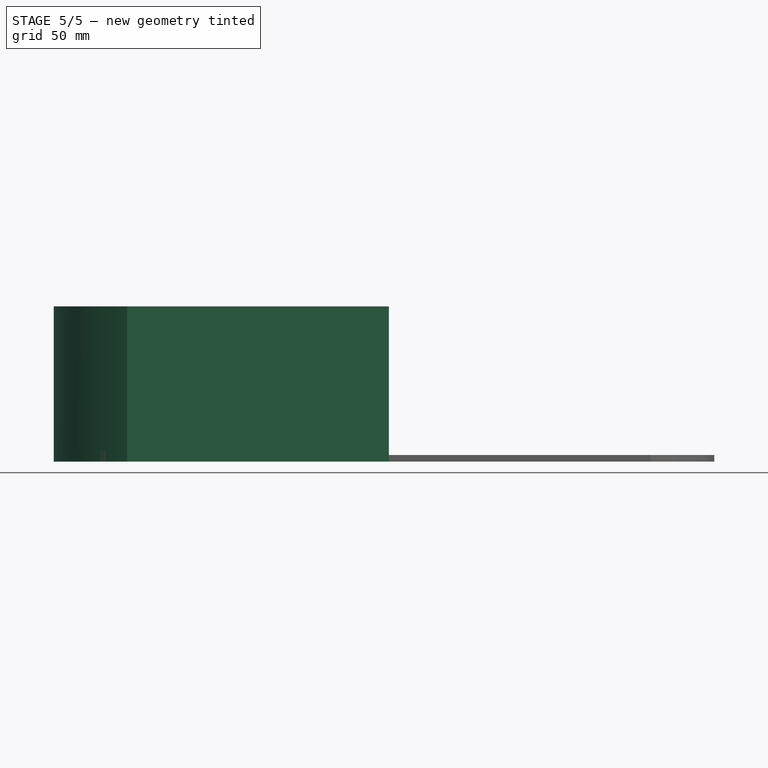
[diagram: stage 5 of 5 — front view after this stage's code; geometry added in this stage tinted green]
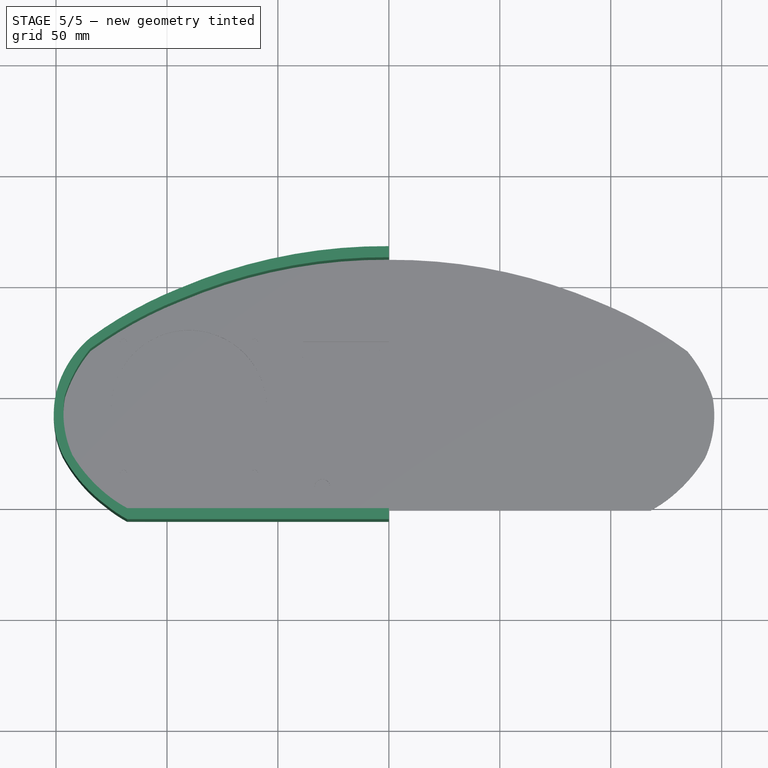
[diagram: stage 5 of 5 — top view after this stage's code; geometry added in this stage tinted green]
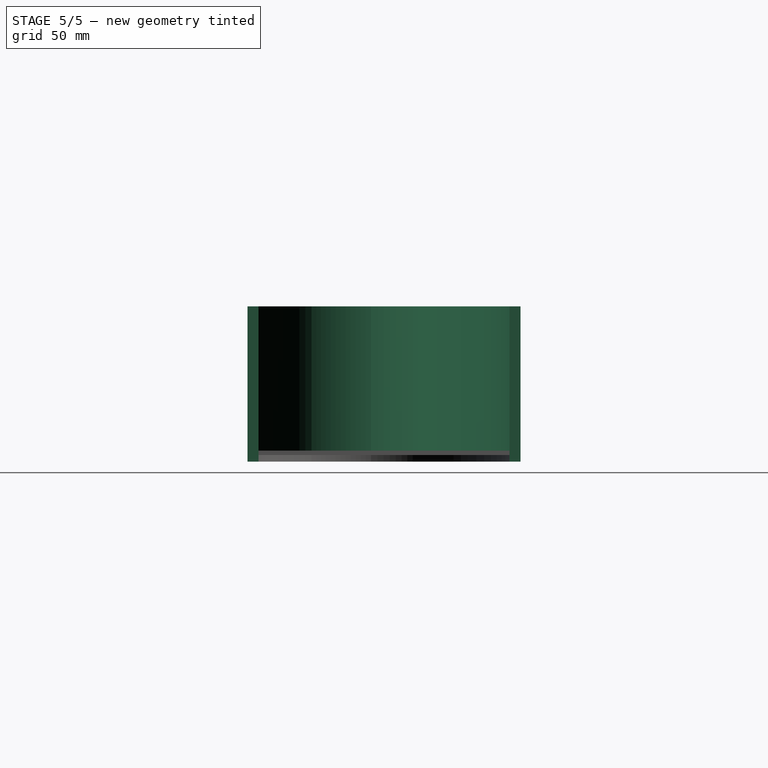
[diagram: stage 5 of 5 — right view after this stage's code; geometry added in this stage tinted green]
FEATURE [Sketcher::SketchObject] Sketch  label="Umriss"
  MapMode = 5
  Support = -> [XY_Plane002]
  sketch-geometry (8):
    g0: LineSegment StartX=0 StartY=67.42 StartZ=0 EndX=0 EndY=-55.65 EndZ=0
    g1: LineSegment StartX=0 StartY=-55.65 StartZ=0 EndX=-117.94 EndY=-55.65 EndZ=0
    g2: ArcOfCircle CenterX=-1.71052 CenterY=-168.144 CenterZ=0 NormalX=0 NormalY=0 NormalZ=1 AngleXU=0 Radius=235.57 StartAngle=1.56354 EndAngle=1.97395
    g3: ArcOfCircle CenterX=-26.6546 CenterY=-121.039 CenterZ=0 NormalX=0 NormalY=0 NormalZ=1 AngleXU=0 Radius=182.51 StartAngle=1.94949 EndAngle=2.20297
    g4: ArcOfCircle CenterX=-103.63 CenterY=-10.3082 CenterZ=0 NormalX=0 NormalY=0 NormalZ=1 AngleXU=0 Radius=47.81 StartAngle=2.27271 EndAngle=2.7915
    g5: ArcOfCircle CenterX=-107.652 CenterY=-8.39999 CenterZ=0 NormalX=0 NormalY=0 NormalZ=1 AngleXU=0 Radius=43.38 StartAngle=2.80102 EndAngle=3.57886
    g6: ArcOfCircle CenterX=-87.015 CenterY=5.5205 CenterZ=0 NormalX=0 NormalY=0 NormalZ=1 AngleXU=0 Radius=68.08 StartAngle=3.63576 EndAngle=4.07298
    g7: ArcOfCircle CenterX=-88.8574 CenterY=-2.05184 CenterZ=0 NormalX=0 NormalY=0 NormalZ=1 AngleXU=0 Radius=60.98 StartAngle=4.0231 EndAngle=4.21524
  constraints (30):
    c: PointOnObject(g0,g-2)
    c: PointOnObject(g0,g-2)
    c: DistanceY(g0,g0) = 123.07
    c: DistanceY(g-1,g0) = 67.42
    c: Coincident(g1,g0)
    c: Horizontal(g1)
    c: DistanceX(g1,g1) = 117.94
    c: Coincident(g2,g0)
    c: Coincident(g4,g3)
    c: Coincident(g6,g5)
    c: Coincident(g7,g6)
    c: Coincident(g7,g1)
    c: Radius(g2) = 235.57
    c: Radius(g3) = 182.51
    c: Radius(g4) = 47.81
    c: Radius(g5) = 43.38
    c: Radius(g6) = 68.08
    c: Radius(g7) = 60.98
    c: DistanceX(g2,g-1) = 94.13
    c: DistanceX(g3,g-1) = 134.5
    c: DistanceX(g4,g-1) = 148.54
    c: DistanceX(g5,g-1) = 146.95
    c: DistanceX(g6) = -127.64
    c: DistanceY(g6,g-1) = 49.11
    c: DistanceY(g5,g-1) = 26.77
    c: DistanceY(g-1,g5) = 6.09
    c: DistanceY(g-1,g3) = 26.2
    c: DistanceY(g-1,g2) = 48.54
    c: Coincident(g3,g2)
    c: Coincident(g4,g5)
FEATURE [Image::ImagePlane] ImagePlane
  XSize = 317.2
  YSize = 148.2
FEATURE [Sketcher::SketchObject] Sketch003  label="Ausschnitte_3"
  MapMode = 5
  Placement = pos=(0,0,2) rot=(0,0,1;0rad)
  sketch-geometry (8):
    g0: ArcOfCircle CenterX=-67.5234 CenterY=-8.79407 CenterZ=0 NormalX=0 NormalY=0 NormalZ=1 AngleXU=0 Radius=3.16238 StartAngle=0.0526049 EndAngle=3.22772
    g1: ArcOfCircle CenterX=-87.3659 CenterY=-28.7831 CenterZ=0 NormalX=0 NormalY=0 NormalZ=1 AngleXU=0 Radius=3.31992 StartAngle=1.50483 EndAngle=4.6985
    g2: ArcOfCircle CenterX=-66.3836 CenterY=-28.6657 CenterZ=0 NormalX=0 NormalY=0 NormalZ=1 AngleXU=0 Radius=3.65164 StartAngle=4.88259 EndAngle=6.5062
    g3: ArcOfCircle CenterX=38.8612 CenterY=-10.0222 CenterZ=0 NormalX=0 NormalY=0 NormalZ=1 AngleXU=0 Radius=103.236 StartAngle=3.12809 EndAngle=3.31523
    g4: ArcOfCircle CenterX=-76.0952 CenterY=33.7732 CenterZ=0 NormalX=0 NormalY=0 NormalZ=1 AngleXU=0 Radius=66.8409 StartAngle=4.54226 EndAngle=4.86756
    g5: ArcOfCircle CenterX=-72.447 CenterY=-23.1477 CenterZ=0 NormalX=0 NormalY=0 NormalZ=1 AngleXU=0 Radius=2.26638 StartAngle=5.18657 EndAngle=6.47537
    g6: ArcOfCircle CenterX=-10.5176 CenterY=-13.9068 CenterZ=0 NormalX=0 NormalY=0 NormalZ=1 AngleXU=0 Radius=60.3509 StartAngle=3.0613 EndAngle=3.28806
    g7: ArcOfCircle CenterX=-80.0891 CenterY=16.2526 CenterZ=0 NormalX=0 NormalY=0 NormalZ=1 AngleXU=0 Radius=42.3158 StartAngle=4.54481 EndAngle=4.91891
  constraints (32):
    c: Coincident(g3,g0)
    c: Coincident(g3,g2)
    c: Coincident(g4,g1)
    c: Coincident(g4,g2)
    c: Coincident(g6,g5)
    c: Coincident(g6,g0)
    c: Radius(g0) = 3.16238
    c: Radius(g1) = 3.31992
    c: Radius(g2) = 3.65164
    c: Radius(g5) = 2.26638
    c: Radius(g6) = 60.3509
    c: Radius(g3) = 103.236
    c: DistanceY(g0) = -8.79407
    c: DistanceX(g0) = -67.5234
    c: DistanceY(g0) = -8.62779
    c: DistanceY(g5) = -22.7148
    c: DistanceY(g2) = -27.8581
    c: DistanceY(g2) = -32.2646
    c: DistanceY(g5) = -25.164
    c: DistanceX(g2) = -65.7651
    c: DistanceX(g5) = -71.4121
    c: DistanceY(g0) = -9.0661
    c: DistanceY(g1) = -25.4704
    c: DistanceY(g1) = -32.1027
    c: DistanceY(g1) = -28.7831
    c: DistanceX(g1) = -87.3659
    c: DistanceX(g2) = -62.8224
    c: DistanceX(g5) = -70.2223
    c: Coincident(g7,g1)
    c: Coincident(g7,g5)
    c: Radius(g7) = 42.3158
    c: Radius(g4) = 66.8409
FEATURE [PartDesign::Pad] Pad
  Length = 70
  Length2 = 100
  Profile = -> Sketch
  Type = 0
FEATURE [Sketcher::SketchObject] Sketch005  label="Innenriss"
  MapMode = 5
  Placement = pos=(0,0,70) rot=(0,0,1;0rad)
  Support = -> [Pad]
  sketch-geometry (8):
    g0: LineSegment StartX=0 StartY=62.42 StartZ=0 EndX=0 EndY=-50.65 EndZ=0
    g1: LineSegment StartX=0 StartY=-50.65 StartZ=0 EndX=-117.94 EndY=-50.65 EndZ=0
    g2: ArcOfCircle CenterX=-1.71052 CenterY=-173.144 CenterZ=0 NormalX=0 NormalY=0 NormalZ=1 AngleXU=0 Radius=235.57 StartAngle=1.56354 EndAngle=1.97395
    g3: ArcOfCircle CenterX=-26.6546 CenterY=-126.039 CenterZ=0 NormalX=0 NormalY=0 NormalZ=1 AngleXU=0 Radius=182.51 StartAngle=1.94949 EndAngle=2.20297
    g4: ArcOfCircle CenterX=-87.5121 CenterY=-18.0464 CenterZ=0 NormalX=0 NormalY=0 NormalZ=1 AngleXU=0 Radius=61.2221 StartAngle=2.44573 EndAngle=2.84238
    g5: ArcOfCircle CenterX=-84.3231 CenterY=8.4117 CenterZ=0 NormalX=0 NormalY=0 NormalZ=1 AngleXU=0 Radius=68.08 StartAngle=3.68467 EndAngle=4.02274
    g6: ArcOfCircle CenterX=-88.8574 CenterY=2.94816 CenterZ=0 NormalX=0 NormalY=0 NormalZ=1 AngleXU=0 Radius=60.98 StartAngle=4.0231 EndAngle=4.21524
    g7: ArcOfCircle CenterX=-100.235 CenterY=-7.7771 CenterZ=0 NormalX=0 NormalY=0 NormalZ=1 AngleXU=0 Radius=46.4351 StartAngle=2.97332 EndAngle=3.56297
  constraints (30):
    c: PointOnObject(g0,g-2)
    c: PointOnObject(g0,g-2)
    c: DistanceY(g0,g0) = 113.07
    c: DistanceY(g-1,g0) = 62.42
    c: Coincident(g1,g0)
    c: Horizontal(g1)
    c: DistanceX(g1,g1) = 117.94
    c: Coincident(g2,g0)
    c: Coincident(g4,g3)
    c: Coincident(g6,g5)
    c: Coincident(g6,g1)
    c: Radius(g2) = 235.57
    c: Radius(g3) = 182.51
    c: Radius(g5) = 68.08
    c: Radius(g6) = 60.98
    c: DistanceX(g2,g-1) = 94.13
    c: DistanceX(g3,g-1) = 134.5
    c: DistanceX(g5) = -127.64
    c: DistanceY(g5,g-1) = 44.11
    c: DistanceY(g5,g-1) = 26.77
    c: DistanceY(g-1,g3) = 21.2
    c: DistanceY(g-1,g2) = 43.54
    c: Coincident(g3,g2)
    c: Radius(g4) = 61.2221
    c: PointOnObject(g4,g-1)
    c: Coincident(g7,g4)
    c: Coincident(g7,g5)
    c: Radius(g7) = 46.4351
    c: DistanceX(g4) = -146.014
    c: DistanceX(g5) = -142.608
FEATURE [PartDesign::Pocket] Pocket
  BaseFeature = -> Pad
  Length = 70
  Length2 = 100
  Profile = -> Sketch005
  Type = 0
FEATURE [Sketcher::SketchObject] Sketch012  label="Umriss002"
  MapMode = 5
  Support = -> [XY_Plane010]
  sketch-geometry (8):
    g0: LineSegment StartX=0 StartY=67.42 StartZ=0 EndX=0 EndY=-55.65 EndZ=0
    g1: LineSegment StartX=0 StartY=-55.65 StartZ=0 EndX=-117.94 EndY=-55.65 EndZ=0
    g2: ArcOfCircle CenterX=-1.71052 CenterY=-168.144 CenterZ=0 NormalX=0 NormalY=0 NormalZ=1 AngleXU=0 Radius=235.57 StartAngle=1.56354 EndAngle=1.97395
    g3: ArcOfCircle CenterX=-26.6546 CenterY=-121.039 CenterZ=0 NormalX=0 NormalY=0 NormalZ=1 AngleXU=0 Radius=182.51 StartAngle=1.94949 EndAngle=2.20297
    g4: ArcOfCircle CenterX=-103.63 CenterY=-10.3082 CenterZ=0 NormalX=0 NormalY=0 NormalZ=1 AngleXU=0 Radius=47.81 StartAngle=2.27271 EndAngle=2.7915
    g5: ArcOfCircle CenterX=-107.652 CenterY=-8.39999 CenterZ=0 NormalX=0 NormalY=0 NormalZ=1 AngleXU=0 Radius=43.38 StartAngle=2.80102 EndAngle=3.57886
    g6: ArcOfCircle CenterX=-87.015 CenterY=5.5205 CenterZ=0 NormalX=0 NormalY=0 NormalZ=1 AngleXU=0 Radius=68.08 StartAngle=3.63576 EndAngle=4.07298
    g7: ArcOfCircle CenterX=-88.8574 CenterY=-2.05184 CenterZ=0 NormalX=0 NormalY=0 NormalZ=1 AngleXU=0 Radius=60.98 StartAngle=4.0231 EndAngle=4.21524
  constraints (30):
    c: PointOnObject(g0,g-2)
    c: PointOnObject(g0,g-2)
    c: DistanceY(g0,g0) = 123.07
    c: DistanceY(g-1,g0) = 67.42
    c: Coincident(g1,g0)
    c: Horizontal(g1)
    c: DistanceX(g1,g1) = 117.94
    c: Coincident(g2,g0)
    c: Coincident(g4,g3)
    c: Coincident(g6,g5)
    c: Coincident(g7,g6)
    c: Coincident(g7,g1)
    c: Radius(g2) = 235.57
    c: Radius(g3) = 182.51
    c: Radius(g4) = 47.81
    c: Radius(g5) = 43.38
    c: Radius(g6) = 68.08
    c: Radius(g7) = 60.98
    c: DistanceX(g2,g-1) = 94.13
    c: DistanceX(g3,g-1) = 134.5
    c: DistanceX(g4,g-1) = 148.54
    c: DistanceX(g5,g-1) = 146.95
    c: DistanceX(g6) = -127.64
    c: DistanceY(g6,g-1) = 49.11
    c: DistanceY(g5,g-1) = 26.77
    c: DistanceY(g-1,g5) = 6.09
    c: DistanceY(g-1,g3) = 26.2
    c: DistanceY(g-1,g2) = 48.54
    c: Coincident(g3,g2)
    c: Coincident(g4,g5)
FEATURE [Sketcher::SketchObject] Sketch014  label="Umriss003"
  MapMode = 5
  Support = -> [XY_Plane007]
  sketch-geometry (8):
    g0: LineSegment StartX=0 StartY=67.42 StartZ=0 EndX=0 EndY=-55.65 EndZ=0
    g1: LineSegment StartX=0 StartY=-55.65 StartZ=0 EndX=-117.94 EndY=-55.65 EndZ=0
    g2: ArcOfCircle CenterX=-1.71052 CenterY=-168.144 CenterZ=0 NormalX=0 NormalY=0 NormalZ=1 AngleXU=0 Radius=235.57 StartAngle=1.56354 EndAngle=1.97395
    g3: ArcOfCircle CenterX=-26.6546 CenterY=-121.039 CenterZ=0 NormalX=0 NormalY=0 NormalZ=1 AngleXU=0 Radius=182.51 StartAngle=1.94949 EndAngle=2.20297
    g4: ArcOfCircle CenterX=-103.63 CenterY=-10.3082 CenterZ=0 NormalX=0 NormalY=0 NormalZ=1 AngleXU=0 Radius=47.81 StartAngle=2.27271 EndAngle=2.7915
    g5: ArcOfCircle CenterX=-107.652 CenterY=-8.39999 CenterZ=0 NormalX=0 NormalY=0 NormalZ=1 AngleXU=0 Radius=43.38 StartAngle=2.80102 EndAngle=3.57886
    g6: ArcOfCircle CenterX=-87.015 CenterY=5.5205 CenterZ=0 NormalX=0 NormalY=0 NormalZ=1 AngleXU=0 Radius=68.08 StartAngle=3.63576 EndAngle=4.07298
    g7: ArcOfCircle CenterX=-88.8574 CenterY=-2.05184 CenterZ=0 NormalX=0 NormalY=0 NormalZ=1 AngleXU=0 Radius=60.98 StartAngle=4.0231 EndAngle=4.21524
  constraints (30):
    c: PointOnObject(g0,g-2)
    c: PointOnObject(g0,g-2)
    c: DistanceY(g0,g0) = 123.07
    c: DistanceY(g-1,g0) = 67.42
    c: Coincident(g1,g0)
    c: Horizontal(g1)
    c: DistanceX(g1,g1) = 117.94
    c: Coincident(g2,g0)
    c: Coincident(g4,g3)
    c: Coincident(g6,g5)
    c: Coincident(g7,g6)
    c: Coincident(g7,g1)
    c: Radius(g2) = 235.57
    c: Radius(g3) = 182.51
    c: Radius(g4) = 47.81
    c: Radius(g5) = 43.38
    c: Radius(g6) = 68.08
    c: Radius(g7) = 60.98
    c: DistanceX(g2,g-1) = 94.13
    c: DistanceX(g3,g-1) = 134.5
    c: DistanceX(g4,g-1) = 148.54
    c: DistanceX(g5,g-1) = 146.95
    c: DistanceX(g6) = -127.64
    c: DistanceY(g6,g-1) = 49.11
    c: DistanceY(g5,g-1) = 26.77
    c: DistanceY(g-1,g5) = 6.09
    c: DistanceY(g-1,g3) = 26.2
    c: DistanceY(g-1,g2) = 48.54
    c: Coincident(g3,g2)
    c: Coincident(g4,g5)
FEATURE [PartDesign::Pad] Pad002
  Length = 5
  Length2 = 100
  Profile = -> Sketch014
  Type = 0
FEATURE [Sketcher::SketchObject] Sketch015
  MapMode = 5
  Placement = pos=(0,0,5) rot=(0,0,1;0rad)
  Support = -> [Pad002]
  sketch-geometry (7):
    g0: Circle CenterX=-90.05 CenterY=-4.36 CenterZ=0 NormalX=0 NormalY=0 NormalZ=1 AngleXU=0 Radius=35
    g1: LineSegment [constr] StartX=-119.572 StartY=-33.8817 StartZ=0 EndX=-60.5283 EndY=25.1617 EndZ=0
    g2: LineSegment [constr] StartX=-119.572 StartY=25.1617 StartZ=0 EndX=-60.5283 EndY=-33.8817 EndZ=0
    g3: Circle CenterX=-119.572 CenterY=25.1617 CenterZ=0 NormalX=0 NormalY=0 NormalZ=1 AngleXU=0 Radius=1.6
    g4: Circle CenterX=-60.5283 CenterY=25.1617 CenterZ=0 NormalX=0 NormalY=0 NormalZ=1 AngleXU=0 Radius=1.6
    g5: Circle CenterX=-60.5283 CenterY=-33.8817 CenterZ=0 NormalX=0 NormalY=0 NormalZ=1 AngleXU=0 Radius=1.6
    g6: Circle CenterX=-119.572 CenterY=-33.8817 CenterZ=0 NormalX=0 NormalY=0 NormalZ=1 AngleXU=0 Radius=1.6
  constraints (19):
    c: Radius(g0) = 35
    c: DistanceY(g0) = -4.36
    c: DistanceX(g0) = -90.05
    c: Distance(g1) = 83.5
    c: PointOnObject(g0,g1)
    c: Distance(g1,g0) = 41.75
    c: Angle(g1,g-1) = 2.35619
    c: PointOnObject(g0,g2)
    c: Distance(g2) = 83.5
    c: Distance(g0,g2) = 41.75
    c: Angle(g2,g1) = 1.5708
    c: Coincident(g3,g2)
    c: Coincident(g4,g1)
    c: Coincident(g5,g2)
    c: Coincident(g6,g1)
    c: Equal(g3,g4)
    c: Equal(g4,g5)
    c: Equal(g5,g6)
    c: Radius(g3) = 1.6
FEATURE [PartDesign::Pocket] Pocket005
  BaseFeature = -> Pad002
  Length = 5
  Length2 = 100
  Profile = -> Sketch015
  Type = 1
FEATURE [Sketcher::SketchObject] Sketch013
  MapMode = 5
  Placement = pos=(0,0,5) rot=(0,0,1;0rad)
  Support = -> [Pocket005]
  sketch-geometry (11):
    g0: LineSegment StartX=0 StartY=25.5 StartZ=0 EndX=-38.85 EndY=25.5 EndZ=0
    g1: LineSegment StartX=-38.85 StartY=25.5 StartZ=0 EndX=-38.85 EndY=18.5 EndZ=0
    g2: LineSegment StartX=-38.85 StartY=18.5 StartZ=0 EndX=-46.75 EndY=18.5 EndZ=0
    g3: LineSegment StartX=-46.75 StartY=18.5 StartZ=0 EndX=-46.75 EndY=-18.5 EndZ=0
    g4: LineSegment StartX=-46.75 StartY=-18.5 StartZ=0 EndX=-38.85 EndY=-18.5 EndZ=0
    g5: LineSegment StartX=-38.85 StartY=-18.5 StartZ=0 EndX=-38.85 EndY=-25.5 EndZ=0
    g6: LineSegment StartX=-38.85 StartY=-25.5 StartZ=0 EndX=0 EndY=-25.5 EndZ=0
    g7: LineSegment StartX=0 StartY=25.5 StartZ=0 EndX=0 EndY=-25.5 EndZ=0
    g8: Circle CenterX=-30 CenterY=-40 CenterZ=0 NormalX=0 NormalY=0 NormalZ=1 AngleXU=0 Radius=3.5
    g9: Circle CenterX=-43.55 CenterY=21.8 CenterZ=0 NormalX=0 NormalY=0 NormalZ=1 AngleXU=0 Radius=1.7
    g10: Circle CenterX=-43.55 CenterY=-21.8 CenterZ=0 NormalX=0 NormalY=0 NormalZ=1 AngleXU=0 Radius=1.7
  constraints (34):
    c: PointOnObject(g0,g-2)
    c: Horizontal(g0)
    c: Coincident(g0,g1)
    c: Vertical(g1)
    c: Coincident(g1,g2)
    c: Horizontal(g2)
    c: Coincident(g2,g3)
    c: Vertical(g3)
    c: Coincident(g3,g4)
    c: Horizontal(g4)
    c: Coincident(g4,g5)
    c: Vertical(g5)
    c: Coincident(g5,g6)
    c: PointOnObject(g6,g-2)
    c: Horizontal(g6)
    c: Equal(g0,g6)
    c: Equal(g1,g5)
    c: Equal(g2,g4)
    c: Symmetric(g2,g3,g-1)
    c: DistanceY(g1,g1) = 7
    c: DistanceY(g3,g3) = 37
    c: DistanceX(g6,g6) = 38.85
    c: DistanceX(g4,g4) = 7.9
    c: PointOnObject(g7,g-2)
    c: Coincident(g7,g6)
    c: Coincident(g7,g0)
    c: Radius(g8) = 3.5
    c: DistanceY(g8) = -40
    c: DistanceX(g8) = -30
    c: Symmetric(g10,g9,g-1)
    c: Equal(g9,g10)
    c: Radius(g9) = 1.7
    c: DistanceY(g10,g9) = 43.6
    c: DistanceX(g10,g-1) = 43.55
FEATURE [PartDesign::Pocket] Pocket004
  BaseFeature = -> Pocket005
  Length = 5
  Length2 = 100
  Profile = -> Sketch013
  Type = 1
FEATURE [Sketcher::SketchObject] Sketch016  label="Umriss004"
  MapMode = 5
  Support = -> [XY_Plane009]
  sketch-geometry (8):
    g0: LineSegment StartX=0 StartY=67.42 StartZ=0 EndX=0 EndY=-55.65 EndZ=0
    g1: LineSegment StartX=0 StartY=-55.65 StartZ=0 EndX=-117.94 EndY=-55.65 EndZ=0
    g2: ArcOfCircle CenterX=-1.71052 CenterY=-168.144 CenterZ=0 NormalX=0 NormalY=0 NormalZ=1 AngleXU=0 Radius=235.57 StartAngle=1.56354 EndAngle=1.97395
    g3: ArcOfCircle CenterX=-26.6546 CenterY=-121.039 CenterZ=0 NormalX=0 NormalY=0 NormalZ=1 AngleXU=0 Radius=182.51 StartAngle=1.94949 EndAngle=2.20297
    g4: ArcOfCircle CenterX=-103.63 CenterY=-10.3082 CenterZ=0 NormalX=0 NormalY=0 NormalZ=1 AngleXU=0 Radius=47.81 StartAngle=2.27271 EndAngle=2.7915
    g5: ArcOfCircle CenterX=-107.652 CenterY=-8.39999 CenterZ=0 NormalX=0 NormalY=0 NormalZ=1 AngleXU=0 Radius=43.38 StartAngle=2.80102 EndAngle=3.57886
    g6: ArcOfCircle CenterX=-87.015 CenterY=5.5205 CenterZ=0 NormalX=0 NormalY=0 NormalZ=1 AngleXU=0 Radius=68.08 StartAngle=3.63576 EndAngle=4.07298
    g7: ArcOfCircle CenterX=-88.8574 CenterY=-2.05184 CenterZ=0 NormalX=0 NormalY=0 NormalZ=1 AngleXU=0 Radius=60.98 StartAngle=4.0231 EndAngle=4.21524
  constraints (30):
    c: PointOnObject(g0,g-2)
    c: PointOnObject(g0,g-2)
    c: DistanceY(g0,g0) = 123.07
    c: DistanceY(g-1,g0) = 67.42
    c: Coincident(g1,g0)
    c: Horizontal(g1)
    c: DistanceX(g1,g1) = 117.94
    c: Coincident(g2,g0)
    c: Coincident(g4,g3)
    c: Coincident(g6,g5)
    c: Coincident(g7,g6)
    c: Coincident(g7,g1)
    c: Radius(g2) = 235.57
    c: Radius(g3) = 182.51
    c: Radius(g4) = 47.81
    c: Radius(g5) = 43.38
    c: Radius(g6) = 68.08
    c: Radius(g7) = 60.98
    c: DistanceX(g2,g-1) = 94.13
    c: DistanceX(g3,g-1) = 134.5
    c: DistanceX(g4,g-1) = 148.54
    c: DistanceX(g5,g-1) = 146.95
    c: DistanceX(g6) = -127.64
    c: DistanceY(g6,g-1) = 49.11
    c: DistanceY(g5,g-1) = 26.77
    c: DistanceY(g-1,g5) = 6.09
    c: DistanceY(g-1,g3) = 26.2
    c: DistanceY(g-1,g2) = 48.54
    c: Coincident(g3,g2)
    c: Coincident(g4,g5)
FEATURE [PartDesign::Pad] Pad003
  Length = 70
  Length2 = 100
  Profile = -> Sketch016
  Type = 0
FEATURE [Sketcher::SketchObject] Sketch017  label="Innenriss001"
  MapMode = 5
  Placement = pos=(0,0,70) rot=(0,0,1;0rad)
  Support = -> [Pad003]
  sketch-geometry (8):
    g0: LineSegment StartX=0 StartY=62.42 StartZ=0 EndX=0 EndY=-50.65 EndZ=0
    g1: LineSegment StartX=0 StartY=-50.65 StartZ=0 EndX=-117.94 EndY=-50.65 EndZ=0
    g2: ArcOfCircle CenterX=-1.71052 CenterY=-173.144 CenterZ=0 NormalX=0 NormalY=0 NormalZ=1 AngleXU=0 Radius=235.57 StartAngle=1.56354 EndAngle=1.97395
    g3: ArcOfCircle CenterX=-26.6546 CenterY=-126.039 CenterZ=0 NormalX=0 NormalY=0 NormalZ=1 AngleXU=0 Radius=182.51 StartAngle=1.94949 EndAngle=2.20297
    g4: ArcOfCircle CenterX=-87.5121 CenterY=-18.0464 CenterZ=0 NormalX=0 NormalY=0 NormalZ=1 AngleXU=0 Radius=61.2221 StartAngle=2.44573 EndAngle=2.84238
    g5: ArcOfCircle CenterX=-84.3231 CenterY=8.4117 CenterZ=0 NormalX=0 NormalY=0 NormalZ=1 AngleXU=0 Radius=68.08 StartAngle=3.68467 EndAngle=4.02274
    g6: ArcOfCircle CenterX=-88.8574 CenterY=2.94816 CenterZ=0 NormalX=0 NormalY=0 NormalZ=1 AngleXU=0 Radius=60.98 StartAngle=4.0231 EndAngle=4.21524
    g7: ArcOfCircle CenterX=-100.235 CenterY=-7.7771 CenterZ=0 NormalX=0 NormalY=0 NormalZ=1 AngleXU=0 Radius=46.4351 StartAngle=2.97332 EndAngle=3.56297
  constraints (30):
    c: PointOnObject(g0,g-2)
    c: PointOnObject(g0,g-2)
    c: DistanceY(g0,g0) = 113.07
    c: DistanceY(g-1,g0) = 62.42
    c: Coincident(g1,g0)
    c: Horizontal(g1)
    c: DistanceX(g1,g1) = 117.94
    c: Coincident(g2,g0)
    c: Coincident(g4,g3)
    c: Coincident(g6,g5)
    c: Coincident(g6,g1)
    c: Radius(g2) = 235.57
    c: Radius(g3) = 182.51
    c: Radius(g5) = 68.08
    c: Radius(g6) = 60.98
    c: DistanceX(g2,g-1) = 94.13
    c: DistanceX(g3,g-1) = 134.5
    c: DistanceX(g5) = -127.64
    c: DistanceY(g5,g-1) = 44.11
    c: DistanceY(g5,g-1) = 26.77
    c: DistanceY(g-1,g3) = 21.2
    c: DistanceY(g-1,g2) = 43.54
    c: Coincident(g3,g2)
    c: Radius(g4) = 61.2221
    c: PointOnObject(g4,g-1)
    c: Coincident(g7,g4)
    c: Coincident(g7,g5)
    c: Radius(g7) = 46.4351
    c: DistanceX(g4) = -146.014
    c: DistanceX(g5) = -142.608
FEATURE [PartDesign::Pocket] Pocket006
  BaseFeature = -> Pad003
  Length = 70
  Length2 = 100
  Profile = -> Sketch017
  Type = 0
FEATURE [Sketcher::SketchObject] Sketch025
  MapMode = 5
  Support = -> [XY_Plane008]
  sketch-geometry (4):
    g0: LineSegment StartX=0 StartY=25.5 StartZ=0 EndX=-47 EndY=25.5 EndZ=0
    g1: LineSegment StartX=-47 StartY=25.5 StartZ=0 EndX=-47 EndY=-25.5 EndZ=0
    g2: LineSegment StartX=-47 StartY=-25.5 StartZ=0 EndX=0 EndY=-25.5 EndZ=0
    g3: LineSegment StartX=0 StartY=-25.5 StartZ=0 EndX=0 EndY=25.5 EndZ=0
  constraints (12):
    c: Coincident(g0,g1)
    c: Coincident(g1,g2)
    c: Coincident(g2,g3)
    c: Coincident(g3,g0)
    c: Horizontal(g0)
    c: Horizontal(g2)
    c: Vertical(g1)
    c: Vertical(g3)
    c: PointOnObject(g0,g-2)
    c: DistanceY(g2,g0) = 51
    c: Symmetric(g2,g0,g-1)
    c: DistanceX(g2,g2) = 47
FEATURE [PartDesign::Pocket] Pocket027
  BaseFeature = -> Pocket004
  Length = 2.5
  Length2 = 100
  Profile = -> Sketch025
  Reversed = true
  Type = 0
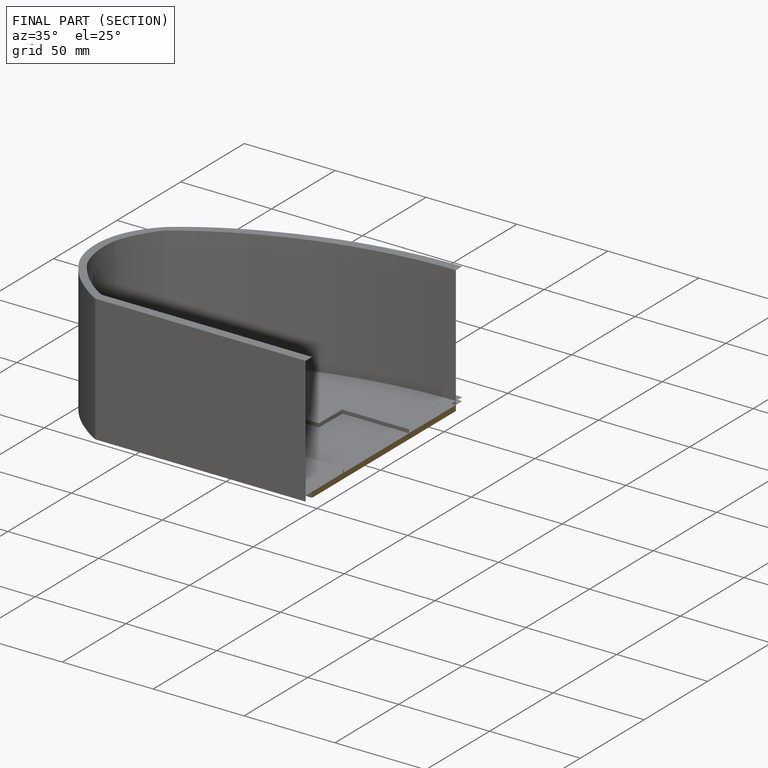
[diagram: finished part — half-section view (interior)]
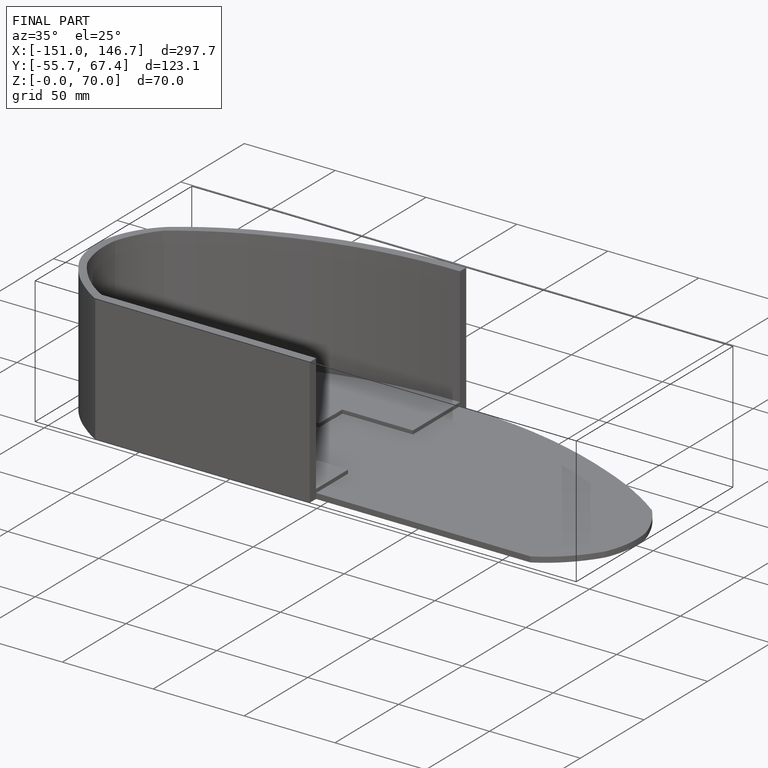
[diagram: finished part — iso view with bounding-box wireframe]
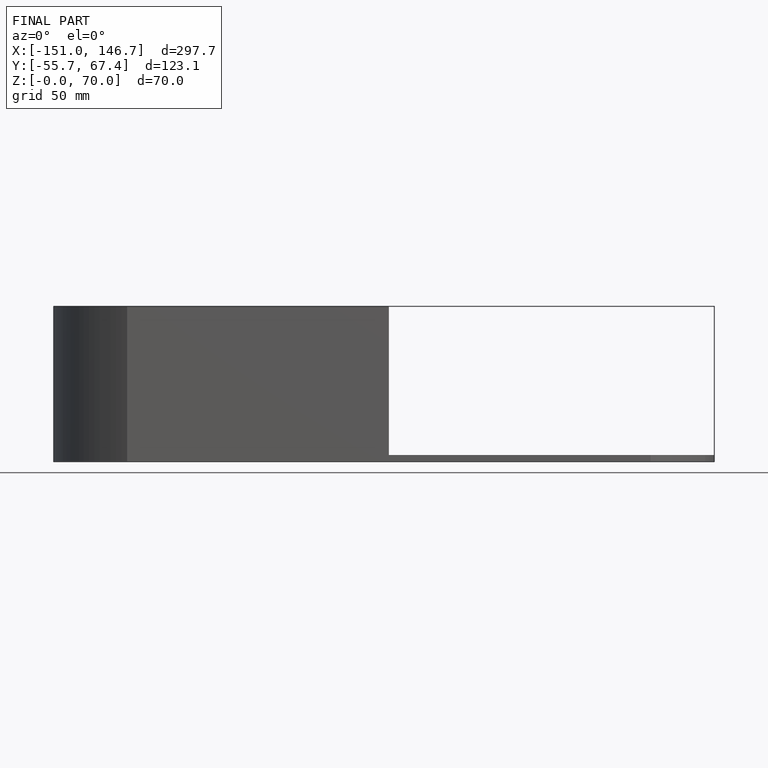
[diagram: finished part — front view with bounding-box wireframe]
